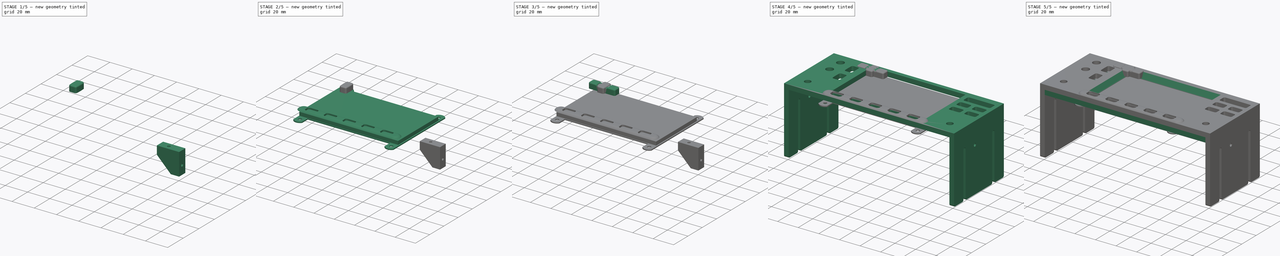
[diagram: build sequence overview — one tinted view per stage of 5, left to right]
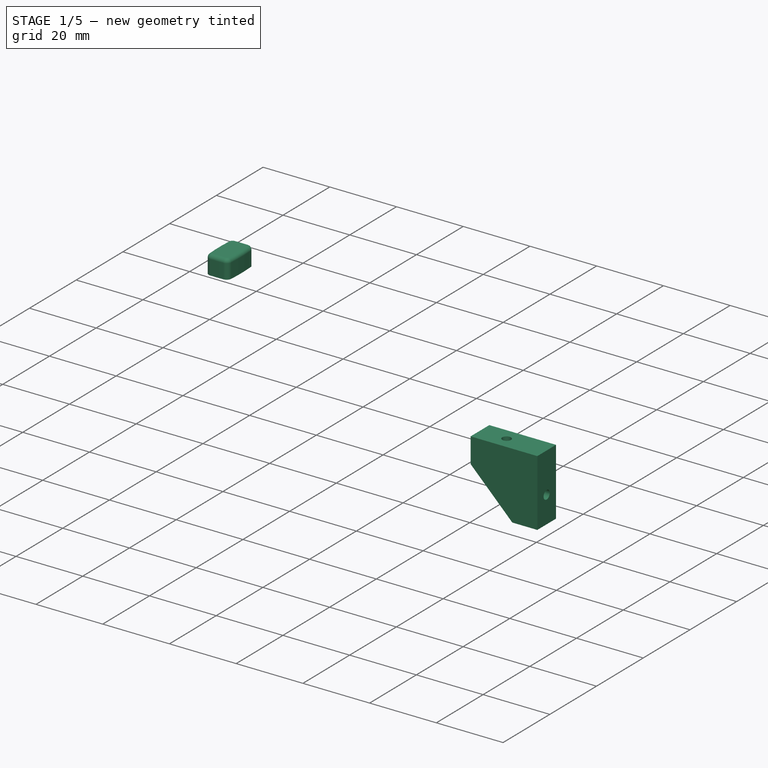
[diagram: stage 1 of 5 — iso view after this stage's code; geometry added in this stage tinted green]
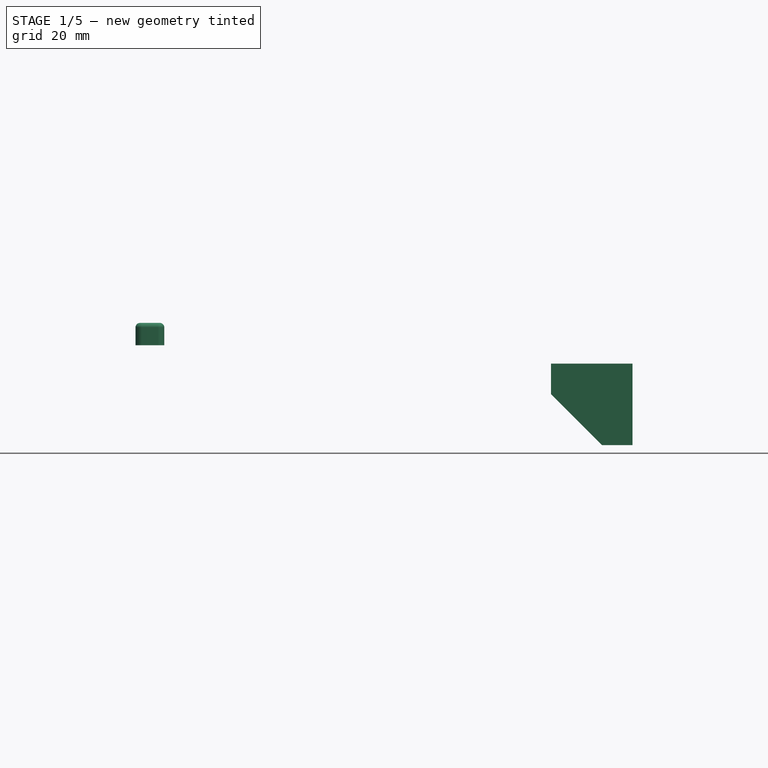
[diagram: stage 1 of 5 — front view after this stage's code; geometry added in this stage tinted green]
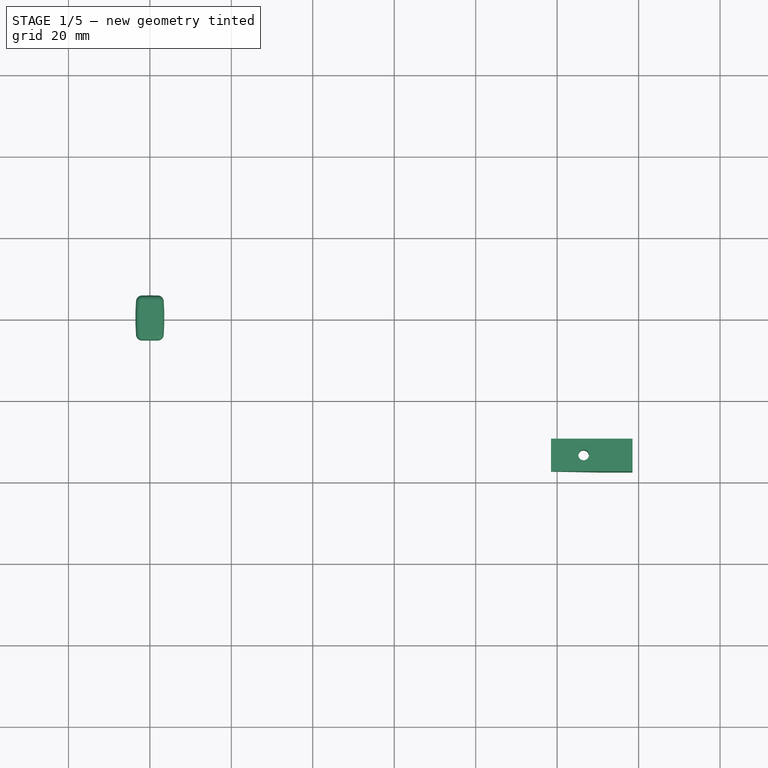
[diagram: stage 1 of 5 — top view after this stage's code; geometry added in this stage tinted green]
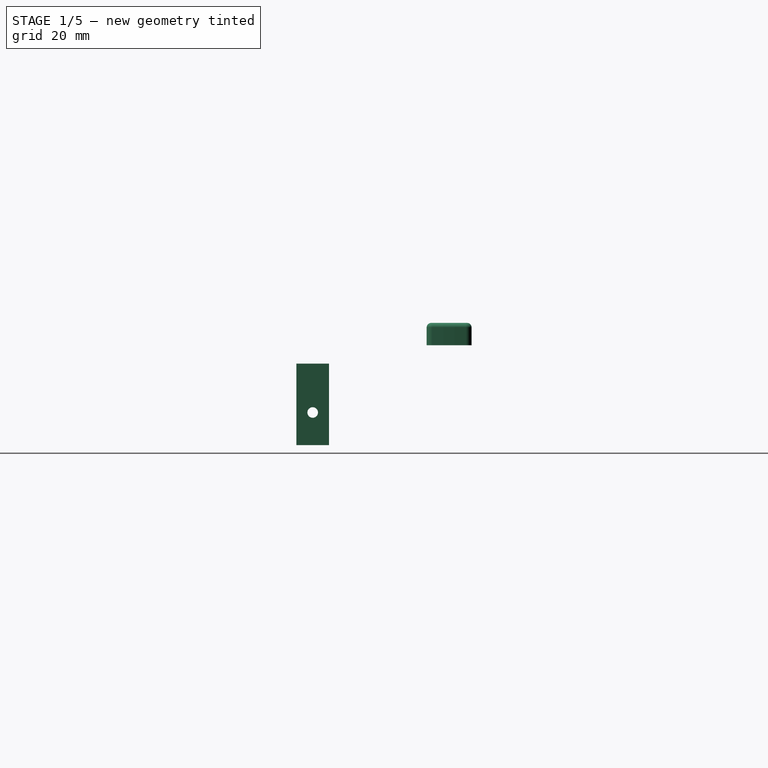
[diagram: stage 1 of 5 — right view after this stage's code; geometry added in this stage tinted green]
FCSTD DOCUMENT  (FreeCAD 0.16R6706 (Git))
Label: garmin_gns_430
License: All rights reserved
LicenseURL: http://en.wikipedia.org/wiki/All_rights_reserved
objects: Sketcher::SketchObject×21, PartDesign::Pad×18, App::DocumentObjectGroup×8, Part::Cut×6, Part::Fillet×5, Part::MultiFuse×3, Part::Part2DObjectPython×3, Image::ImagePlane×2, Part::Box×2, PartDesign::Revolution×2, Part::FeaturePython×2, PartDesign::Pocket×2, Part::Compound×1, Part::MultiCommon×1, Spreadsheet::Sheet×1
note: 88 computed .brp shape members not serialized (recipe doc carries the construction recipe); baked Part::Feature solids carry a one-line shape summary decoded from their .brp

FEATURE [Sketcher::SketchObject] Sketch023  label="Sketch (button hole)"
  sketch-geometry (6):
    g0: LineSegment StartX=-1.65 StartY=1.1 StartZ=0 EndX=1.65 EndY=1.1 EndZ=0
    g1: LineSegment StartX=1.65 StartY=1.1 StartZ=0 EndX=1.65 EndY=-1.1 EndZ=0
    g2: LineSegment StartX=1.65 StartY=-1.1 StartZ=0 EndX=-1.65 EndY=-1.1 EndZ=0
    g3: LineSegment StartX=-1.65 StartY=-1.1 StartZ=0 EndX=-1.65 EndY=1.1 EndZ=0
    g4: LineSegment [constr] StartX=-1.65 StartY=1.1 StartZ=0 EndX=0 EndY=0 EndZ=0
    g5: LineSegment [constr] StartX=0 StartY=0 StartZ=0 EndX=1.65 EndY=-1.1 EndZ=0
  constraints (16):
    c: Coincident(g0,g1)
    c: Coincident(g1,g2)
    c: Coincident(g2,g3)
    c: Coincident(g3,g0)
    c: Horizontal(g0)
    c: Horizontal(g2)
    c: Vertical(g1)
    c: Vertical(g3)
    c: DistanceX(g0,g0) = 3.3
    c: DistanceY(g1,g1) = 2.2
    c: Coincident(g4,g0)
    c: Coincident(g4,g-1)
    c: Coincident(g5,g-1)
    c: Coincident(g5,g1)
    c: Equal(g5,g4)
    c: Parallel(g5,g4)
FEATURE [PartDesign::Pad] Pad017  label="Pad (button hole)"
  Length = 2.5
  Length2 = 100
  Sketch = -> Sketch023
  Type = 0
FEATURE [Part::FeaturePython] Clone003  label="Clone (button hole v)"  # Draft clone (typed FeaturePython)
  Objects = -> [Pad017]
  Scale = (1,1,1)
FEATURE [App::DocumentObjectGroup] Group004  label="Experimental"
  Group = -> [Cut002]
FEATURE [App::DocumentObjectGroup] Group005  label="Display"
  Group = -> [Compound]
FEATURE [Sketcher::SketchObject] Sketch044  label="Sketch (button med v)"
  Placement = pos=(0,0,0) rot=(0,0,1;1.5708rad)
  sketch-geometry (21):
    g0: ArcOfCircle CenterX=0 CenterY=-54.6083 CenterZ=0 NormalX=0 NormalY=0 NormalZ=1 Radius=58.1548 StartAngle=1.49981 EndAngle=1.64178
    g1: ArcOfCircle CenterX=0 CenterY=54.6083 CenterZ=0 NormalX=0 NormalY=0 NormalZ=1 Radius=58.1548 StartAngle=4.6414 EndAngle=4.78338
    g2: ArcOfCircle CenterX=4.01981 CenterY=1.92335 CenterZ=0 NormalX=0 NormalY=0 NormalZ=1 Radius=1.48038 StartAngle=0.0162777 EndAngle=1.49981
    g3: ArcOfCircle CenterX=4.01981 CenterY=-1.92335 CenterZ=0 NormalX=0 NormalY=0 NormalZ=1 Radius=1.48038 StartAngle=4.78338 EndAngle=6.26691
    g4: ArcOfCircle CenterX=-114.132 CenterY=4.61937e-05 CenterZ=0 NormalX=0 NormalY=0 NormalZ=1 Radius=119.648 StartAngle=6.26691 EndAngle=6.29946
    g5: ArcOfCircle CenterX=-4.01981 CenterY=1.92335 CenterZ=0 NormalX=0 NormalY=0 NormalZ=1 Radius=1.48038 StartAngle=1.64179 EndAngle=3.12531
    g6: ArcOfCircle CenterX=-4.01981 CenterY=-1.92335 CenterZ=0 NormalX=0 NormalY=0 NormalZ=1 Radius=1.48038 StartAngle=3.15787 EndAngle=4.6414
    g7: ArcOfCircle CenterX=114.132 CenterY=4.61937e-05 CenterZ=0 NormalX=0 NormalY=0 NormalZ=1 Radius=119.648 StartAngle=3.12532 EndAngle=3.15787
    g8: LineSegment [constr] StartX=-4.12482 StartY=3.4 StartZ=0 EndX=-4.12482 EndY=-3.4 EndZ=0
    g9: LineSegment [constr] StartX=4.12482 StartY=3.4 StartZ=0 EndX=4.12482 EndY=-3.4 EndZ=0
    g10: LineSegment [constr] StartX=5.5 StartY=-1.94744 StartZ=0 EndX=-5.5 EndY=-1.94744 EndZ=0
    g11: LineSegment [constr] StartX=5.5 StartY=1.94744 StartZ=0 EndX=-5.5 EndY=1.94744 EndZ=0
    g12: LineSegment [constr] StartX=-5.5 StartY=1.94744 StartZ=0 EndX=5.5 EndY=-1.94744 EndZ=0
    g13: LineSegment [constr] StartX=-5.5 StartY=-1.94744 StartZ=0 EndX=5.5 EndY=1.94744 EndZ=0
    g14: LineSegment [constr] StartX=-4.12482 StartY=3.4 StartZ=0 EndX=4.12482 EndY=-3.4 EndZ=0
    g15: LineSegment [constr] StartX=4.12482 StartY=3.4 StartZ=0 EndX=-4.12482 EndY=-3.4 EndZ=0
    g16: GeomPoint [constr] X=0 Y=0 Z=0
    g17: LineSegment [constr] StartX=114.132 StartY=4.61937e-05 StartZ=0 EndX=0 EndY=54.6083 EndZ=0
    g18: LineSegment [constr] StartX=0 StartY=0 StartZ=0 EndX=-4.01981 EndY=1.92335 EndZ=0
    g19: LineSegment [constr] StartX=-4.01981 StartY=1.92335 StartZ=0 EndX=-4.12482 EndY=3.4 EndZ=0
    g20: LineSegment [constr] StartX=-4.01981 StartY=1.92335 StartZ=0 EndX=-5.5 EndY=1.94744 EndZ=0
  constraints (57):
    c: Coincident(g2,g0)
    c: Coincident(g3,g1)
    c: Coincident(g4,g2)
    c: Coincident(g4,g3)
    c: Coincident(g5,g0)
    c: Coincident(g6,g1)
    c: Coincident(g7,g5)
    c: Coincident(g7,g6)
    c: Coincident(g8,g0)
    c: Coincident(g8,g1)
    c: Coincident(g9,g0)
    c: Coincident(g9,g1)
    c: Vertical(g9)
    c: Coincident(g10,g3)
    c: Coincident(g10,g6)
    c: Horizontal(g10)
    c: Coincident(g11,g2)
    c: Coincident(g11,g5)
    c: Horizontal(g11)
    c: Vertical(g8)
    c: Equal(g5,g2)
    c: Equal(g2,g3)
    c: Equal(g3,g6)
    c: Tangent(g5,g7)
    c: Tangent(g3,g4)
    c: Tangent(g2,g0)
    c: Equal(g8,g9)
    c: Coincident(g12,g5)
    c: Coincident(g12,g3)
    c: Coincident(g13,g6)
    c: Coincident(g13,g2)
    c: Coincident(g14,g0)
    c: Coincident(g14,g1)
    c: Coincident(g15,g0)
    c: PointOnObject(g16,g12)
    c: PointOnObject(g16,g14)
    c: PointOnObject(g16,g13)
    c: PointOnObject(g16,g15)
    c: Coincident(g15,g1)
    c: Equal(g14,g15)
    c: Equal(g13,g12)
    c: Equal(g4,g7)
    c: Equal(g0,g1)
    c: DistanceX(g6,g3) = 11
    c: DistanceY(g1,g0) = 6.8
    c: Angle(g14,g12) = 0.349066
    c: Coincident(g17,g7)
    c: Coincident(g17,g1)
    c: Coincident(g18,g16)
    c: Coincident(g18,g5)
    c: Parallel(g18,g17)
    c: Coincident(g19,g5)
    c: Coincident(g19,g0)
    c: Coincident(g20,g5)
    c: Coincident(g5,g20)
    c: Angle(g19,g20) = 1.48353
    c: Coincident(g16,g-1)
FEATURE [PartDesign::Pad] Pad023  label="Pad (button med v)"
  Length = 5.5
  Length2 = 100
  Placement = pos=(0,0,0) rot=(0,0,1;1.5708rad)
  Sketch = -> Sketch044
  Type = 0
FEATURE [Part::Fillet] Fillet  label="Fillet (button med v)"
  Base = -> Pad023
  Edges = 8 edges r=1.1: [Edge4,Edge7,Edge10,Edge13,Edge16,Edge19,Edge22,Edge24]
FEATURE [Part::Cut] Cut008  label="Cut (button med v final)"
  Base = -> Fillet
  Tool = -> Clone003
FEATURE [Spreadsheet::Sheet] Spreadsheet
  cells = A1=panel_width; B1(panel_width)=165; A2=panel_height; B2(panel_height)=69; A3=panel_thickness; B3(panel_thickness)=4.5
FEATURE [Sketcher::SketchObject] Sketch046  label="Sketch (bracket mount)"
  Placement = pos=(118.5,-33.5,-4.5) rot=(0,0.707107,0.707107;3.14159rad)
  expr: Constraints[12] = 12 - 4.5
  sketch-geometry (5):
    g0: LineSegment StartX=0 StartY=0 StartZ=0 EndX=20 EndY=0 EndZ=0
    g1: LineSegment StartX=20 StartY=0 StartZ=0 EndX=20 EndY=-7.5 EndZ=0
    g2: LineSegment StartX=20 StartY=-7.5 StartZ=0 EndX=7.5 EndY=-20 EndZ=0
    g3: LineSegment StartX=7.5 StartY=-20 StartZ=0 EndX=0 EndY=-20 EndZ=0
    g4: LineSegment StartX=0 StartY=0 StartZ=0 EndX=0 EndY=-20 EndZ=0
  constraints (14):
    c: Horizontal(g0)
    c: Coincident(g1,g0)
    c: Vertical(g1)
    c: Coincident(g2,g1)
    c: Coincident(g3,g2)
    c: Horizontal(g3)
    c: Coincident(g4,g0)
    c: Coincident(g4,g3)
    c: Vertical(g4)
    c: DistanceX(g0,g0) = 20
    c: Equal(g0,g4)
    c: Equal(g1,g3)
    c: DistanceX(g3,g3) = 7.5
    c: Coincident(g0,g-1)
FEATURE [PartDesign::Pad] Pad024  label="Pad (bracket mount)"
  Length = 4
  Length2 = 4
  Placement = pos=(118.5,-33.5,-4.5) rot=(0,0.707107,0.707107;3.14159rad)
  Sketch = -> Sketch046
  Type = 4
FEATURE [Sketcher::SketchObject] Sketch047  label="Sketch (bracket mount hole #1)"
  Placement = pos=(118.5,-33.5,-4.5) rot=(0,1,0;1.5708rad)
  Support = -> Pad024 [Face5]
  sketch-geometry (1):
    g0: Circle CenterX=12 CenterY=0 CenterZ=0 NormalX=0 NormalY=0 NormalZ=1 Radius=1.3
  constraints (3):
    c: PointOnObject(g0,g-1)
    c: Radius(g0) = 1.3
    c: DistanceX(g-1,g0) = 12
FEATURE [PartDesign::Pocket] Pocket  label="Pocket (bracket mount hole #1)"
  Length = 9
  Placement = pos=(118.5,-33.5,-4.5) rot=(0,0.707107,0.707107;3.14159rad)
  Sketch = -> Sketch047
  Type = 1
FEATURE [Sketcher::SketchObject] Sketch048  label="Sketch (bracket mount hole #2)"
  Placement = pos=(118.5,-33.5,-4.5) rot=(0,0,1;0rad)
  Support = -> Pocket [Face1]
  sketch-geometry (1):
    g0: Circle CenterX=-12 CenterY=0 CenterZ=0 NormalX=0 NormalY=0 NormalZ=1 Radius=1.3
  constraints (3):
    c: PointOnObject(g0,g-1)
    c: Radius(g0) = 1.3
    c: DistanceX(g0,g-1) = 12
FEATURE [Part::Part2DObjectPython] Clone2D  label="Clone of Sketch (right bracket) (2D)"  # Draft 2D object (typed FeaturePython)
  Objects = -> [Sketch013]
  Placement = pos=(123,0,0) rot=(0,0,1;1.5708rad)
  Scale = (1,1,1)
FEATURE [Part::Part2DObjectPython] Clone2D002  label="Clone of Sketch (left bracket) (2D)"  # Draft 2D object (typed FeaturePython)
  Objects = -> [Sketch045]
  Placement = pos=(0,0,0) rot=(0,0,1;1.5708rad)
  Scale = (1,1,1)
FEATURE [App::DocumentObjectGroup] Group007  label="Export"
  Group = -> [Clone2D,Clone2D002]
FEATURE [App::DocumentObjectGroup] Group002  label="Panels"
  Group = -> [Pad021,Pad011,Pad012,Pad010,Sketch045,Group007]
FEATURE [PartDesign::Pocket] Pocket001
  Length = 5
  Placement = pos=(118.5,-33.5,-4.5) rot=(0,0.707107,0.707107;3.14159rad)
  Sketch = -> Sketch048
  Type = 1
FEATURE [App::DocumentObjectGroup] Group008  label="Bracket"
  Group = -> [Pad024,Pocket,Pocket001]
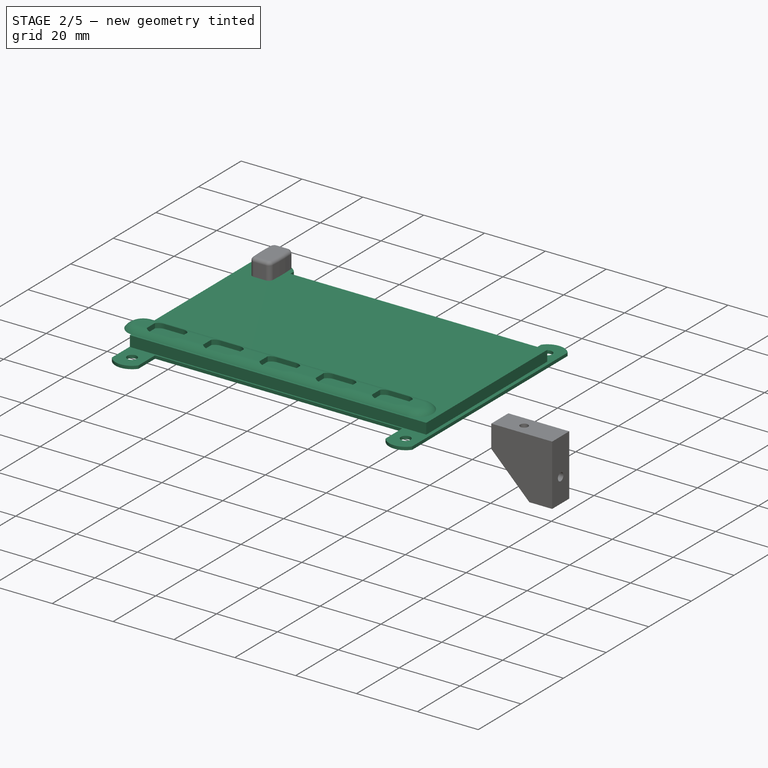
[diagram: stage 2 of 5 — iso view after this stage's code; geometry added in this stage tinted green]
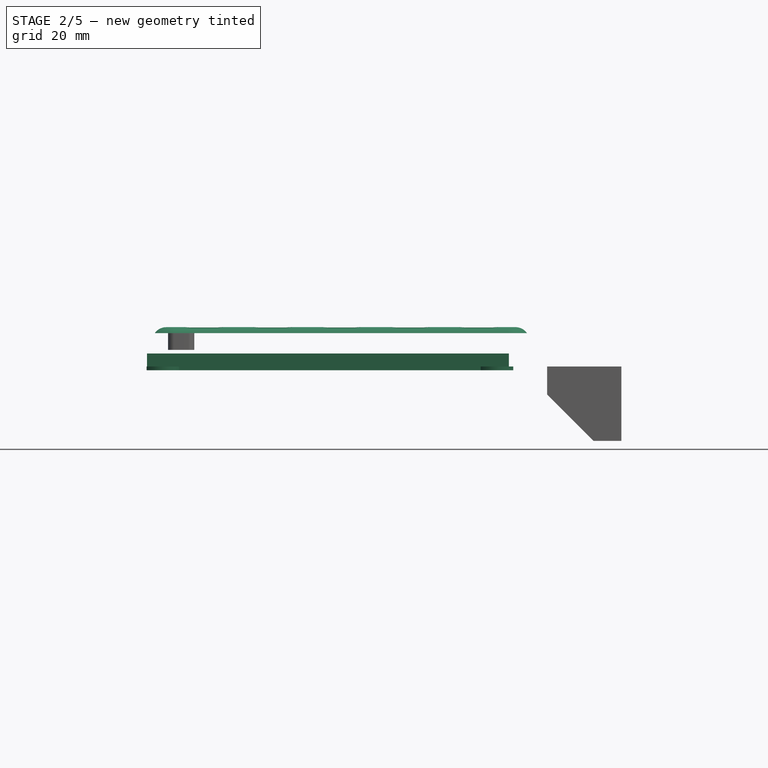
[diagram: stage 2 of 5 — front view after this stage's code; geometry added in this stage tinted green]
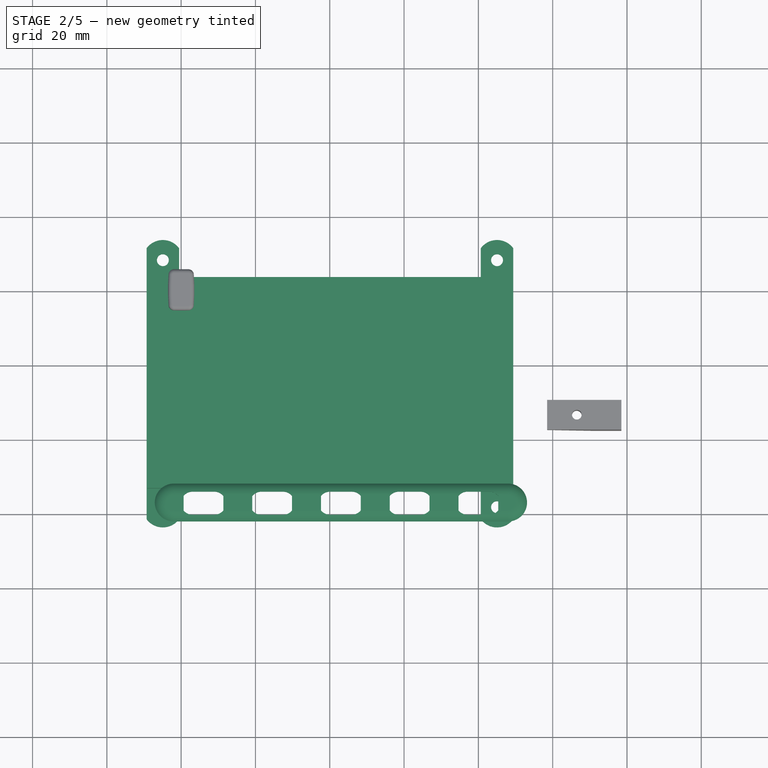
[diagram: stage 2 of 5 — top view after this stage's code; geometry added in this stage tinted green]
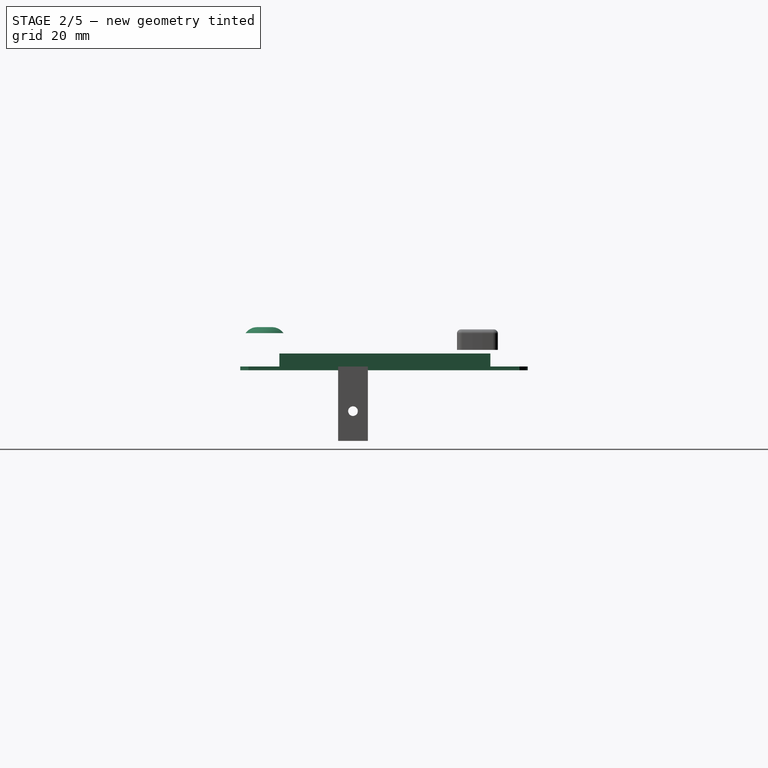
[diagram: stage 2 of 5 — right view after this stage's code; geometry added in this stage tinted green]
FEATURE [Sketcher::SketchObject] Sketch  label="Sketch (display mount)"
  Placement = pos=(0,0,-3.5) rot=(0,0,1;0rad)
  sketch-geometry (24):
    g0: LineSegment StartX=89.4 StartY=3.5 StartZ=0 EndX=89.4 EndY=-53.8 EndZ=0
    g1: LineSegment StartX=-9.3 StartY=-53.8 StartZ=0 EndX=-9.3 EndY=3.5 EndZ=0
    g2: LineSegment StartX=89.4 StartY=3.5 StartZ=0 EndX=89.4 EndY=11.32 EndZ=0
    g3: LineSegment StartX=80.65 StartY=3.5 StartZ=0 EndX=80.65 EndY=11.32 EndZ=0
    g4: LineSegment StartX=89.4 StartY=-53.8 StartZ=0 EndX=89.4 EndY=-61.62 EndZ=0
    g5: LineSegment StartX=80.65 StartY=-53.8 StartZ=0 EndX=80.65 EndY=-61.62 EndZ=0
    g6: LineSegment StartX=-9.3 StartY=-53.8 StartZ=0 EndX=-9.3 EndY=-61.62 EndZ=0
    g7: LineSegment StartX=-0.55 StartY=-53.8 StartZ=0 EndX=-0.55 EndY=-61.62 EndZ=0
    g8: LineSegment StartX=-9.3 StartY=3.5 StartZ=0 EndX=-9.3 EndY=11.32 EndZ=0
    g9: LineSegment StartX=-0.55 StartY=3.5 StartZ=0 EndX=-0.55 EndY=11.32 EndZ=0
    g10: LineSegment [constr] StartX=80.65 StartY=11.32 StartZ=0 EndX=89.4 EndY=11.32 EndZ=0
    g11: LineSegment [constr] StartX=89.4 StartY=-61.62 StartZ=0 EndX=80.65 EndY=-61.62 EndZ=0
    g12: LineSegment [constr] StartX=-0.55 StartY=-61.62 StartZ=0 EndX=-9.3 EndY=-61.62 EndZ=0
    g13: LineSegment [constr] StartX=-0.55 StartY=11.32 StartZ=0 EndX=-9.3 EndY=11.32 EndZ=0
    g14: ArcOfCircle CenterX=-4.925 CenterY=8.1 CenterZ=0 NormalX=0 NormalY=0 NormalZ=1 Radius=5.43222 StartAngle=0.634481 EndAngle=2.50711
    g15: ArcOfCircle CenterX=-4.925 CenterY=-58.4 CenterZ=0 NormalX=0 NormalY=0 NormalZ=1 Radius=5.43222 StartAngle=3.77607 EndAngle=5.6487
    g16: ArcOfCircle CenterX=85.025 CenterY=-58.4 CenterZ=0 NormalX=0 NormalY=0 NormalZ=1 Radius=5.43222 StartAngle=3.77607 EndAngle=5.6487
    g17: ArcOfCircle CenterX=85.025 CenterY=8.1 CenterZ=0 NormalX=0 NormalY=0 NormalZ=1 Radius=5.43222 StartAngle=0.634481 EndAngle=2.50711
    g18: Circle CenterX=-4.925 CenterY=-58.4 CenterZ=0 NormalX=0 NormalY=0 NormalZ=1 Radius=1.6
    g19: Circle CenterX=-4.925 CenterY=8.1 CenterZ=0 NormalX=0 NormalY=0 NormalZ=1 Radius=1.6
    g20: Circle CenterX=85.025 CenterY=8.1 CenterZ=0 NormalX=0 NormalY=0 NormalZ=1 Radius=1.6
    g21: Circle CenterX=85.025 CenterY=-58.4 CenterZ=0 NormalX=0 NormalY=0 NormalZ=1 Radius=1.6
    g22: LineSegment StartX=-0.55 StartY=-53.8 StartZ=0 EndX=80.65 EndY=-53.8 EndZ=0
    g23: LineSegment StartX=-0.55 StartY=3.5 StartZ=0 EndX=80.65 EndY=3.5 EndZ=0
  constraints (69):
    c: Vertical(g0)
    c: Vertical(g1)
    c: DistanceX(g1,g0) = 98.7
    c: DistanceY(g0,g0) = 57.3
    c: Vertical(g2)
    c: Vertical(g3)
    c: Coincident(g4,g0)
    c: Vertical(g4)
    c: Vertical(g5)
    c: Vertical(g6)
    c: Vertical(g7)
    c: Vertical(g9)
    c: Coincident(g10,g3)
    c: Coincident(g10,g2)
    c: Horizontal(g10)
    c: Coincident(g11,g4)
    c: Coincident(g11,g5)
    c: Horizontal(g11)
    c: Coincident(g12,g7)
    c: Coincident(g12,g6)
    c: Horizontal(g12)
    c: Coincident(g13,g9)
    c: Coincident(g13,g8)
    c: Vertical(g8)
    c: Horizontal(g13)
    c: Equal(g13,g10)
    c: Equal(g10,g11)
    c: Equal(g11,g12)
    c: Equal(g8,g6)
    c: Equal(g6,g2)
    c: Equal(g2,g4)
    c: DistanceX(g10,g10) = 8.75
    c: DistanceY(g2,g2) = 7.82
    c: Coincident(g14,g8)
    c: Coincident(g14,g9)
    c: Coincident(g15,g7)
    c: Coincident(g15,g6)
    c: Coincident(g16,g4)
    c: Coincident(g16,g5)
    c: Coincident(g17,g3)
    c: Coincident(g17,g2)
    c: Equal(g14,g15)
    c: Equal(g15,g16)
    c: Equal(g16,g17)
    c: Coincident(g18,g15)
    c: Coincident(g19,g14)
    c: Coincident(g20,g17)
    c: Coincident(g21,g16)
    c: Equal(g21,g19)
    c: Equal(g19,g18)
    c: Equal(g18,g20)
    c: Radius(g19) = 1.6
    c: DistanceY(g1,g14) = 4.6
    c: Coincident(g22,g7)
    c: Coincident(g22,g5)
    c: Horizontal(g22)
    c: Coincident(g23,g9)
    c: Coincident(g23,g3)
    c: Horizontal(g23)
    c: Coincident(g0,g2)
    c: Coincident(g1,g6)
    c: Equal(g2,g9)
    c: Equal(g2,g3)
    c: Equal(g5,g7)
    c: Equal(g7,g6)
    c: Equal(g6,g4)
    c: Coincident(g1,g8)
    c: DistanceX(g1,g-1) = 9.3
    c: DistanceY(g-1,g1) = 3.5
FEATURE [Image::ImagePlane] ImagePlane  label="Image (xplane)"
  Placement = pos=(40.5,-28,0) rot=(0,0,1;0rad)
  XSize = 165
  YSize = 69
FEATURE [PartDesign::Pad] Pad  label="Pad (display mount)"
  Length = 1
  Length2 = 100
  Placement = pos=(0,0,-3.5) rot=(0,0,1;0rad)
  Reversed = true
  Sketch = -> Sketch
  Type = 0
FEATURE [Sketcher::SketchObject] Sketch004  label="Sketch (display)"
  Placement = pos=(0,0,-3.5) rot=(0,0,1;0rad)
  Support = -> Pad [Face21]
  sketch-geometry (4):
    g0: LineSegment StartX=-9.2 StartY=3.5 StartZ=0 EndX=88.2 EndY=3.5 EndZ=0
    g1: LineSegment StartX=88.2 StartY=3.5 StartZ=0 EndX=88.2 EndY=-53.3 EndZ=0
    g2: LineSegment StartX=88.2 StartY=-53.3 StartZ=0 EndX=-9.2 EndY=-53.3 EndZ=0
    g3: LineSegment StartX=-9.2 StartY=-53.3 StartZ=0 EndX=-9.2 EndY=3.5 EndZ=0
  constraints (12):
    c: Coincident(g0,g1)
    c: Coincident(g1,g2)
    c: Coincident(g2,g3)
    c: Horizontal(g0)
    c: Horizontal(g2)
    c: Vertical(g1)
    c: Vertical(g3)
    c: DistanceX(g0,g0) = 97.4
    c: DistanceY(g1,g1) = 56.8
    c: Coincident(g3,g0)
    c: DistanceY(g-1,g0) = 3.5
    c: DistanceX(g0,g-1) = 9.2
FEATURE [PartDesign::Pad] Pad003  label="Pad (display)"
  Length = 3.5
  Length2 = 100
  Placement = pos=(0,0,-3.5) rot=(0,0,1;0rad)
  Sketch = -> Sketch004
  Type = 0
FEATURE [Part::Compound] Compound  label="Compound (display)"
  Links = -> [Pad003,Pad]
  Placement = pos=(0,0,-1) rot=(0,0,1;0rad)
FEATURE [Sketcher::SketchObject] Sketch015
  Placement = pos=(0,0,0) rot=(0.57735,0.57735,0.57735;2.0944rad)
  sketch-geometry (8):
    g0: LineSegment StartX=-5.1 StartY=4.5 StartZ=0 EndX=5.1 EndY=4.5 EndZ=0
    g1: LineSegment StartX=-2 StartY=6.1 StartZ=0 EndX=2 EndY=6.1 EndZ=0
    g2: ArcOfCircle CenterX=-2 CenterY=2.29688 CenterZ=0 NormalX=0 NormalY=0 NormalZ=1 Radius=3.80313 StartAngle=1.5708 EndAngle=2.52373
    g3: ArcOfCircle CenterX=2 CenterY=2.29688 CenterZ=0 NormalX=0 NormalY=0 NormalZ=1 Radius=3.80313 StartAngle=0.617861 EndAngle=1.5708
    g4: LineSegment [constr] StartX=-5.1 StartY=4.5 StartZ=0 EndX=-2 EndY=2.29688 EndZ=0
    g5: LineSegment [constr] StartX=-2 StartY=6.1 StartZ=0 EndX=-2 EndY=2.29688 EndZ=0
    g6: LineSegment [constr] StartX=2 StartY=6.1 StartZ=0 EndX=2 EndY=2.29688 EndZ=0
    g7: LineSegment [constr] StartX=2 StartY=2.29688 StartZ=0 EndX=5.1 EndY=4.5 EndZ=0
  constraints (22):
    c: Horizontal(g0)
    c: Horizontal(g1)
    c: Coincident(g2,g0)
    c: Coincident(g2,g1)
    c: Coincident(g3,g1)
    c: Coincident(g3,g0)
    c: Equal(g3,g2)
    c: DistanceY(g-1,g0) = 4.5
    c: DistanceX(g0,g0) = 10.2
    c: DistanceY(g0,g1) = 1.6
    c: Symmetric(g0,g0,g-2)
    c: DistanceX(g1,g1) = 4
    c: Coincident(g4,g0)
    c: Coincident(g4,g2)
    c: Coincident(g5,g1)
    c: Coincident(g5,g2)
    c: Vertical(g5)
    c: Coincident(g6,g1)
    c: Coincident(g6,g3)
    c: Vertical(g6)
    c: Coincident(g7,g3)
    c: Coincident(g7,g0)
FEATURE [PartDesign::Pad] Pad014
  Length = 90
  Length2 = 0
  Placement = pos=(0,0,0) rot=(0.57735,0.57735,0.57735;2.0944rad)
  Sketch = -> Sketch015
  Type = 4
FEATURE [Sketcher::SketchObject] Sketch016
  Placement = pos=(90,0,0) rot=(0.57735,0.57735,0.57735;2.0944rad)
  sketch-geometry (6):
    g0: ArcOfCircle CenterX=2 CenterY=2.29688 CenterZ=0 NormalX=0 NormalY=0 NormalZ=1 Radius=3.80313 StartAngle=0.617861 EndAngle=1.5708
    g1: LineSegment [constr] StartX=2 StartY=6.1 StartZ=0 EndX=2 EndY=2.29688 EndZ=0
    g2: LineSegment [constr] StartX=2 StartY=2.29688 StartZ=0 EndX=4.5 EndY=4.5 EndZ=0
    g3: LineSegment StartX=5.1 StartY=4.5 StartZ=0 EndX=0 EndY=4.5 EndZ=0
    g4: LineSegment StartX=2 StartY=6.1 StartZ=0 EndX=0 EndY=6.1 EndZ=0
    g5: LineSegment StartX=0 StartY=6.1 StartZ=0 EndX=0 EndY=4.5 EndZ=0
  constraints (16):
    c: DistanceY(g-1,g0) = 4.5
    c: DistanceY(g0,g0) = 1.6
    c: Coincident(g1,g0)
    c: Vertical(g1)
    c: Coincident(g2,g0)
    c: Coincident(g3,g0)
    c: PointOnObject(g3,g-2)
    c: Horizontal(g3)
    c: Horizontal(g4)
    c: Coincident(g5,g4)
    c: Coincident(g5,g3)
    c: Vertical(g5)
    c: Coincident(g0,g1)
    c: Coincident(g0,g4)
    c: DistanceX(g4,g4) = 2
    c: DistanceX(g3,g3) = 5.1
FEATURE [PartDesign::Revolution] Revolution
  Angle = 180
  Axis = (0,0,1)
  Base = (90,0,0)
  Placement = pos=(90,0,0) rot=(0.57735,0.57735,0.57735;2.0944rad)
  ReferenceAxis = -> Sketch016 [V_Axis]
  Reversed = true
  Sketch = -> Sketch016
FEATURE [Part::Part2DObjectPython] Clone2D001  label="Clone of Sketch016 (2D)"  # Draft 2D object (typed FeaturePython)
  Objects = -> [Sketch016]
  Placement = pos=(0,0,0) rot=(0.57735,0.57735,0.57735;2.0944rad)
  Scale = (1,1,1)
FEATURE [PartDesign::Revolution] Revolution001
  Angle = 180
  Axis = (0,0,1)
  Base = (0,0,0)
  Placement = pos=(0,0,0) rot=(0.57735,0.57735,0.57735;2.0944rad)
  ReferenceAxis = -> Clone2D001 [V_Axis]
  Sketch = -> Clone2D001
FEATURE [Part::MultiFuse] Fusion002  label="Fusion (button strip)"
  Placement = pos=(-2,-57.3,0) rot=(0,0,1;0rad)
  Shapes = -> [Pad014,Revolution,Revolution001]
FEATURE [Sketcher::SketchObject] Sketch017  label="Sketch (panel)001"
  sketch-geometry (79):
    g0: LineSegment [constr] StartX=0.65 StartY=-55.5528 StartZ=0 EndX=11.35 EndY=-55.5528 EndZ=0
    g1: LineSegment StartX=11.35 StartY=-55.5528 StartZ=0 EndX=11.35 EndY=-59.4472 EndZ=0
    g2: LineSegment [constr] StartX=11.35 StartY=-59.4472 StartZ=0 EndX=0.65 EndY=-59.4472 EndZ=0
    g3: LineSegment StartX=0.65 StartY=-59.4472 StartZ=0 EndX=0.65 EndY=-55.5528 EndZ=0
    g4: LineSegment StartX=3.06211 StartY=-54.4 StartZ=0 EndX=8.93789 EndY=-54.4 EndZ=0
    g5: LineSegment [constr] StartX=8.93789 StartY=-54.4 StartZ=0 EndX=8.93789 EndY=-60.6 EndZ=0
    g6: LineSegment StartX=8.93789 StartY=-60.6 StartZ=0 EndX=3.06211 EndY=-60.6 EndZ=0
    g7: LineSegment [constr] StartX=3.06211 StartY=-60.6 StartZ=0 EndX=3.06211 EndY=-54.4 EndZ=0
    g8: LineSegment [constr] StartX=3.06211 StartY=-57.5 StartZ=0 EndX=6 EndY=-57.5 EndZ=0
    g9: LineSegment [constr] StartX=6 StartY=-57.5 StartZ=0 EndX=8.93789 EndY=-57.5 EndZ=0
    g10: ArcOfCircle CenterX=3.06211 CenterY=-57.5 CenterZ=0 NormalX=0 NormalY=0 NormalZ=1 Radius=3.1 StartAngle=1.5708 EndAngle=2.46243
    g11: ArcOfCircle CenterX=8.93789 CenterY=-57.5 CenterZ=0 NormalX=0 NormalY=0 NormalZ=1 Radius=3.1 StartAngle=0.679163 EndAngle=1.5708
    g12: ArcOfCircle CenterX=8.93789 CenterY=-57.5 CenterZ=0 NormalX=0 NormalY=0 NormalZ=1 Radius=3.1 StartAngle=4.71239 EndAngle=5.60402
    g13: ArcOfCircle CenterX=3.06211 CenterY=-57.5 CenterZ=0 NormalX=0 NormalY=0 NormalZ=1 Radius=3.1 StartAngle=3.82076 EndAngle=4.71239
    g14: LineSegment [constr] StartX=0.65 StartY=-55.5528 StartZ=0 EndX=6 EndY=-57.5 EndZ=0
    g15: LineSegment [constr] StartX=19.15 StartY=-55.5528 StartZ=0 EndX=29.85 EndY=-55.5528 EndZ=0
    g16: LineSegment StartX=29.85 StartY=-55.5528 StartZ=0 EndX=29.85 EndY=-59.4472 EndZ=0
    g17: LineSegment [constr] StartX=29.85 StartY=-59.4472 StartZ=0 EndX=19.15 EndY=-59.4472 EndZ=0
    g18: LineSegment StartX=19.15 StartY=-59.4472 StartZ=0 EndX=19.15 EndY=-55.5528 EndZ=0
    g19: LineSegment StartX=21.5621 StartY=-54.4 StartZ=0 EndX=27.4379 EndY=-54.4 EndZ=0
    g20: LineSegment [constr] StartX=27.4379 StartY=-54.4 StartZ=0 EndX=27.4379 EndY=-60.6 EndZ=0
    g21: LineSegment StartX=27.4379 StartY=-60.6 StartZ=0 EndX=21.5621 EndY=-60.6 EndZ=0
    g22: LineSegment [constr] StartX=21.5621 StartY=-60.6 StartZ=0 EndX=21.5621 EndY=-54.4 EndZ=0
    g23: LineSegment [constr] StartX=21.5621 StartY=-57.5 StartZ=0 EndX=24.5 EndY=-57.5 EndZ=0
    g24: LineSegment [constr] StartX=24.5 StartY=-57.5 StartZ=0 EndX=27.4379 EndY=-57.5 EndZ=0
    g25: ArcOfCircle CenterX=21.5621 CenterY=-57.5 CenterZ=0 NormalX=0 NormalY=0 NormalZ=1 Radius=3.1 StartAngle=1.5708 EndAngle=2.46243
    g26: ArcOfCircle CenterX=27.4379 CenterY=-57.5 CenterZ=0 NormalX=0 NormalY=0 NormalZ=1 Radius=3.1 StartAngle=0.679163 EndAngle=1.5708
    g27: ArcOfCircle CenterX=27.4379 CenterY=-57.5 CenterZ=0 NormalX=0 NormalY=0 NormalZ=1 Radius=3.1 StartAngle=4.71239 EndAngle=5.60402
    g28: ArcOfCircle CenterX=21.5621 CenterY=-57.5 CenterZ=0 NormalX=0 NormalY=0 NormalZ=1 Radius=3.1 StartAngle=3.82076 EndAngle=4.71239
    g29: LineSegment [constr] StartX=19.15 StartY=-55.5528 StartZ=0 EndX=24.5 EndY=-57.5 EndZ=0
    g30: LineSegment [constr] StartX=0.65 StartY=-55.5528 StartZ=0 EndX=19.15 EndY=-55.5528 EndZ=0
    g31: LineSegment [constr] StartX=37.65 StartY=-55.5528 StartZ=0 EndX=48.35 EndY=-55.5528 EndZ=0
    g32: LineSegment StartX=48.35 StartY=-55.5528 StartZ=0 EndX=48.35 EndY=-59.4472 EndZ=0
    g33: LineSegment [constr] StartX=48.35 StartY=-59.4472 StartZ=0 EndX=37.65 EndY=-59.4472 EndZ=0
    g34: LineSegment StartX=37.65 StartY=-59.4472 StartZ=0 EndX=37.65 EndY=-55.5528 EndZ=0
    g35: LineSegment StartX=40.0621 StartY=-54.4 StartZ=0 EndX=45.9379 EndY=-54.4 EndZ=0
    g36: LineSegment [constr] StartX=45.9379 StartY=-54.4 StartZ=0 EndX=45.9379 EndY=-60.6 EndZ=0
    g37: LineSegment StartX=45.9379 StartY=-60.6 StartZ=0 EndX=40.0621 EndY=-60.6 EndZ=0
    g38: LineSegment [constr] StartX=40.0621 StartY=-60.6 StartZ=0 EndX=40.0621 EndY=-54.4 EndZ=0
    g39: LineSegment [constr] StartX=40.0621 StartY=-57.5 StartZ=0 EndX=43 EndY=-57.5 EndZ=0
    g40: LineSegment [constr] StartX=43 StartY=-57.5 StartZ=0 EndX=45.9379 EndY=-57.5 EndZ=0
    g41: ArcOfCircle CenterX=40.0621 CenterY=-57.5 CenterZ=0 NormalX=0 NormalY=0 NormalZ=1 Radius=3.1 StartAngle=1.5708 EndAngle=2.46243
    g42: ArcOfCircle CenterX=45.9379 CenterY=-57.5 CenterZ=0 NormalX=0 NormalY=0 NormalZ=1 Radius=3.1 StartAngle=0.679163 EndAngle=1.5708
    g43: ArcOfCircle CenterX=45.9379 CenterY=-57.5 CenterZ=0 NormalX=0 NormalY=0 NormalZ=1 Radius=3.1 StartAngle=4.71239 EndAngle=5.60402
    g44: ArcOfCircle CenterX=40.0621 CenterY=-57.5 CenterZ=0 NormalX=0 NormalY=0 NormalZ=1 Radius=3.1 StartAngle=3.82076 EndAngle=4.71239
    g45: LineSegment [constr] StartX=37.65 StartY=-55.5528 StartZ=0 EndX=43 EndY=-57.5 EndZ=0
    g46: LineSegment [constr] StartX=19.15 StartY=-55.5528 StartZ=0 EndX=37.65 EndY=-55.5528 EndZ=0
    g47: LineSegment [constr] StartX=56.15 StartY=-55.5528 StartZ=0 EndX=66.85 EndY=-55.5528 EndZ=0
    g48: LineSegment StartX=66.85 StartY=-55.5528 StartZ=0 EndX=66.85 EndY=-59.4472 EndZ=0
    g49: LineSegment [constr] StartX=66.85 StartY=-59.4472 StartZ=0 EndX=56.15 EndY=-59.4472 EndZ=0
    g50: LineSegment StartX=56.15 StartY=-59.4472 StartZ=0 EndX=56.15 EndY=-55.5528 EndZ=0
    g51: LineSegment StartX=58.5621 StartY=-54.4 StartZ=0 EndX=64.4379 EndY=-54.4 EndZ=0
    g52: LineSegment [constr] StartX=64.4379 StartY=-54.4 StartZ=0 EndX=64.4379 EndY=-60.6 EndZ=0
    g53: LineSegment StartX=64.4379 StartY=-60.6 StartZ=0 EndX=58.5621 EndY=-60.6 EndZ=0
    g54: LineSegment [constr] StartX=58.5621 StartY=-60.6 StartZ=0 EndX=58.5621 EndY=-54.4 EndZ=0
    g55: LineSegment [constr] StartX=58.5621 StartY=-57.5 StartZ=0 EndX=61.5 EndY=-57.5 EndZ=0
    g56: LineSegment [constr] StartX=61.5 StartY=-57.5 StartZ=0 EndX=64.4379 EndY=-57.5 EndZ=0
    g57: ArcOfCircle CenterX=58.5621 CenterY=-57.5 CenterZ=0 NormalX=0 NormalY=0 NormalZ=1 Radius=3.1 StartAngle=1.5708 EndAngle=2.46243
    g58: ArcOfCircle CenterX=64.4379 CenterY=-57.5 CenterZ=0 NormalX=0 NormalY=0 NormalZ=1 Radius=3.1 StartAngle=0.679163 EndAngle=1.5708
    g59: ArcOfCircle CenterX=64.4379 CenterY=-57.5 CenterZ=0 NormalX=0 NormalY=0 NormalZ=1 Radius=3.1 StartAngle=4.71239 EndAngle=5.60402
    g60: ArcOfCircle CenterX=58.5621 CenterY=-57.5 CenterZ=0 NormalX=0 NormalY=0 NormalZ=1 Radius=3.1 StartAngle=3.82076 EndAngle=4.71239
    g61: LineSegment [constr] StartX=56.15 StartY=-55.5528 StartZ=0 EndX=61.5 EndY=-57.5 EndZ=0
    g62: LineSegment [constr] StartX=37.65 StartY=-55.5528 StartZ=0 EndX=56.15 EndY=-55.5528 EndZ=0
    g63: LineSegment [constr] StartX=74.65 StartY=-55.5528 StartZ=0 EndX=85.35 EndY=-55.5528 EndZ=0
    g64: LineSegment StartX=85.35 StartY=-55.5528 StartZ=0 EndX=85.35 EndY=-59.4472 EndZ=0
    g65: LineSegment [constr] StartX=85.35 StartY=-59.4472 StartZ=0 EndX=74.65 EndY=-59.4472 EndZ=0
    g66: LineSegment StartX=74.65 StartY=-59.4472 StartZ=0 EndX=74.65 EndY=-55.5528 EndZ=0
    g67: LineSegment StartX=77.0621 StartY=-54.4 StartZ=0 EndX=82.9379 EndY=-54.4 EndZ=0
    g68: LineSegment [constr] StartX=82.9379 StartY=-54.4 StartZ=0 EndX=82.9379 EndY=-60.6 EndZ=0
    g69: LineSegment StartX=82.9379 StartY=-60.6 StartZ=0 EndX=77.0621 EndY=-60.6 EndZ=0
    g70: LineSegment [constr] StartX=77.0621 StartY=-60.6 StartZ=0 EndX=77.0621 EndY=-54.4 EndZ=0
    g71: LineSegment [constr] StartX=77.0621 StartY=-57.5 StartZ=0 EndX=80 EndY=-57.5 EndZ=0
    g72: LineSegment [constr] StartX=80 StartY=-57.5 StartZ=0 EndX=82.9379 EndY=-57.5 EndZ=0
    g73: ArcOfCircle CenterX=77.0621 CenterY=-57.5 CenterZ=0 NormalX=0 NormalY=0 NormalZ=1 Radius=3.1 StartAngle=1.5708 EndAngle=2.46243
    g74: ArcOfCircle CenterX=82.9379 CenterY=-57.5 CenterZ=0 NormalX=0 NormalY=0 NormalZ=1 Radius=3.1 StartAngle=0.679163 EndAngle=1.5708
    g75: ArcOfCircle CenterX=82.9379 CenterY=-57.5 CenterZ=0 NormalX=0 NormalY=0 NormalZ=1 Radius=3.1 StartAngle=4.71239 EndAngle=5.60402
    g76: ArcOfCircle CenterX=77.0621 CenterY=-57.5 CenterZ=0 NormalX=0 NormalY=0 NormalZ=1 Radius=3.1 StartAngle=3.82076 EndAngle=4.71239
    g77: LineSegment [constr] StartX=74.65 StartY=-55.5528 StartZ=0 EndX=80 EndY=-57.5 EndZ=0
    g78: LineSegment [constr] StartX=56.15 StartY=-55.5528 StartZ=0 EndX=74.65 EndY=-55.5528 EndZ=0
  constraints (218):
    c: Coincident(g0,g1)
    c: Coincident(g1,g2)
    c: Coincident(g2,g3)
    c: Coincident(g3,g0)
    c: Horizontal(g0)
    c: Horizontal(g2)
    c: Vertical(g1)
    c: Vertical(g3)
    c: Coincident(g4,g5)
    c: Coincident(g5,g6)
    c: Coincident(g6,g7)
    c: Coincident(g7,g4)
    c: Horizontal(g4)
    c: Horizontal(g6)
    c: Vertical(g5)
    c: Vertical(g7)
    c: DistanceX(g0,g0) = 10.7
    c: DistanceY(g7,g7) = 6.2
    c: PointOnObject(g8,g7)
    c: Horizontal(g8)
    c: Coincident(g9,g8)
    c: PointOnObject(g9,g5)
    c: Horizontal(g9)
    c: Equal(g8,g9)
    c: Coincident(g10,g8)
    c: Coincident(g10,g0)
    c: Coincident(g10,g4)
    c: Coincident(g11,g9)
    c: Coincident(g11,g4)
    c: Coincident(g11,g0)
    c: Coincident(g12,g9)
    c: Coincident(g12,g1)
    c: Coincident(g12,g5)
    c: Coincident(g13,g8)
    c: Coincident(g13,g6)
    c: Coincident(g13,g2)
    c: Equal(g10,g12)
    c: Coincident(g14,g0)
    c: Coincident(g14,g8)
    c: Angle(g14) = -0.349066
    c: Coincident(g15,g16)
    c: Coincident(g16,g17)
    c: Coincident(g17,g18)
    c: Coincident(g18,g15)
    c: Horizontal(g15)
    c: Horizontal(g17)
    c: Vertical(g16)
    c: Vertical(g18)
    c: Coincident(g19,g20)
    c: Coincident(g20,g21)
    c: Coincident(g21,g22)
    c: Coincident(g22,g19)
    c: Horizontal(g19)
    c: Horizontal(g21)
    c: Vertical(g20)
    c: Vertical(g22)
    c: PointOnObject(g23,g22)
    c: Horizontal(g23)
    c: Coincident(g24,g23)
    c: PointOnObject(g24,g20)
    c: Horizontal(g24)
    c: Equal(g23,g24)
    c: Coincident(g25,g23)
    c: Coincident(g25,g15)
    c: Coincident(g25,g19)
    c: Coincident(g26,g24)
    c: Coincident(g26,g19)
    c: Coincident(g26,g15)
    c: Coincident(g27,g24)
    c: Coincident(g27,g16)
    c: Coincident(g27,g20)
    c: Coincident(g28,g23)
    c: Coincident(g28,g21)
    c: Coincident(g28,g17)
    c: Equal(g25,g27)
    c: Coincident(g29,g15)
    c: Coincident(g29,g23)
    c: Angle(g29) = -0.349066
    c: Coincident(g0,g30)
    c: Coincident(g15,g30)
    c: Angle(g30) = 0
    c: Coincident(g31,g32)
    c: Coincident(g32,g33)
    c: Coincident(g33,g34)
    c: Coincident(g34,g31)
    c: Horizontal(g31)
    c: Horizontal(g33)
    c: Vertical(g32)
    c: Vertical(g34)
    c: Coincident(g35,g36)
    c: Coincident(g36,g37)
    c: Coincident(g37,g38)
    c: Coincident(g38,g35)
    c: Horizontal(g35)
    c: Horizontal(g37)
    c: Vertical(g36)
    c: Vertical(g38)
    c: PointOnObject(g39,g38)
    c: Horizontal(g39)
    c: Coincident(g40,g39)
    c: PointOnObject(g40,g36)
    c: Horizontal(g40)
    c: Equal(g39,g40)
    c: Coincident(g41,g39)
    c: Coincident(g41,g31)
    c: Coincident(g41,g35)
    c: Coincident(g42,g40)
    c: Coincident(g42,g35)
    c: Coincident(g42,g31)
    c: Coincident(g43,g40)
    c: Coincident(g43,g32)
    c: Coincident(g43,g36)
    c: Coincident(g44,g39)
    c: Coincident(g44,g37)
    c: Coincident(g44,g33)
    c: Equal(g41,g43)
    c: Coincident(g45,g31)
    c: Coincident(g45,g39)
    c: Angle(g45) = -0.349066
    c: Coincident(g15,g46)
    c: Coincident(g31,g46)
    c: Equal(g30,g46)
    c: Parallel(g46,g30)
    c: Coincident(g47,g48)
    c: Coincident(g48,g49)
    c: Coincident(g49,g50)
    c: Coincident(g50,g47)
    c: Horizontal(g47)
    c: Horizontal(g49)
    c: Vertical(g48)
    c: Vertical(g50)
    c: Coincident(g51,g52)
    c: Coincident(g52,g53)
    c: Coincident(g53,g54)
    c: Coincident(g54,g51)
    c: Horizontal(g51)
    c: Horizontal(g53)
    c: Vertical(g52)
    c: Vertical(g54)
    c: PointOnObject(g55,g54)
    c: Horizontal(g55)
    c: Coincident(g56,g55)
    c: PointOnObject(g56,g52)
    c: Horizontal(g56)
    c: Equal(g55,g56)
    c: Coincident(g57,g55)
    c: Coincident(g57,g47)
    c: Coincident(g57,g51)
    c: Coincident(g58,g56)
    c: Coincident(g58,g51)
    c: Coincident(g58,g47)
    c: Coincident(g59,g56)
    c: Coincident(g59,g48)
    c: Coincident(g59,g52)
    c: Coincident(g60,g55)
    c: Coincident(g60,g53)
    c: Coincident(g60,g49)
    c: Equal(g57,g59)
    c: Coincident(g61,g47)
    c: Coincident(g61,g55)
    c: Angle(g61) = -0.349066
    c: Coincident(g31,g62)
    c: Coincident(g47,g62)
    c: Equal(g30,g62)
    c: Parallel(g62,g30)
    c: Coincident(g63,g64)
    c: Coincident(g64,g65)
    c: Coincident(g65,g66)
    c: Coincident(g66,g63)
    c: Horizontal(g63)
    c: Horizontal(g65)
    c: Vertical(g64)
    c: Vertical(g66)
    c: Coincident(g67,g68)
    c: Coincident(g68,g69)
    c: Coincident(g69,g70)
    c: Coincident(g70,g67)
    c: Horizontal(g67)
    c: Horizontal(g69)
    c: Vertical(g68)
    c: Vertical(g70)
    c: PointOnObject(g71,g70)
    c: Horizontal(g71)
    c: Coincident(g72,g71)
    c: PointOnObject(g72,g68)
    c: Horizontal(g72)
    c: Equal(g71,g72)
    c: Coincident(g73,g71)
    c: Coincident(g73,g63)
    c: Coincident(g73,g67)
    c: Coincident(g74,g72)
    c: Coincident(g74,g67)
    c: Coincident(g74,g63)
    c: Coincident(g75,g72)
    c: Coincident(g75,g64)
    c: Coincident(g75,g68)
    c: Coincident(g76,g71)
    c: Coincident(g76,g69)
    c: Coincident(g76,g65)
    c: Equal(g73,g75)
    c: Coincident(g77,g63)
    c: Coincident(g77,g71)
    c: Angle(g77) = -0.349066
    c: Coincident(g47,g78)
    c: Coincident(g63,g78)
    c: Equal(g30,g78)
    c: Parallel(g78,g30)
    c: DistanceX(g-1,g8) = 6
    c: DistanceY(g8,g-1) = 57.5
    c: DistanceX(g8,g23) = 18.5
    c: Equal(g63,g47)
    c: Equal(g47,g31)
    c: Equal(g31,g15)
    c: Equal(g15,g0)
    c: Equal(g70,g54)
    c: Equal(g54,g38)
    c: Equal(g38,g22)
    c: Equal(g22,g7)
FEATURE [PartDesign::Pad] Pad015
  Length = 10
  Length2 = 100
  Sketch = -> Sketch017
  Type = 0
FEATURE [Part::Cut] Cut002  label="Cut (button strip)"
  Base = -> Fusion002
  Tool = -> Pad015
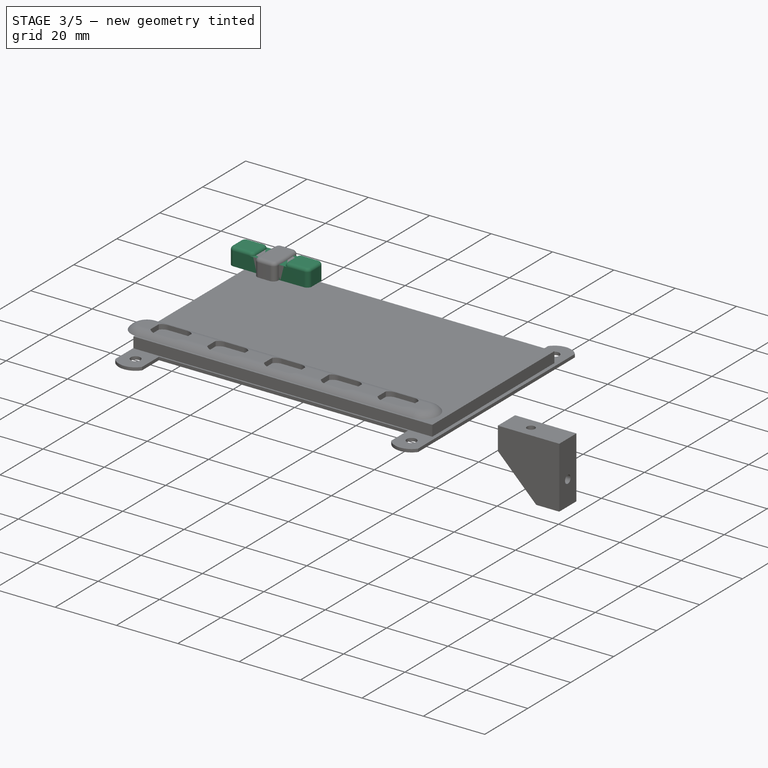
[diagram: stage 3 of 5 — iso view after this stage's code; geometry added in this stage tinted green]
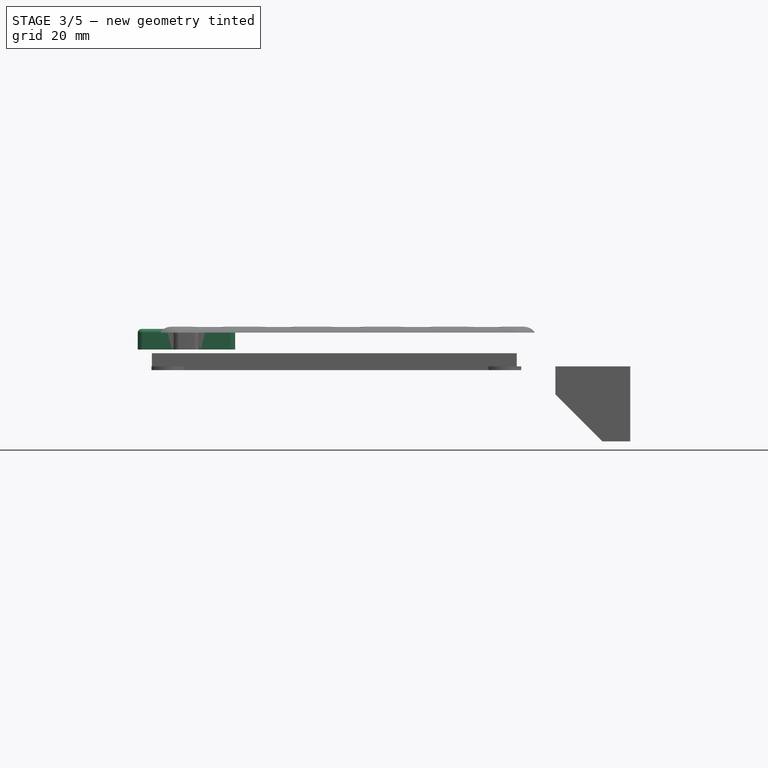
[diagram: stage 3 of 5 — front view after this stage's code; geometry added in this stage tinted green]
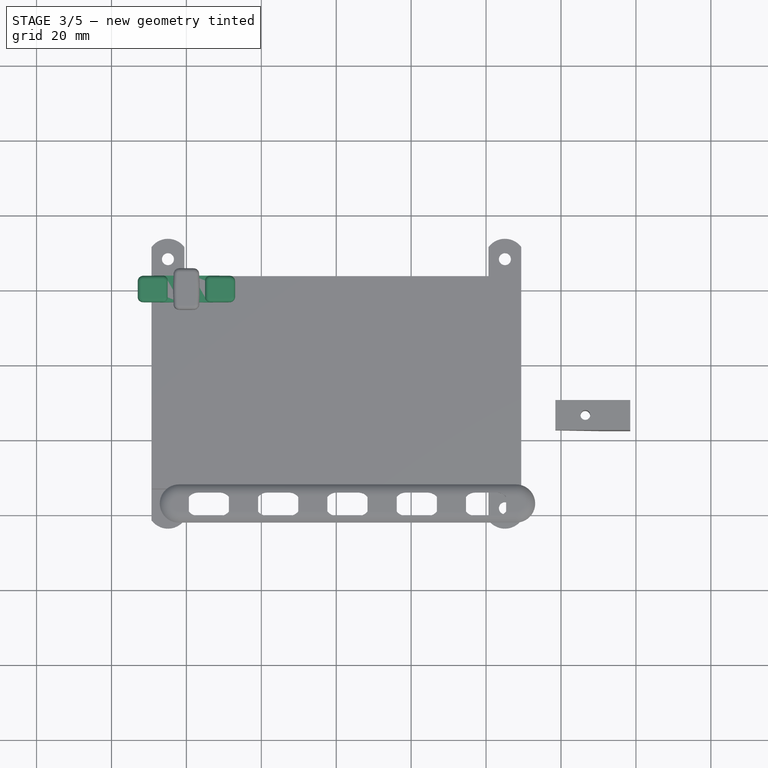
[diagram: stage 3 of 5 — top view after this stage's code; geometry added in this stage tinted green]
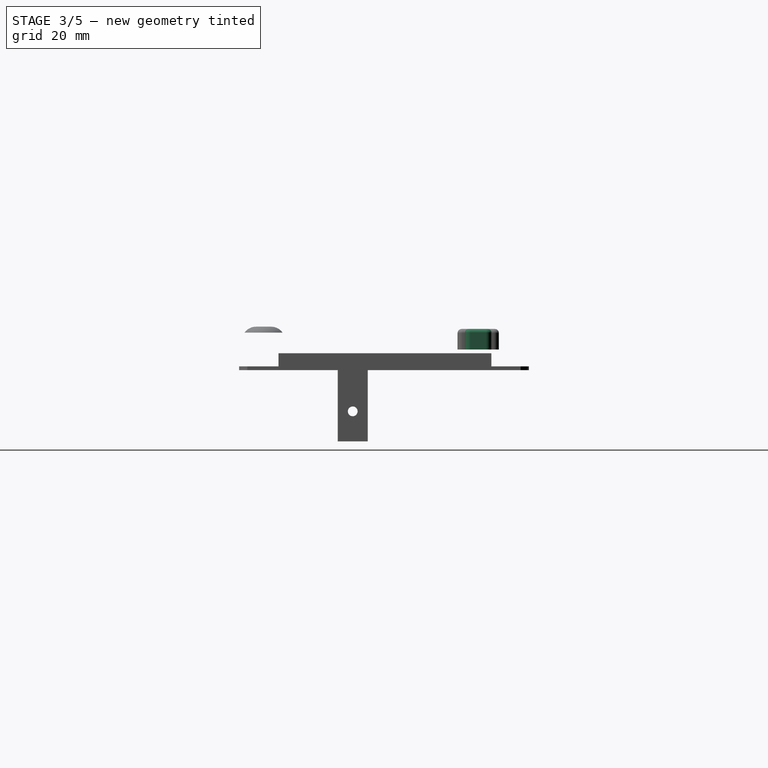
[diagram: stage 3 of 5 — right view after this stage's code; geometry added in this stage tinted green]
FEATURE [Part::FeaturePython] Clone002  label="Clone (button hole)"  # Draft clone (typed FeaturePython)
  Objects = -> [Pad017]
  Scale = (1,1,1)
FEATURE [Sketcher::SketchObject] Sketch025  label="Sketch (button zoom)"
  sketch-geometry (21):
    g0: ArcOfCircle CenterX=0 CenterY=-996.433 CenterZ=0 NormalX=0 NormalY=0 NormalZ=1 Radius=1000 StartAngle=1.55924 EndAngle=1.58235
    g1: ArcOfCircle CenterX=1e-12 CenterY=996.433 CenterZ=0 NormalX=0 NormalY=0 NormalZ=1 Radius=1000 StartAngle=4.70083 EndAngle=4.72395
    g2: ArcOfCircle CenterX=11.541 CenterY=2.04109 CenterZ=0 NormalX=0 NormalY=0 NormalZ=1 Radius=1.45901 StartAngle=0.000361306 EndAngle=1.55924
    g3: ArcOfCircle CenterX=11.541 CenterY=-2.04109 CenterZ=0 NormalX=0 NormalY=0 NormalZ=1 Radius=1.45901 StartAngle=4.72395 EndAngle=6.28282
    g4: ArcOfCircle CenterX=-5634.17 CenterY=-0.00157282 CenterZ=0 NormalX=0 NormalY=0 NormalZ=1 Radius=5647.17 StartAngle=6.28282 EndAngle=6.28355
    g5: ArcOfCircle CenterX=-11.541 CenterY=2.04109 CenterZ=0 NormalX=0 NormalY=0 NormalZ=1 Radius=1.45901 StartAngle=1.58235 EndAngle=3.14123
    g6: ArcOfCircle CenterX=-11.541 CenterY=-2.04109 CenterZ=0 NormalX=0 NormalY=0 NormalZ=1 Radius=1.45901 StartAngle=3.14195 EndAngle=4.70083
    g7: ArcOfCircle CenterX=5634.17 CenterY=-0.00157282 CenterZ=0 NormalX=0 NormalY=0 NormalZ=1 Radius=5647.17 StartAngle=3.14123 EndAngle=3.14195
    g8: LineSegment [constr] StartX=-11.5579 StartY=3.5 StartZ=0 EndX=-11.5579 EndY=-3.5 EndZ=0
    g9: LineSegment [constr] StartX=11.5579 StartY=3.5 StartZ=0 EndX=11.5579 EndY=-3.5 EndZ=0
    g10: LineSegment [constr] StartX=13 StartY=-2.04161 StartZ=0 EndX=-13 EndY=-2.04161 EndZ=0
    g11: LineSegment [constr] StartX=13 StartY=2.04161 StartZ=0 EndX=-13 EndY=2.04161 EndZ=0
    g12: LineSegment [constr] StartX=-13 StartY=2.04161 StartZ=0 EndX=13 EndY=-2.04161 EndZ=0
    g13: LineSegment [constr] StartX=-13 StartY=-2.04161 StartZ=0 EndX=13 EndY=2.04161 EndZ=0
    g14: LineSegment [constr] StartX=-11.5579 StartY=3.5 StartZ=0 EndX=11.5579 EndY=-3.5 EndZ=0
    g15: LineSegment [constr] StartX=11.5579 StartY=3.5 StartZ=0 EndX=-11.5579 EndY=-3.5 EndZ=0
    g16: GeomPoint [constr] X=0 Y=0 Z=0
    g17: LineSegment [constr] StartX=5634.17 StartY=-0.00157282 StartZ=0 EndX=1e-12 EndY=996.433 EndZ=0
    g18: LineSegment [constr] StartX=0 StartY=0 StartZ=0 EndX=-11.541 EndY=2.04109 EndZ=0
    g19: LineSegment [constr] StartX=-11.541 StartY=2.04109 StartZ=0 EndX=-11.5579 EndY=3.5 EndZ=0
    g20: LineSegment [constr] StartX=-11.541 StartY=2.04109 StartZ=0 EndX=-13 EndY=2.04161 EndZ=0
  constraints (57):
    c: Coincident(g2,g0)
    c: Coincident(g3,g1)
    c: Coincident(g4,g2)
    c: Coincident(g4,g3)
    c: Coincident(g5,g0)
    c: Coincident(g6,g1)
    c: Coincident(g7,g5)
    c: Coincident(g7,g6)
    c: Coincident(g8,g0)
    c: Coincident(g8,g1)
    c: Coincident(g9,g0)
    c: Coincident(g9,g1)
    c: Vertical(g9)
    c: Coincident(g10,g3)
    c: Coincident(g10,g6)
    c: Horizontal(g10)
    c: Coincident(g11,g2)
    c: Coincident(g11,g5)
    c: Horizontal(g11)
    c: Vertical(g8)
    c: Equal(g5,g2)
    c: Equal(g2,g3)
    c: Equal(g3,g6)
    c: Tangent(g5,g7)
    c: Tangent(g3,g4)
    c: Tangent(g2,g0)
    c: Equal(g8,g9)
    c: Coincident(g12,g5)
    c: Coincident(g12,g3)
    c: Coincident(g13,g6)
    c: Coincident(g13,g2)
    c: Coincident(g14,g0)
    c: Coincident(g14,g1)
    c: Coincident(g15,g0)
    c: PointOnObject(g16,g12)
    c: PointOnObject(g16,g14)
    c: PointOnObject(g16,g13)
    c: PointOnObject(g16,g15)
    c: Coincident(g15,g1)
    c: Equal(g14,g15)
    c: Equal(g13,g12)
    c: Equal(g4,g7)
    c: Equal(g0,g1)
    c: DistanceY(g1,g0) = 7
    c: Coincident(g17,g7)
    c: Coincident(g17,g1)
    c: Coincident(g18,g16)
    c: Coincident(g18,g5)
    c: Parallel(g18,g17)
    c: Coincident(g19,g5)
    c: Coincident(g19,g0)
    c: Coincident(g20,g5)
    c: Coincident(g5,g20)
    c: Coincident(g16,g-1)
    c: Radius(g5) = 1.45901
    c: DistanceX(g6,g3) = 26
    c: Radius(g0) = 1000
FEATURE [PartDesign::Pad] Pad019  label="Pad (button zoom)"
  Length = 5.5
  Length2 = 100
  Sketch = -> Sketch025
  Type = 0
FEATURE [Sketcher::SketchObject] Sketch026  label="Sketch (button zoom cutout)"
  Placement = pos=(0,0,4.5) rot=(0,0,1;0rad)
  sketch-geometry (4):
    g0: LineSegment StartX=-5 StartY=4.5 StartZ=0 EndX=5 EndY=4.5 EndZ=0
    g1: LineSegment StartX=5 StartY=4.5 StartZ=0 EndX=5 EndY=-4.5 EndZ=0
    g2: LineSegment StartX=5 StartY=-4.5 StartZ=0 EndX=-5 EndY=-4.5 EndZ=0
    g3: LineSegment StartX=-5 StartY=-4.5 StartZ=0 EndX=-5 EndY=4.5 EndZ=0
  constraints (12):
    c: Coincident(g0,g1)
    c: Coincident(g1,g2)
    c: Coincident(g2,g3)
    c: Coincident(g3,g0)
    c: Horizontal(g0)
    c: Horizontal(g2)
    c: Vertical(g1)
    c: Vertical(g3)
    c: DistanceX(g0,g0) = 10
    c: DistanceY(g1,g1) = 9
    c: Symmetric(g0,g0,g-2)
    c: Symmetric(g0,g1,g-1)
FEATURE [PartDesign::Pad] Pad020  label="Pad (button zoom cutout)"
  Length = 2
  Length2 = 100
  Placement = pos=(0,0,4.5) rot=(0,0,1;0rad)
  Sketch = -> Sketch026
  Type = 0
FEATURE [Part::Cut] Cut007  label="Cut (button zoom)"
  Base = -> Pad019
  Tool = -> Pad020
FEATURE [Part::Fillet] Fillet003  label="Fillet (button zoom)"
  Base = -> Cut007
  Edges = 4 edges r=1.3: [Edge4,Edge6,Edge23,Edge26]
FEATURE [Part::Fillet] Fillet004  label="Fillet (button zoom pads)"
  Base = -> Fillet003
  Edges = 16 edges r=0.99: [Edge1,Edge9,Edge11,Edge12,Edge13,Edge14,Edge15,Edge16,Edge17,Edge37,Edge38,Edge39,Edge40,Edge41,Edge42,Edge43]
FEATURE [App::DocumentObjectGroup] Group  label="Reference Images"
  Group = -> [ImagePlane001,ImagePlane]
FEATURE [App::DocumentObjectGroup] Group001  label="Bezel"
  Group = -> [Common]
FEATURE [Sketcher::SketchObject] Sketch039  label="Sketch (button zoom holes)"
  sketch-geometry (13):
    g0: LineSegment StartX=-9.125 StartY=1.1 StartZ=0 EndX=-5.875 EndY=1.1 EndZ=0
    g1: LineSegment StartX=-5.875 StartY=1.1 StartZ=0 EndX=-5.875 EndY=-1.1 EndZ=0
    g2: LineSegment StartX=-5.875 StartY=-1.1 StartZ=0 EndX=-9.125 EndY=-1.1 EndZ=0
    g3: LineSegment StartX=-9.125 StartY=-1.1 StartZ=0 EndX=-9.125 EndY=1.1 EndZ=0
    g4: LineSegment StartX=5.875 StartY=1.1 StartZ=0 EndX=9.125 EndY=1.1 EndZ=0
    g5: LineSegment StartX=9.125 StartY=1.1 StartZ=0 EndX=9.125 EndY=-1.1 EndZ=0
    g6: LineSegment StartX=9.125 StartY=-1.1 StartZ=0 EndX=5.875 EndY=-1.1 EndZ=0
    g7: LineSegment StartX=5.875 StartY=-1.1 StartZ=0 EndX=5.875 EndY=1.1 EndZ=0
    g8: LineSegment [constr] StartX=-5.875 StartY=1.1 StartZ=0 EndX=9.125 EndY=1.1 EndZ=0
    g9: LineSegment [constr] StartX=-5.875 StartY=0 StartZ=0 EndX=0 EndY=0 EndZ=0
    g10: LineSegment [constr] StartX=0 StartY=0 StartZ=0 EndX=5.875 EndY=0 EndZ=0
    g11: Circle CenterX=0 CenterY=0 CenterZ=0 NormalX=0 NormalY=0 NormalZ=1 Radius=1.75
    g12: Circle CenterX=0 CenterY=0 CenterZ=0 NormalX=0 NormalY=0 NormalZ=1 Radius=3
  constraints (36):
    c: Coincident(g0,g1)
    c: Coincident(g1,g2)
    c: Coincident(g2,g3)
    c: Coincident(g3,g0)
    c: Horizontal(g0)
    c: Horizontal(g2)
    c: Vertical(g1)
    c: Vertical(g3)
    c: Coincident(g4,g5)
    c: Coincident(g5,g6)
    c: Coincident(g6,g7)
    c: Coincident(g7,g4)
    c: Horizontal(g4)
    c: Horizontal(g6)
    c: Vertical(g5)
    c: Vertical(g7)
    c: Equal(g0,g4)
    c: Equal(g7,g3)
    c: DistanceY(g3,g3) = 2.2
    c: DistanceX(g0,g0) = 3.25
    c: Symmetric(g0,g2,g-1)
    c: Coincident(g8,g0)
    c: Coincident(g8,g4)
    c: Horizontal(g8)
    c: DistanceX(g8,g8) = 15
    c: PointOnObject(g9,g1)
    c: Coincident(g9,g-1)
    c: Horizontal(g9)
    c: Coincident(g10,g-1)
    c: PointOnObject(g10,g7)
    c: Horizontal(g10)
    c: Equal(g10,g9)
    c: Coincident(g11,g-1)
    c: Coincident(g12,g-1)
    c: Radius(g12) = 3
    c: Radius(g11) = 1.75
FEATURE [PartDesign::Pad] Pad022  label="Pad (button zoom holes)"
  Length = 2.5
  Length2 = 100
  Sketch = -> Sketch039
  Type = 0
FEATURE [Part::Cut] Cut  label="Cut (button zoom final)"
  Base = -> Fillet004
  Tool = -> Pad022
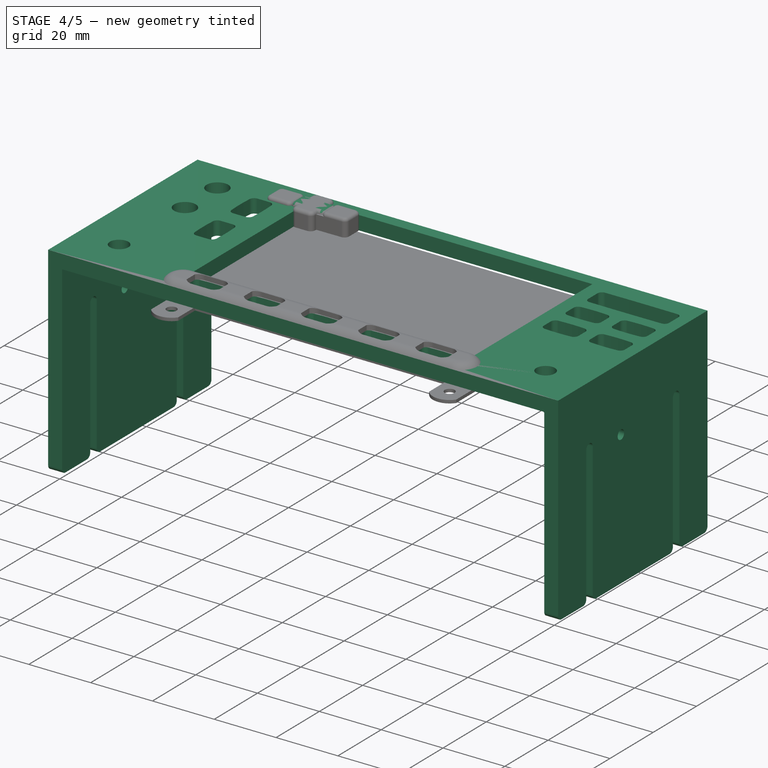
[diagram: stage 4 of 5 — iso view after this stage's code; geometry added in this stage tinted green]
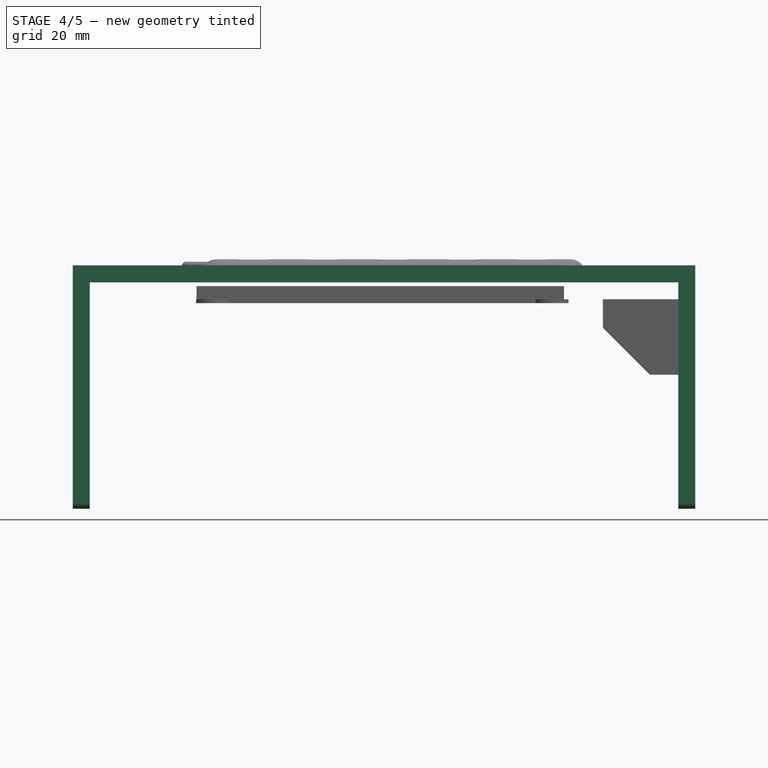
[diagram: stage 4 of 5 — front view after this stage's code; geometry added in this stage tinted green]
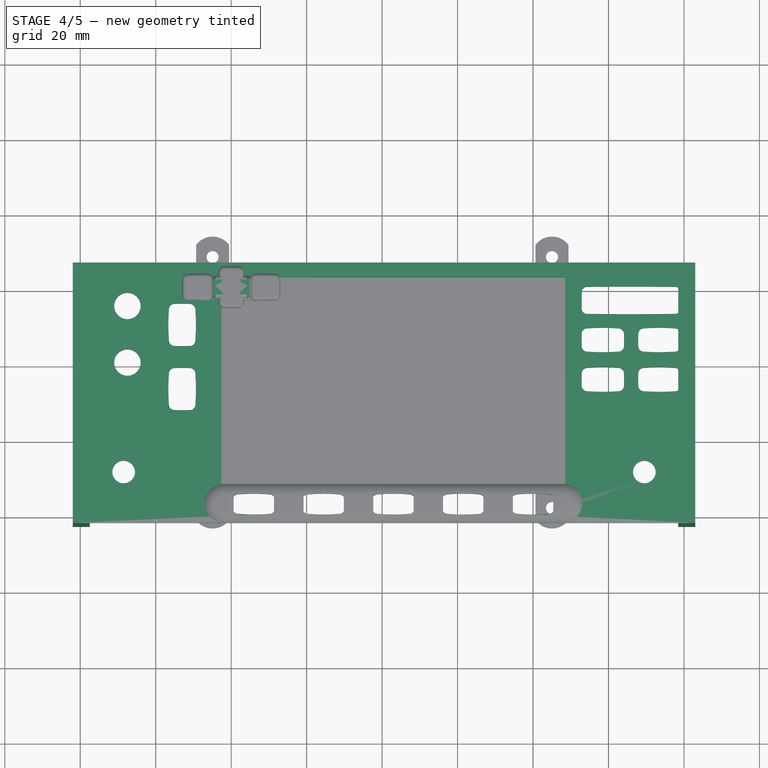
[diagram: stage 4 of 5 — top view after this stage's code; geometry added in this stage tinted green]
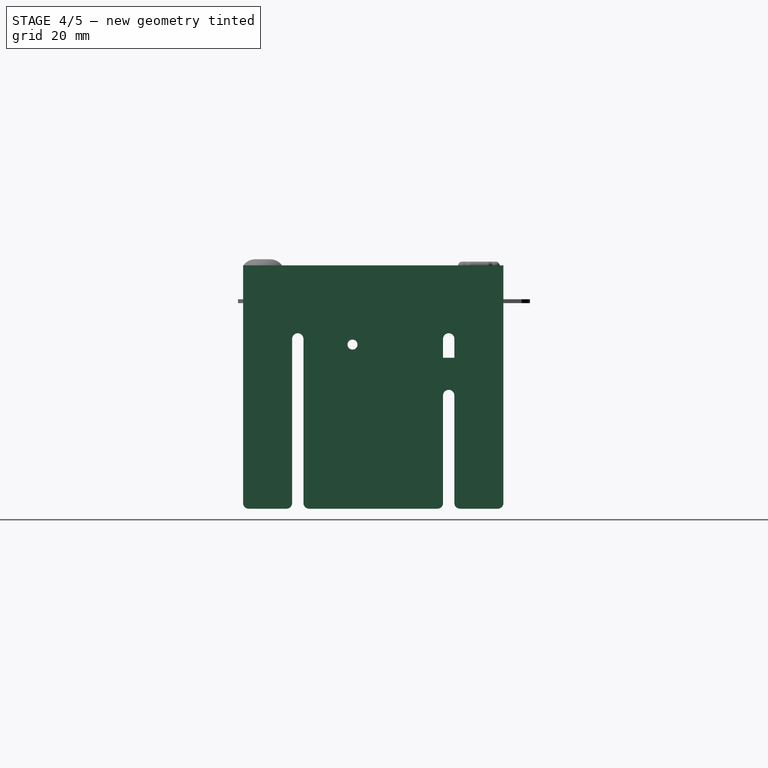
[diagram: stage 4 of 5 — right view after this stage's code; geometry added in this stage tinted green]
FEATURE [Sketcher::SketchObject] Sketch013  label="Sketch (right bracket)"
  Placement = pos=(123,0,0) rot=(0.57735,0.57735,0.57735;2.0944rad)
  expr: Constraints[6] = Spreadsheet.panel_height
  sketch-geometry (25):
    g0: LineSegment StartX=6.5 StartY=0 StartZ=0 EndX=-62.5 EndY=0 EndZ=0
    g1: LineSegment StartX=-62.5 StartY=0 StartZ=0 EndX=-62.5 EndY=-58.5 EndZ=0
    g2: LineSegment StartX=6.5 StartY=-58.5 StartZ=0 EndX=6.5 EndY=0 EndZ=0
    g3: ArcOfCircle CenterX=-48 CenterY=-15 CenterZ=0 NormalX=0 NormalY=0 NormalZ=1 Radius=1.5 StartAngle=0 EndAngle=3.14159
    g4: LineSegment StartX=-49.5 StartY=-15 StartZ=0 EndX=-49.5 EndY=-58.5 EndZ=0
    g5: LineSegment StartX=-46.5 StartY=-15 StartZ=0 EndX=-46.5 EndY=-58.5 EndZ=0
    g6: ArcOfCircle CenterX=-8 CenterY=-15 CenterZ=0 NormalX=0 NormalY=0 NormalZ=1 Radius=1.5 StartAngle=0 EndAngle=3.14159
    g7: LineSegment StartX=-9.5 StartY=-15 StartZ=0 EndX=-9.5 EndY=-58.5 EndZ=0
    g8: LineSegment StartX=-6.5 StartY=-15 StartZ=0 EndX=-6.5 EndY=-58.5 EndZ=0
    g9: LineSegment [constr] StartX=-8 StartY=-15 StartZ=0 EndX=-48 EndY=-15 EndZ=0
    g10: ArcOfCircle CenterX=-51 CenterY=-58.5 CenterZ=0 NormalX=0 NormalY=0 NormalZ=1 Radius=1.5 StartAngle=4.71239 EndAngle=6.28319
    g11: ArcOfCircle CenterX=-5 CenterY=-58.5 CenterZ=0 NormalX=0 NormalY=0 NormalZ=1 Radius=1.5 StartAngle=3.14159 EndAngle=4.71239
    g12: ArcOfCircle CenterX=-11 CenterY=-58.5 CenterZ=0 NormalX=0 NormalY=0 NormalZ=1 Radius=1.5 StartAngle=4.7124 EndAngle=6.28319
    g13: ArcOfCircle CenterX=-45 CenterY=-58.5 CenterZ=0 NormalX=0 NormalY=0 NormalZ=1 Radius=1.5 StartAngle=3.14159 EndAngle=4.71239
    g14: LineSegment [constr] StartX=-51 StartY=-58.5 StartZ=0 EndX=-5 EndY=-58.5 EndZ=0
    g15: LineSegment StartX=-61 StartY=-60 StartZ=0 EndX=-51 EndY=-60 EndZ=0
    g16: LineSegment StartX=-45 StartY=-60 StartZ=0 EndX=-11 EndY=-60 EndZ=0
    g17: LineSegment StartX=-5 StartY=-60 StartZ=0 EndX=5 EndY=-60 EndZ=0
    g18: LineSegment [constr] StartX=-51 StartY=-58.5 StartZ=0 EndX=-51 EndY=-60 EndZ=0
    g19: LineSegment [constr] StartX=-45 StartY=-58.5 StartZ=0 EndX=-45 EndY=-60 EndZ=0
    g20: LineSegment [constr] StartX=-11 StartY=-58.5 StartZ=0 EndX=-11 EndY=-60 EndZ=0
    g21: LineSegment [constr] StartX=-5 StartY=-58.5 StartZ=0 EndX=-5 EndY=-60 EndZ=0
    g22: ArcOfCircle CenterX=5 CenterY=-58.5 CenterZ=0 NormalX=0 NormalY=0 NormalZ=1 Radius=1.5 StartAngle=4.71239 EndAngle=6.28319
    g23: ArcOfCircle CenterX=-61 CenterY=-58.5 CenterZ=0 NormalX=0 NormalY=0 NormalZ=1 Radius=1.5 StartAngle=3.14159 EndAngle=4.71239
    g24: Circle CenterX=-33.5 CenterY=-16.5 CenterZ=0 NormalX=0 NormalY=0 NormalZ=1 Radius=1.5
  constraints (69):
    c: Coincident(g0,g1)
    c: Coincident(g2,g0)
    c: Horizontal(g0)
    c: Vertical(g1)
    c: Vertical(g2)
    c: PointOnObject(g0,g-1)
    c: DistanceX(g0,g0) = 69
    c: DistanceX(g-1,g0) = 6.5
    c: Tangent(g3,g5) = 1.5708
    c: Tangent(g3,g4) = -1.5708
    c: Vertical(g4)
    c: Tangent(g6,g8) = 1.5708
    c: Tangent(g6,g7) = -1.5708
    c: Vertical(g7)
    c: Coincident(g9,g6)
    c: Coincident(g9,g3)
    c: Horizontal(g9)
    c: Radius(g3) = 1.5
    c: Equal(g3,g6)
    c: DistanceX(g9,g9) = 40
    c: Coincident(g10,g4)
    c: Coincident(g11,g8)
    c: Coincident(g12,g7)
    c: Coincident(g13,g5)
    c: Equal(g10,g13)
    c: Equal(g13,g12)
    c: Equal(g12,g11)
    c: Coincident(g14,g10)
    c: Coincident(g14,g11)
    c: Horizontal(g14)
    c: PointOnObject(g8,g14)
    c: PointOnObject(g7,g14)
    c: PointOnObject(g12,g14)
    c: PointOnObject(g13,g14)
    c: PointOnObject(g5,g14)
    c: Vertical(g5)
    c: PointOnObject(g4,g14)
    c: Coincident(g15,g10)
    c: Horizontal(g15)
    c: Coincident(g16,g13)
    c: Coincident(g16,g12)
    c: Coincident(g17,g11)
    c: Horizontal(g17)
    c: Horizontal(g16)
    c: Coincident(g18,g10)
    c: Coincident(g18,g10)
    c: Vertical(g18)
    c: Coincident(g19,g13)
    c: Coincident(g20,g12)
    c: Coincident(g20,g12)
    c: Coincident(g21,g11)
    c: Coincident(g21,g11)
    c: Vertical(g21)
    c: Vertical(g19)
    c: Coincident(g13,g19)
    c: Vertical(g8)
    c: Equal(g15,g17)
    c: DistanceY(g3,g0) = 15
    c: Equal(g10,g3)
    c: Tangent(g2,g22) = -1.5708
    c: Tangent(g17,g22) = -1.5708
    c: Tangent(g1,g23) = -1.5708
    c: Tangent(g15,g23) = -1.5708
    c: Equal(g10,g23)
    c: Equal(g23,g22)
    c: DistanceY(g17,g0) = 60
    c: DistanceX(g24,g-1) = 33.5
    c: DistanceY(g24,g-1) = 16.5
    c: Radius(g24) = 1.5
FEATURE [PartDesign::Pad] Pad011  label="Pad (panel right bracket)"
  Length = 4.5
  Length2 = 100
  Placement = pos=(123,0,0) rot=(0.57735,0.57735,0.57735;2.0944rad)
  Reversed = true
  Sketch = -> Sketch013
  Type = 0
FEATURE [Image::ImagePlane] ImagePlane001  label="Image (photo)"
  Placement = pos=(40.5,-28,0) rot=(0,0,1;0rad)
  XSize = 165
  YSize = 69
FEATURE [Sketcher::SketchObject] Sketch020  label="Sketch (button small)"
  sketch-geometry (21):
    g0: ArcOfCircle CenterX=0 CenterY=-48.4156 CenterZ=0 NormalX=0 NormalY=0 NormalZ=1 Radius=51.086 StartAngle=1.48909 EndAngle=1.6525
    g1: ArcOfCircle CenterX=0 CenterY=48.4156 CenterZ=0 NormalX=0 NormalY=0 NormalZ=1 Radius=51.086 StartAngle=4.63069 EndAngle=4.79409
    g2: ArcOfCircle CenterX=4.05103 CenterY=1.05584 CenterZ=0 NormalX=0 NormalY=0 NormalZ=1 Radius=1.44899 StartAngle=0.00556248 EndAngle=1.48909
    g3: ArcOfCircle CenterX=4.05103 CenterY=-1.05584 CenterZ=0 NormalX=0 NormalY=0 NormalZ=1 Radius=1.44899 StartAngle=4.79409 EndAngle=6.27762
    g4: ArcOfCircle CenterX=-185.76 CenterY=-1.97219e-05 CenterZ=0 NormalX=0 NormalY=0 NormalZ=1 Radius=191.263 StartAngle=6.27762 EndAngle=6.28875
    g5: ArcOfCircle CenterX=-4.05103 CenterY=1.05584 CenterZ=0 NormalX=0 NormalY=0 NormalZ=1 Radius=1.44899 StartAngle=1.6525 EndAngle=3.13603
    g6: ArcOfCircle CenterX=-4.05103 CenterY=-1.05584 CenterZ=0 NormalX=0 NormalY=0 NormalZ=1 Radius=1.44899 StartAngle=3.14716 EndAngle=4.63069
    g7: ArcOfCircle CenterX=185.76 CenterY=-1.97219e-05 CenterZ=0 NormalX=0 NormalY=0 NormalZ=1 Radius=191.263 StartAngle=3.13603 EndAngle=3.14716
    g8: LineSegment [constr] StartX=-4.16929 StartY=2.5 StartZ=0 EndX=-4.16929 EndY=-2.5 EndZ=0
    g9: LineSegment [constr] StartX=4.16929 StartY=2.5 StartZ=0 EndX=4.16929 EndY=-2.5 EndZ=0
    g10: LineSegment [constr] StartX=5.5 StartY=-1.0639 StartZ=0 EndX=-5.5 EndY=-1.0639 EndZ=0
    g11: LineSegment [constr] StartX=5.5 StartY=1.0639 StartZ=0 EndX=-5.5 EndY=1.0639 EndZ=0
    g12: LineSegment [constr] StartX=-5.5 StartY=1.0639 StartZ=0 EndX=5.5 EndY=-1.0639 EndZ=0
    g13: LineSegment [constr] StartX=-5.5 StartY=-1.0639 StartZ=0 EndX=5.5 EndY=1.0639 EndZ=0
    g14: LineSegment [constr] StartX=-4.16929 StartY=2.5 StartZ=0 EndX=4.16929 EndY=-2.5 EndZ=0
    g15: LineSegment [constr] StartX=4.16929 StartY=2.5 StartZ=0 EndX=-4.16929 EndY=-2.5 EndZ=0
    g16: GeomPoint [constr] X=0 Y=0 Z=0
    g17: LineSegment [constr] StartX=185.76 StartY=-1.97219e-05 StartZ=0 EndX=0 EndY=48.4156 EndZ=0
    g18: LineSegment [constr] StartX=0 StartY=0 StartZ=0 EndX=-4.05103 EndY=1.05584 EndZ=0
    g19: LineSegment [constr] StartX=-4.05103 StartY=1.05584 StartZ=0 EndX=-4.16929 EndY=2.5 EndZ=0
    g20: LineSegment [constr] StartX=-4.05103 StartY=1.05584 StartZ=0 EndX=-5.5 EndY=1.0639 EndZ=0
  constraints (57):
    c: Coincident(g2,g0)
    c: Coincident(g3,g1)
    c: Coincident(g4,g2)
    c: Coincident(g4,g3)
    c: Coincident(g5,g0)
    c: Coincident(g6,g1)
    c: Coincident(g7,g5)
    c: Coincident(g7,g6)
    c: Coincident(g8,g0)
    c: Coincident(g8,g1)
    c: Coincident(g9,g0)
    c: Coincident(g9,g1)
    c: Vertical(g9)
    c: Coincident(g10,g3)
    c: Coincident(g10,g6)
    c: Horizontal(g10)
    c: Coincident(g11,g2)
    c: Coincident(g11,g5)
    c: Horizontal(g11)
    c: Vertical(g8)
    c: Equal(g5,g2)
    c: Equal(g2,g3)
    c: Equal(g3,g6)
    c: Tangent(g5,g7)
    c: Tangent(g3,g4)
    c: Tangent(g2,g0)
    c: Equal(g8,g9)
    c: Coincident(g12,g5)
    c: Coincident(g12,g3)
    c: Coincident(g13,g6)
    c: Coincident(g13,g2)
    c: Coincident(g14,g0)
    c: Coincident(g14,g1)
    c: Coincident(g15,g0)
    c: PointOnObject(g16,g12)
    c: PointOnObject(g16,g14)
    c: PointOnObject(g16,g13)
    c: PointOnObject(g16,g15)
    c: Coincident(g15,g1)
    c: Equal(g14,g15)
    c: Equal(g13,g12)
    c: Equal(g4,g7)
    c: Equal(g0,g1)
    c: DistanceX(g6,g3) = 11
    c: DistanceY(g1,g0) = 5
    c: Angle(g14,g12) = 0.349066
    c: Coincident(g17,g7)
    c: Coincident(g17,g1)
    c: Coincident(g18,g16)
    c: Coincident(g18,g5)
    c: Parallel(g18,g17)
    c: Coincident(g19,g5)
    c: Coincident(g19,g0)
    c: Coincident(g20,g5)
    c: Coincident(g5,g20)
    c: Angle(g19,g20) = 1.48353
    c: Coincident(g16,g-1)
FEATURE [PartDesign::Pad] Pad016  label="Pad (button small)"
  Length = 5.5
  Length2 = 100
  Sketch = -> Sketch020
  Type = 0
FEATURE [Part::Fillet] Fillet001  label="Fillet (button small)"
  Base = -> Pad016
  Edges = 8 edges r=1.1: [Edge4,Edge7,Edge10,Edge13,Edge16,Edge19,Edge22,Edge24]
FEATURE [Part::Cut] Cut003  label="Cut (button small final)"
  Base = -> Fillet001
  Tool = -> Pad017
FEATURE [Sketcher::SketchObject] Sketch024  label="Sketch (button med)"
  sketch-geometry (21):
    g0: ArcOfCircle CenterX=0 CenterY=-51.4419 CenterZ=0 NormalX=0 NormalY=0 NormalZ=1 Radius=54.6 StartAngle=1.49468 EndAngle=1.64691
    g1: ArcOfCircle CenterX=0 CenterY=51.4419 CenterZ=0 NormalX=0 NormalY=0 NormalZ=1 Radius=54.6 StartAngle=4.63627 EndAngle=4.78851
    g2: ArcOfCircle CenterX=4.04108 CenterY=1.54522 CenterZ=0 NormalX=0 NormalY=0 NormalZ=1 Radius=1.45901 StartAngle=0.0111496 EndAngle=1.49468
    g3: ArcOfCircle CenterX=4.04108 CenterY=-1.54522 CenterZ=0 NormalX=0 NormalY=0 NormalZ=1 Radius=1.45901 StartAngle=4.7885 EndAngle=6.27204
    g4: ArcOfCircle CenterX=-134.532 CenterY=-9.44784e-05 CenterZ=0 NormalX=0 NormalY=0 NormalZ=1 Radius=140.041 StartAngle=6.27204 EndAngle=6.29434
    g5: ArcOfCircle CenterX=-4.04108 CenterY=1.54522 CenterZ=0 NormalX=0 NormalY=0 NormalZ=1 Radius=1.45901 StartAngle=1.64691 EndAngle=3.13044
    g6: ArcOfCircle CenterX=-4.04108 CenterY=-1.54522 CenterZ=0 NormalX=0 NormalY=0 NormalZ=1 Radius=1.45901 StartAngle=3.15274 EndAngle=4.63627
    g7: ArcOfCircle CenterX=134.532 CenterY=-9.44784e-05 CenterZ=0 NormalX=0 NormalY=0 NormalZ=1 Radius=140.041 StartAngle=3.13044 EndAngle=3.15274
    g8: LineSegment [constr] StartX=-4.15203 StartY=3 StartZ=0 EndX=-4.15203 EndY=-3 EndZ=0
    g9: LineSegment [constr] StartX=4.15203 StartY=3 StartZ=0 EndX=4.15203 EndY=-3 EndZ=0
    g10: LineSegment [constr] StartX=5.5 StartY=-1.56148 StartZ=0 EndX=-5.5 EndY=-1.56148 EndZ=0
    g11: LineSegment [constr] StartX=5.5 StartY=1.56148 StartZ=0 EndX=-5.5 EndY=1.56148 EndZ=0
    g12: LineSegment [constr] StartX=-5.5 StartY=1.56148 StartZ=0 EndX=5.5 EndY=-1.56148 EndZ=0
    g13: LineSegment [constr] StartX=-5.5 StartY=-1.56148 StartZ=0 EndX=5.5 EndY=1.56148 EndZ=0
    g14: LineSegment [constr] StartX=-4.15203 StartY=3 StartZ=0 EndX=4.15203 EndY=-3 EndZ=0
    g15: LineSegment [constr] StartX=4.15203 StartY=3 StartZ=0 EndX=-4.15203 EndY=-3 EndZ=0
    g16: GeomPoint [constr] X=0 Y=0 Z=0
    g17: LineSegment [constr] StartX=134.532 StartY=-9.44784e-05 StartZ=0 EndX=0 EndY=51.4419 EndZ=0
    g18: LineSegment [constr] StartX=0 StartY=0 StartZ=0 EndX=-4.04108 EndY=1.54522 EndZ=0
    g19: LineSegment [constr] StartX=-4.04108 StartY=1.54522 StartZ=0 EndX=-4.15203 EndY=3 EndZ=0
    g20: LineSegment [constr] StartX=-4.04108 StartY=1.54522 StartZ=0 EndX=-5.5 EndY=1.56148 EndZ=0
  constraints (57):
    c: Coincident(g2,g0)
    c: Coincident(g3,g1)
    c: Coincident(g4,g2)
    c: Coincident(g4,g3)
    c: Coincident(g5,g0)
    c: Coincident(g6,g1)
    c: Coincident(g7,g5)
    c: Coincident(g7,g6)
    c: Coincident(g8,g0)
    c: Coincident(g8,g1)
    c: Coincident(g9,g0)
    c: Coincident(g9,g1)
    c: Vertical(g9)
    c: Coincident(g10,g3)
    c: Coincident(g10,g6)
    c: Horizontal(g10)
    c: Coincident(g11,g2)
    c: Coincident(g11,g5)
    c: Horizontal(g11)
    c: Vertical(g8)
    c: Equal(g5,g2)
    c: Equal(g2,g3)
    c: Equal(g3,g6)
    c: Tangent(g5,g7)
    c: Tangent(g3,g4)
    c: Tangent(g2,g0)
    c: Equal(g8,g9)
    c: Coincident(g12,g5)
    c: Coincident(g12,g3)
    c: Coincident(g13,g6)
    c: Coincident(g13,g2)
    c: Coincident(g14,g0)
    c: Coincident(g14,g1)
    c: Coincident(g15,g0)
    c: PointOnObject(g16,g12)
    c: PointOnObject(g16,g14)
    c: PointOnObject(g16,g13)
    c: PointOnObject(g16,g15)
    c: Coincident(g15,g1)
    c: Equal(g14,g15)
    c: Equal(g13,g12)
    c: Equal(g4,g7)
    c: Equal(g0,g1)
    c: DistanceX(g6,g3) = 11
    c: DistanceY(g1,g0) = 6
    c: Angle(g14,g12) = 0.349066
    c: Coincident(g17,g7)
    c: Coincident(g17,g1)
    c: Coincident(g18,g16)
    c: Coincident(g18,g5)
    c: Parallel(g18,g17)
    c: Coincident(g19,g5)
    c: Coincident(g19,g0)
    c: Coincident(g20,g5)
    c: Coincident(g5,g20)
    c: Angle(g19,g20) = 1.48353
    c: Coincident(g16,g-1)
FEATURE [PartDesign::Pad] Pad018  label="Pad (button med)"
  Length = 5.5
  Length2 = 100
  Sketch = -> Sketch024
  Type = 0
FEATURE [Part::Fillet] Fillet002  label="Fillet (button med)"
  Base = -> Pad018
  Edges = 8 edges r=1.1: [Edge4,Edge7,Edge10,Edge13,Edge16,Edge19,Edge22,Edge24]
FEATURE [Part::Cut] Cut005  label="Cut (button med final)"
  Base = -> Fillet002
  Tool = -> Clone002
FEATURE [Sketcher::SketchObject] Sketch036  label="Sketch (faceplate)"
  sketch-geometry (270):
    g0: LineSegment StartX=-42 StartY=6.5 StartZ=0 EndX=123 EndY=6.5 EndZ=0
    g1: LineSegment StartX=123 StartY=6.5 StartZ=0 EndX=123 EndY=-62.5 EndZ=0
    g2: LineSegment StartX=123 StartY=-62.5 StartZ=0 EndX=-42 EndY=-62.5 EndZ=0
    g3: LineSegment StartX=-42 StartY=-62.5 StartZ=0 EndX=-42 EndY=6.5 EndZ=0
    g4: Circle CenterX=-28.5 CenterY=-49 CenterZ=0 NormalX=0 NormalY=0 NormalZ=1 Radius=3
    g5: Circle CenterX=109.5 CenterY=-49 CenterZ=0 NormalX=0 NormalY=0 NormalZ=1 Radius=3
    g6: LineSegment [constr] StartX=-42 StartY=6.5 StartZ=0 EndX=40.5 EndY=-28 EndZ=0
    g7: LineSegment [constr] StartX=40.5 StartY=-28 StartZ=0 EndX=123 EndY=-62.5 EndZ=0
    g8: LineSegment [constr] StartX=24.5 StartY=-57.5 StartZ=0 EndX=6 EndY=-57.5 EndZ=0
    g9: Circle CenterX=-27.5 CenterY=-5 CenterZ=0 NormalX=0 NormalY=0 NormalZ=1 Radius=3.5
    g10: Circle CenterX=-27.5 CenterY=-20 CenterZ=0 NormalX=0 NormalY=0 NormalZ=1 Radius=3.5
    g11: LineSegment [constr] StartX=-27.5 StartY=-5 StartZ=0 EndX=-27.5 EndY=-20 EndZ=0
    g12: LineSegment [constr] StartX=-13 StartY=-27 StartZ=0 EndX=-13 EndY=-10 EndZ=0
    g13: LineSegment StartX=-42 StartY=1.6 StartZ=0 EndX=-42 EndY=-11.6 EndZ=0
    g14: LineSegment StartX=-2.6 StartY=2.6 StartZ=0 EndX=88.5 EndY=2.6 EndZ=0
    g15: LineSegment StartX=88.5 StartY=2.6 StartZ=0 EndX=88.5 EndY=-52.4 EndZ=0
    g16: LineSegment StartX=88.5 StartY=-52.4 StartZ=0 EndX=-2.6 EndY=-52.4 EndZ=0
    g17: LineSegment StartX=-2.6 StartY=-52.4 StartZ=0 EndX=-2.6 EndY=2.6 EndZ=0
    g18: LineSegment [constr] StartX=24.5 StartY=-57.5 StartZ=0 EndX=43 EndY=-57.5 EndZ=0
    g19: LineSegment [constr] StartX=43 StartY=-57.5 StartZ=0 EndX=61.5 EndY=-57.5 EndZ=0
    g20: LineSegment [constr] StartX=61.5 StartY=-57.5 StartZ=0 EndX=80 EndY=-57.5 EndZ=0
    g21: LineSegment [constr] StartX=98.5 StartY=-14 StartZ=0 EndX=98.5 EndY=-24.5 EndZ=0
    g22: LineSegment [constr] StartX=98.5 StartY=-24.5 StartZ=0 EndX=113.5 EndY=-24.5 EndZ=0
    g23: LineSegment [constr] StartX=98.5 StartY=-14 StartZ=0 EndX=98.5 EndY=-3.5 EndZ=0
    g24: LineSegment [constr] StartX=98.5 StartY=-14 StartZ=0 EndX=113.5 EndY=-14 EndZ=0
    g25: ArcOfCircle CenterX=106 CenterY=-999.832 CenterZ=0 NormalX=0 NormalY=0 NormalZ=1 Radius=1000 StartAngle=1.55914 EndAngle=1.58245
    g26: ArcOfCircle CenterX=106 CenterY=992.832 CenterZ=0 NormalX=0 NormalY=0 NormalZ=1 Radius=1000 StartAngle=4.70073 EndAngle=4.72405
    g27: ArcOfCircle CenterX=117.641 CenterY=-1.35891 CenterZ=0 NormalX=0 NormalY=0 NormalZ=1 Radius=1.45901 StartAngle=0.00039423 EndAngle=1.55914
    g28: ArcOfCircle CenterX=117.641 CenterY=-5.64109 CenterZ=0 NormalX=0 NormalY=0 NormalZ=1 Radius=1.45901 StartAngle=4.72405 EndAngle=6.28279
    g29: ArcOfCircle CenterX=-5310.99 CenterY=-3.49792 CenterZ=0 NormalX=0 NormalY=0 NormalZ=1 Radius=5430.1 StartAngle=6.28279 EndAngle=6.28358
    g30: ArcOfCircle CenterX=94.359 CenterY=-1.35891 CenterZ=0 NormalX=0 NormalY=0 NormalZ=1 Radius=1.45901 StartAngle=1.58245 EndAngle=3.1412
    g31: ArcOfCircle CenterX=94.359 CenterY=-5.64109 CenterZ=0 NormalX=0 NormalY=0 NormalZ=1 Radius=1.45901 StartAngle=3.14199 EndAngle=4.70073
    g32: ArcOfCircle CenterX=5522.99 CenterY=-3.49792 CenterZ=0 NormalX=0 NormalY=0 NormalZ=1 Radius=5430.1 StartAngle=3.1412 EndAngle=3.14199
    g33: LineSegment [constr] StartX=94.342 StartY=0.1 StartZ=0 EndX=94.342 EndY=-7.1 EndZ=0
    g34: LineSegment [constr] StartX=117.658 StartY=0.1 StartZ=0 EndX=117.658 EndY=-7.1 EndZ=0
    g35: LineSegment [constr] StartX=119.1 StartY=-5.64166 StartZ=0 EndX=92.9 EndY=-5.64166 EndZ=0
    g36: LineSegment [constr] StartX=119.1 StartY=-1.35834 StartZ=0 EndX=92.9 EndY=-1.35834 EndZ=0
    g37: LineSegment [constr] StartX=92.9 StartY=-1.35834 StartZ=0 EndX=119.1 EndY=-5.64166 EndZ=0
    g38: LineSegment [constr] StartX=92.9 StartY=-5.64166 StartZ=0 EndX=119.1 EndY=-1.35834 EndZ=0
    g39: LineSegment [constr] StartX=94.342 StartY=0.1 StartZ=0 EndX=117.658 EndY=-7.1 EndZ=0
    g40: LineSegment [constr] StartX=117.658 StartY=0.1 StartZ=0 EndX=94.342 EndY=-7.1 EndZ=0
    g41: GeomPoint [constr] X=106 Y=-3.5 Z=0
    g42: LineSegment [constr] StartX=5522.99 StartY=-3.49792 StartZ=0 EndX=106 EndY=992.832 EndZ=0
    g43: LineSegment [constr] StartX=106 StartY=-3.5 StartZ=0 EndX=94.359 EndY=-1.35891 EndZ=0
    g44: LineSegment [constr] StartX=94.359 StartY=-1.35891 StartZ=0 EndX=94.342 EndY=0.1 EndZ=0
    g45: LineSegment [constr] StartX=94.359 StartY=-1.35891 StartZ=0 EndX=92.9 EndY=-1.35834 EndZ=0
    g46: ArcOfCircle CenterX=6 CenterY=-108.459 CenterZ=0 NormalX=0 NormalY=0 NormalZ=1 Radius=53.7263 StartAngle=1.49175 EndAngle=1.64984
    g47: ArcOfCircle CenterX=6 CenterY=-6.54146 CenterZ=0 NormalX=0 NormalY=0 NormalZ=1 Radius=53.7263 StartAngle=4.63334 EndAngle=4.79144
    g48: ArcOfCircle CenterX=10.1262 CenterY=-56.3693 CenterZ=0 NormalX=0 NormalY=0 NormalZ=1 Radius=1.47387 StartAngle=0.00594598 EndAngle=1.49174
    g49: ArcOfCircle CenterX=10.1262 CenterY=-58.6307 CenterZ=0 NormalX=0 NormalY=0 NormalZ=1 Radius=1.47387 StartAngle=4.79144 EndAngle=6.27724
    g50: ArcOfCircle CenterX=-179.953 CenterY=-57.5002 CenterZ=0 NormalX=0 NormalY=0 NormalZ=1 Radius=191.557 StartAngle=6.27724 EndAngle=6.28913
    g51: ArcOfCircle CenterX=1.87385 CenterY=-56.3693 CenterZ=0 NormalX=0 NormalY=0 NormalZ=1 Radius=1.47387 StartAngle=1.64985 EndAngle=3.13565
    g52: ArcOfCircle CenterX=1.87384 CenterY=-58.6307 CenterZ=0 NormalX=0 NormalY=0 NormalZ=1 Radius=1.47387 StartAngle=3.14754 EndAngle=4.63334
    g53: ArcOfCircle CenterX=191.953 CenterY=-57.5002 CenterZ=0 NormalX=0 NormalY=0 NormalZ=1 Radius=191.557 StartAngle=3.13564 EndAngle=3.14754
    g54: LineSegment [constr] StartX=1.75745 StartY=-54.9 StartZ=0 EndX=1.75745 EndY=-60.1 EndZ=0
    g55: LineSegment [constr] StartX=10.2425 StartY=-54.9 StartZ=0 EndX=10.2425 EndY=-60.1 EndZ=0
    g56: LineSegment [constr] StartX=11.6 StartY=-58.6395 StartZ=0 EndX=0.4 EndY=-58.6395 EndZ=0
    g57: LineSegment [constr] StartX=11.6 StartY=-56.3605 StartZ=0 EndX=0.400002 EndY=-56.3605 EndZ=0
    g58: LineSegment [constr] StartX=0.400002 StartY=-56.3605 StartZ=0 EndX=11.6 EndY=-58.6395 EndZ=0
    g59: LineSegment [constr] StartX=0.4 StartY=-58.6395 StartZ=0 EndX=11.6 EndY=-56.3605 EndZ=0
    g60: LineSegment [constr] StartX=1.75745 StartY=-54.9 StartZ=0 EndX=10.2425 EndY=-60.1 EndZ=0
    g61: LineSegment [constr] StartX=10.2425 StartY=-54.9 StartZ=0 EndX=1.75745 EndY=-60.1 EndZ=0
    g62: GeomPoint [constr] X=6 Y=-57.5 Z=0
    g63: LineSegment [constr] StartX=191.953 StartY=-57.5002 StartZ=0 EndX=6 EndY=-6.54146 EndZ=0
    g64: LineSegment [constr] StartX=6 StartY=-57.5 StartZ=0 EndX=1.87385 EndY=-56.3693 EndZ=0
    g65: LineSegment [constr] StartX=1.87385 StartY=-56.3693 StartZ=0 EndX=1.75745 EndY=-54.9 EndZ=0
    g66: LineSegment [constr] StartX=1.87385 StartY=-56.3693 StartZ=0 EndX=0.400002 EndY=-56.3605 EndZ=0
    g67: ArcOfCircle CenterX=24.5 CenterY=-104.468 CenterZ=0 NormalX=0 NormalY=0 NormalZ=1 Radius=49.7499 StartAngle=1.4853 EndAngle=1.65629
    g68: ArcOfCircle CenterX=24.5 CenterY=-10.5318 CenterZ=0 NormalX=0 NormalY=0 NormalZ=1 Radius=49.7499 StartAngle=4.62689 EndAngle=4.79788
    g69: ArcOfCircle CenterX=28.6219 CenterY=-56.3727 CenterZ=0 NormalX=0 NormalY=0 NormalZ=1 Radius=1.47809 StartAngle=0.00593004 EndAngle=1.4853
    g70: ArcOfCircle CenterX=28.6219 CenterY=-58.6273 CenterZ=0 NormalX=0 NormalY=0 NormalZ=1 Radius=1.47809 StartAngle=4.79788 EndAngle=6.27726
    g71: ArcOfCircle CenterX=-161.477 CenterY=-57.5 CenterZ=0 NormalX=0 NormalY=0 NormalZ=1 Radius=191.581 StartAngle=6.27726 EndAngle=6.28912
    g72: ArcOfCircle CenterX=20.3781 CenterY=-56.3727 CenterZ=0 NormalX=0 NormalY=0 NormalZ=1 Radius=1.47809 StartAngle=1.65629 EndAngle=3.13566
    g73: ArcOfCircle CenterX=20.3781 CenterY=-58.6273 CenterZ=0 NormalX=0 NormalY=0 NormalZ=1 Radius=1.47809 StartAngle=3.14752 EndAngle=4.62689
    g74: ArcOfCircle CenterX=210.477 CenterY=-57.5 CenterZ=0 NormalX=0 NormalY=0 NormalZ=1 Radius=191.581 StartAngle=3.13566 EndAngle=3.14752
    g75: LineSegment [constr] StartX=20.2519 StartY=-54.9 StartZ=0 EndX=20.2519 EndY=-60.1 EndZ=0
    g76: LineSegment [constr] StartX=28.7481 StartY=-54.9 StartZ=0 EndX=28.7481 EndY=-60.1 EndZ=0
    g77: LineSegment [constr] StartX=30.1 StartY=-58.6361 StartZ=0 EndX=18.9 EndY=-58.6361 EndZ=0
    g78: LineSegment [constr] StartX=30.1 StartY=-56.3639 StartZ=0 EndX=18.9 EndY=-56.3639 EndZ=0
    g79: LineSegment [constr] StartX=18.9 StartY=-56.3639 StartZ=0 EndX=30.1 EndY=-58.6361 EndZ=0
    g80: LineSegment [constr] StartX=18.9 StartY=-58.6361 StartZ=0 EndX=30.1 EndY=-56.3639 EndZ=0
    g81: LineSegment [constr] StartX=20.2519 StartY=-54.9 StartZ=0 EndX=28.7481 EndY=-60.1 EndZ=0
    g82: LineSegment [constr] StartX=28.7481 StartY=-54.9 StartZ=0 EndX=20.2519 EndY=-60.1 EndZ=0
    g83: GeomPoint [constr] X=24.5 Y=-57.5 Z=0
    g84: LineSegment [constr] StartX=24.5 StartY=-57.5 StartZ=0 EndX=20.3781 EndY=-56.3727 EndZ=0
    g85: LineSegment [constr] StartX=20.3781 StartY=-56.3727 StartZ=0 EndX=20.2519 EndY=-54.9 EndZ=0
    g86: LineSegment [constr] StartX=20.3781 StartY=-56.3727 StartZ=0 EndX=18.9 EndY=-56.3639 EndZ=0
    g87: ArcOfCircle CenterX=43 CenterY=-104.175 CenterZ=0 NormalX=0 NormalY=0 NormalZ=1 Radius=49.4581 StartAngle=1.48479 EndAngle=1.65681
    g88: ArcOfCircle CenterX=43 CenterY=-10.8247 CenterZ=0 NormalX=0 NormalY=0 NormalZ=1 Radius=49.4581 StartAngle=4.62638 EndAngle=4.7984
    g89: ArcOfCircle CenterX=47.1216 CenterY=-56.373 CenterZ=0 NormalX=0 NormalY=0 NormalZ=1 Radius=1.47844 StartAngle=0.00593324 EndAngle=1.48479
    g90: ArcOfCircle CenterX=47.1216 CenterY=-58.627 CenterZ=0 NormalX=0 NormalY=0 NormalZ=1 Radius=1.47844 StartAngle=4.7984 EndAngle=6.27725
    g91: ArcOfCircle CenterX=-142.83 CenterY=-57.5 CenterZ=0 NormalX=0 NormalY=0 NormalZ=1 Radius=191.433 StartAngle=6.27725 EndAngle=6.28912
    g92: ArcOfCircle CenterX=38.8784 CenterY=-56.373 CenterZ=0 NormalX=0 NormalY=0 NormalZ=1 Radius=1.47844 StartAngle=1.65681 EndAngle=3.13566
    g93: ArcOfCircle CenterX=38.8784 CenterY=-58.627 CenterZ=0 NormalX=0 NormalY=0 NormalZ=1 Radius=1.47844 StartAngle=3.14753 EndAngle=4.62638
    g94: ArcOfCircle CenterX=228.83 CenterY=-57.5 CenterZ=0 NormalX=0 NormalY=0 NormalZ=1 Radius=191.433 StartAngle=3.13566 EndAngle=3.14753
    g95: LineSegment [constr] StartX=38.7514 StartY=-54.9 StartZ=0 EndX=38.7514 EndY=-60.1 EndZ=0
    g96: LineSegment [constr] StartX=47.2486 StartY=-54.9 StartZ=0 EndX=47.2486 EndY=-60.1 EndZ=0
    g97: LineSegment [constr] StartX=48.6 StartY=-58.6358 StartZ=0 EndX=37.4 EndY=-58.6358 EndZ=0
    g98: LineSegment [constr] StartX=48.6 StartY=-56.3642 StartZ=0 EndX=37.4 EndY=-56.3642 EndZ=0
    g99: LineSegment [constr] StartX=37.4 StartY=-56.3642 StartZ=0 EndX=48.6 EndY=-58.6358 EndZ=0
    g100: LineSegment [constr] StartX=37.4 StartY=-58.6358 StartZ=0 EndX=48.6 EndY=-56.3642 EndZ=0
    g101: LineSegment [constr] StartX=38.7514 StartY=-54.9 StartZ=0 EndX=47.2486 EndY=-60.1 EndZ=0
    g102: LineSegment [constr] StartX=47.2486 StartY=-54.9 StartZ=0 EndX=38.7514 EndY=-60.1 EndZ=0
    g103: GeomPoint [constr] X=43 Y=-57.5 Z=0
    g104: LineSegment [constr] StartX=43 StartY=-57.5 StartZ=0 EndX=38.8784 EndY=-56.373 EndZ=0
    g105: LineSegment [constr] StartX=38.8784 StartY=-56.373 StartZ=0 EndX=38.7514 EndY=-54.9 EndZ=0
    g106: LineSegment [constr] StartX=38.8784 StartY=-56.373 StartZ=0 EndX=37.4 EndY=-56.3642 EndZ=0
    g107: ArcOfCircle CenterX=61.5 CenterY=-104.043 CenterZ=0 NormalX=0 NormalY=0 NormalZ=1 Radius=49.3267 StartAngle=1.48455 EndAngle=1.65704
    g108: ArcOfCircle CenterX=61.5 CenterY=-10.9566 CenterZ=0 NormalX=0 NormalY=0 NormalZ=1 Radius=49.3267 StartAngle=4.62615 EndAngle=4.79863
    g109: ArcOfCircle CenterX=65.6214 CenterY=-56.3731 CenterZ=0 NormalX=0 NormalY=0 NormalZ=1 Radius=1.4786 StartAngle=0.00594088 EndAngle=1.48455
    g110: ArcOfCircle CenterX=65.6214 CenterY=-58.6269 CenterZ=0 NormalX=0 NormalY=0 NormalZ=1 Radius=1.4786 StartAngle=4.79863 EndAngle=6.27724
    g111: ArcOfCircle CenterX=-124.065 CenterY=-57.5 CenterZ=0 NormalX=0 NormalY=0 NormalZ=1 Radius=191.168 StartAngle=6.27724 EndAngle=6.28913
    g112: ArcOfCircle CenterX=57.3786 CenterY=-56.3731 CenterZ=0 NormalX=0 NormalY=0 NormalZ=1 Radius=1.4786 StartAngle=1.65704 EndAngle=3.13565
    g113: ArcOfCircle CenterX=57.3786 CenterY=-58.6269 CenterZ=0 NormalX=0 NormalY=0 NormalZ=1 Radius=1.4786 StartAngle=3.14753 EndAngle=4.62615
    g114: ArcOfCircle CenterX=247.065 CenterY=-57.5 CenterZ=0 NormalX=0 NormalY=0 NormalZ=1 Radius=191.168 StartAngle=3.13565 EndAngle=3.14753
    g115: LineSegment [constr] StartX=57.2512 StartY=-54.9 StartZ=0 EndX=57.2512 EndY=-60.1 EndZ=0
    g116: LineSegment [constr] StartX=65.7488 StartY=-54.9 StartZ=0 EndX=65.7488 EndY=-60.1 EndZ=0
    g117: LineSegment [constr] StartX=67.1 StartY=-58.6357 StartZ=0 EndX=55.9 EndY=-58.6357 EndZ=0
    g118: LineSegment [constr] StartX=67.1 StartY=-56.3643 StartZ=0 EndX=55.9 EndY=-56.3643 EndZ=0
    g119: LineSegment [constr] StartX=55.9 StartY=-56.3643 StartZ=0 EndX=67.1 EndY=-58.6357 EndZ=0
    g120: LineSegment [constr] StartX=55.9 StartY=-58.6357 StartZ=0 EndX=67.1 EndY=-56.3643 EndZ=0
    g121: LineSegment [constr] StartX=57.2512 StartY=-54.9 StartZ=0 EndX=65.7488 EndY=-60.1 EndZ=0
    g122: LineSegment [constr] StartX=65.7488 StartY=-54.9 StartZ=0 EndX=57.2512 EndY=-60.1 EndZ=0
    g123: GeomPoint [constr] X=61.5 Y=-57.5 Z=0
    g124: LineSegment [constr] StartX=61.5 StartY=-57.5 StartZ=0 EndX=57.3786 EndY=-56.3731 EndZ=0
    g125: LineSegment [constr] StartX=57.3786 StartY=-56.3731 StartZ=0 EndX=57.2512 EndY=-54.9 EndZ=0
    g126: LineSegment [constr] StartX=57.3786 StartY=-56.3731 StartZ=0 EndX=55.9 EndY=-56.3643 EndZ=0
    g127: ArcOfCircle CenterX=80 CenterY=-104.314 CenterZ=0 NormalX=0 NormalY=0 NormalZ=1 Radius=49.5964 StartAngle=1.48503 EndAngle=1.65656
    g128: ArcOfCircle CenterX=80 CenterY=-10.6859 CenterZ=0 NormalX=0 NormalY=0 NormalZ=1 Radius=49.5964 StartAngle=4.62662 EndAngle=4.79815
    g129: ArcOfCircle CenterX=84.1218 CenterY=-56.3728 CenterZ=0 NormalX=0 NormalY=0 NormalZ=1 Radius=1.47827 StartAngle=0.00593046 EndAngle=1.48503
    g130: ArcOfCircle CenterX=84.1218 CenterY=-58.6272 CenterZ=0 NormalX=0 NormalY=0 NormalZ=1 Radius=1.47827 StartAngle=4.79815 EndAngle=6.27725
    g131: ArcOfCircle CenterX=-105.941 CenterY=-57.5 CenterZ=0 NormalX=0 NormalY=0 NormalZ=1 Radius=191.544 StartAngle=6.27725 EndAngle=6.28912
    g132: ArcOfCircle CenterX=75.8782 CenterY=-56.3728 CenterZ=0 NormalX=0 NormalY=0 NormalZ=1 Radius=1.47827 StartAngle=1.65656 EndAngle=3.13566
    g133: ArcOfCircle CenterX=75.8782 CenterY=-58.6272 CenterZ=0 NormalX=0 NormalY=0 NormalZ=1 Radius=1.47827 StartAngle=3.14752 EndAngle=4.62662
    g134: ArcOfCircle CenterX=265.941 CenterY=-57.5 CenterZ=0 NormalX=0 NormalY=0 NormalZ=1 Radius=191.544 StartAngle=3.13566 EndAngle=3.14752
    g135: LineSegment [constr] StartX=75.7516 StartY=-54.9 StartZ=0 EndX=75.7516 EndY=-60.1 EndZ=0
    g136: LineSegment [constr] StartX=84.2484 StartY=-54.9 StartZ=0 EndX=84.2484 EndY=-60.1 EndZ=0
    g137: LineSegment [constr] StartX=85.6 StartY=-58.6359 StartZ=0 EndX=74.4 EndY=-58.6359 EndZ=0
    g138: LineSegment [constr] StartX=85.6 StartY=-56.3641 StartZ=0 EndX=74.4 EndY=-56.3641 EndZ=0
    g139: LineSegment [constr] StartX=74.4 StartY=-56.3641 StartZ=0 EndX=85.6 EndY=-58.6359 EndZ=0
    g140: LineSegment [constr] StartX=74.4 StartY=-58.6359 StartZ=0 EndX=85.6 EndY=-56.3641 EndZ=0
    g141: LineSegment [constr] StartX=75.7516 StartY=-54.9 StartZ=0 EndX=84.2484 EndY=-60.1 EndZ=0
    g142: LineSegment [constr] StartX=84.2484 StartY=-54.9 StartZ=0 EndX=75.7516 EndY=-60.1 EndZ=0
    g143: GeomPoint [constr] X=80 Y=-57.5 Z=0
    g144: LineSegment [constr] StartX=80 StartY=-57.5 StartZ=0 EndX=75.8782 EndY=-56.3728 EndZ=0
    g145: LineSegment [constr] StartX=75.8782 StartY=-56.3728 StartZ=0 EndX=75.7516 EndY=-54.9 EndZ=0
    g146: LineSegment [constr] StartX=75.8782 StartY=-56.3728 StartZ=0 EndX=74.4 EndY=-56.3641 EndZ=0
    g147: ArcOfCircle CenterX=113.5 CenterY=-66.7048 CenterZ=0 NormalX=0 NormalY=0 NormalZ=1 Radius=55.9645 StartAngle=1.49523 EndAngle=1.64636
    g148: ArcOfCircle CenterX=113.5 CenterY=38.7048 CenterZ=0 NormalX=0 NormalY=0 NormalZ=1 Radius=55.9645 StartAngle=4.63682 EndAngle=4.78795
    g149: ArcOfCircle CenterX=117.613 CenterY=-12.3832 CenterZ=0 NormalX=0 NormalY=0 NormalZ=1 Radius=1.48742 StartAngle=0.0117007 EndAngle=1.49523
    g150: ArcOfCircle CenterX=117.613 CenterY=-15.6168 CenterZ=0 NormalX=0 NormalY=0 NormalZ=1 Radius=1.48742 StartAngle=4.78795 EndAngle=6.27148
    g151: ArcOfCircle CenterX=-20.5638 CenterY=-14 CenterZ=0 NormalX=0 NormalY=0 NormalZ=1 Radius=139.673 StartAngle=6.27148 EndAngle=6.29489
    g152: ArcOfCircle CenterX=109.387 CenterY=-12.3832 CenterZ=0 NormalX=0 NormalY=0 NormalZ=1 Radius=1.48742 StartAngle=1.64636 EndAngle=3.12989
    g153: ArcOfCircle CenterX=109.387 CenterY=-15.6168 CenterZ=0 NormalX=0 NormalY=0 NormalZ=1 Radius=1.48742 StartAngle=3.15329 EndAngle=4.63682
    g154: ArcOfCircle CenterX=247.564 CenterY=-14 CenterZ=0 NormalX=0 NormalY=0 NormalZ=1 Radius=139.673 StartAngle=3.12989 EndAngle=3.15329
    g155: LineSegment [constr] StartX=109.275 StartY=-10.9 StartZ=0 EndX=109.275 EndY=-17.1 EndZ=0
    g156: LineSegment [constr] StartX=117.725 StartY=-10.9 StartZ=0 EndX=117.725 EndY=-17.1 EndZ=0
    g157: LineSegment [constr] StartX=119.1 StartY=-15.6342 StartZ=0 EndX=107.9 EndY=-15.6342 EndZ=0
    g158: LineSegment [constr] StartX=119.1 StartY=-12.3658 StartZ=0 EndX=107.9 EndY=-12.3658 EndZ=0
    g159: LineSegment [constr] StartX=107.9 StartY=-12.3658 StartZ=0 EndX=119.1 EndY=-15.6342 EndZ=0
    g160: LineSegment [constr] StartX=107.9 StartY=-15.6342 StartZ=0 EndX=119.1 EndY=-12.3658 EndZ=0
    g161: LineSegment [constr] StartX=109.275 StartY=-10.9 StartZ=0 EndX=117.725 EndY=-17.1 EndZ=0
    g162: LineSegment [constr] StartX=117.725 StartY=-10.9 StartZ=0 EndX=109.275 EndY=-17.1 EndZ=0
    g163: GeomPoint [constr] X=113.5 Y=-14 Z=0
    g164: LineSegment [constr] StartX=247.564 StartY=-14 StartZ=0 EndX=113.5 EndY=38.7048 EndZ=0
    g165: LineSegment [constr] StartX=113.5 StartY=-14 StartZ=0 EndX=109.387 EndY=-12.3832 EndZ=0
    g166: LineSegment [constr] StartX=109.387 StartY=-12.3832 StartZ=0 EndX=109.275 EndY=-10.9 EndZ=0
    g167: LineSegment [constr] StartX=109.387 StartY=-12.3832 StartZ=0 EndX=107.9 EndY=-12.3658 EndZ=0
    g168: ArcOfCircle CenterX=98.5 CenterY=-66.683 CenterZ=0 NormalX=0 NormalY=0 NormalZ=1 Radius=55.9427 StartAngle=1.4952 EndAngle=1.64639
    g169: ArcOfCircle CenterX=98.5 CenterY=38.683 CenterZ=0 NormalX=0 NormalY=0 NormalZ=1 Radius=55.9427 StartAngle=4.63679 EndAngle=4.78799
    g170: ArcOfCircle CenterX=102.613 CenterY=-12.3832 CenterZ=0 NormalX=0 NormalY=0 NormalZ=1 Radius=1.48741 StartAngle=0.0116702 EndAngle=1.4952
    g171: ArcOfCircle CenterX=102.613 CenterY=-15.6168 CenterZ=0 NormalX=0 NormalY=0 NormalZ=1 Radius=1.48741 StartAngle=4.78799 EndAngle=6.27152
    g172: ArcOfCircle CenterX=-35.9229 CenterY=-14 CenterZ=0 NormalX=0 NormalY=0 NormalZ=1 Radius=140.032 StartAngle=6.27151 EndAngle=6.29486
    g173: ArcOfCircle CenterX=94.3873 CenterY=-12.3832 CenterZ=0 NormalX=0 NormalY=0 NormalZ=1 Radius=1.48741 StartAngle=1.64639 EndAngle=3.12992
    g174: ArcOfCircle CenterX=94.3873 CenterY=-15.6168 CenterZ=0 NormalX=0 NormalY=0 NormalZ=1 Radius=1.48741 StartAngle=3.15326 EndAngle=4.63679
    g175: ArcOfCircle CenterX=232.923 CenterY=-14 CenterZ=0 NormalX=0 NormalY=0 NormalZ=1 Radius=140.032 StartAngle=3.12992 EndAngle=3.15326
    g176: LineSegment [constr] StartX=94.275 StartY=-10.9 StartZ=0 EndX=94.275 EndY=-17.1 EndZ=0
    g177: LineSegment [constr] StartX=102.725 StartY=-10.9 StartZ=0 EndX=102.725 EndY=-17.1 EndZ=0
    g178: LineSegment [constr] StartX=104.1 StartY=-15.6342 StartZ=0 EndX=92.9 EndY=-15.6342 EndZ=0
    g179: LineSegment [constr] StartX=104.1 StartY=-12.3658 StartZ=0 EndX=92.9 EndY=-12.3658 EndZ=0
    g180: LineSegment [constr] StartX=92.9 StartY=-12.3658 StartZ=0 EndX=104.1 EndY=-15.6342 EndZ=0
    g181: LineSegment [constr] StartX=92.9 StartY=-15.6342 StartZ=0 EndX=104.1 EndY=-12.3658 EndZ=0
    g182: LineSegment [constr] StartX=94.275 StartY=-10.9 StartZ=0 EndX=102.725 EndY=-17.1 EndZ=0
    g183: LineSegment [constr] StartX=102.725 StartY=-10.9 StartZ=0 EndX=94.275 EndY=-17.1 EndZ=0
    g184: GeomPoint [constr] X=98.5 Y=-14 Z=0
    g185: LineSegment [constr] StartX=98.5 StartY=-14 StartZ=0 EndX=94.3873 EndY=-12.3832 EndZ=0
    g186: LineSegment [constr] StartX=94.3873 StartY=-12.3832 StartZ=0 EndX=94.275 EndY=-10.9 EndZ=0
    g187: LineSegment [constr] StartX=94.3873 StartY=-12.3832 StartZ=0 EndX=92.9 EndY=-12.3658 EndZ=0
    g188: ArcOfCircle CenterX=98.5 CenterY=-77.2657 CenterZ=0 NormalX=0 NormalY=0 NormalZ=1 Radius=56.0253 StartAngle=1.49532 EndAngle=1.64628
    g189: ArcOfCircle CenterX=98.5 CenterY=28.2657 CenterZ=0 NormalX=0 NormalY=0 NormalZ=1 Radius=56.0253 StartAngle=4.63691 EndAngle=4.78787
    g190: ArcOfCircle CenterX=102.613 CenterY=-22.8832 CenterZ=0 NormalX=0 NormalY=0 NormalZ=1 Radius=1.48744 StartAngle=0.0117857 EndAngle=1.49532
    g191: ArcOfCircle CenterX=102.613 CenterY=-26.1168 CenterZ=0 NormalX=0 NormalY=0 NormalZ=1 Radius=1.48744 StartAngle=4.78787 EndAngle=6.2714
    g192: ArcOfCircle CenterX=-34.571 CenterY=-24.4999 CenterZ=0 NormalX=0 NormalY=0 NormalZ=1 Radius=138.681 StartAngle=6.2714 EndAngle=6.29497
    g193: ArcOfCircle CenterX=94.3873 CenterY=-22.8832 CenterZ=0 NormalX=0 NormalY=0 NormalZ=1 Radius=1.48744 StartAngle=1.64628 EndAngle=3.12981
    g194: ArcOfCircle CenterX=94.3873 CenterY=-26.1168 CenterZ=0 NormalX=0 NormalY=0 NormalZ=1 Radius=1.48744 StartAngle=3.15338 EndAngle=4.63691
    g195: ArcOfCircle CenterX=231.571 CenterY=-24.4999 CenterZ=0 NormalX=0 NormalY=0 NormalZ=1 Radius=138.681 StartAngle=3.12981 EndAngle=3.15338
    g196: LineSegment [constr] StartX=94.2752 StartY=-21.4 StartZ=0 EndX=94.2752 EndY=-27.6 EndZ=0
    g197: LineSegment [constr] StartX=102.725 StartY=-21.4 StartZ=0 EndX=102.725 EndY=-27.6 EndZ=0
    g198: LineSegment [constr] StartX=104.1 StartY=-26.1343 StartZ=0 EndX=92.9 EndY=-26.1343 EndZ=0
    g199: LineSegment [constr] StartX=104.1 StartY=-22.8657 StartZ=0 EndX=92.9 EndY=-22.8657 EndZ=0
    g200: LineSegment [constr] StartX=92.9 StartY=-22.8657 StartZ=0 EndX=104.1 EndY=-26.1343 EndZ=0
    g201: LineSegment [constr] StartX=92.9 StartY=-26.1343 StartZ=0 EndX=104.1 EndY=-22.8657 EndZ=0
    g202: LineSegment [constr] StartX=94.2752 StartY=-21.4 StartZ=0 EndX=102.725 EndY=-27.6 EndZ=0
    g203: LineSegment [constr] StartX=102.725 StartY=-21.4 StartZ=0 EndX=94.2752 EndY=-27.6 EndZ=0
    g204: GeomPoint [constr] X=98.5 Y=-24.5 Z=0
    g205: LineSegment [constr] StartX=98.5 StartY=-24.5 StartZ=0 EndX=94.3873 EndY=-22.8832 EndZ=0
    g206: LineSegment [constr] StartX=94.3873 StartY=-22.8832 StartZ=0 EndX=94.2752 EndY=-21.4 EndZ=0
    g207: LineSegment [constr] StartX=94.3873 StartY=-22.8832 StartZ=0 EndX=92.9 EndY=-22.8657 EndZ=0
    g208: ArcOfCircle CenterX=113.5 CenterY=-77.136 CenterZ=0 NormalX=0 NormalY=0 NormalZ=1 Radius=55.8959 StartAngle=1.49513 EndAngle=1.64646
    g209: ArcOfCircle CenterX=113.5 CenterY=28.136 CenterZ=0 NormalX=0 NormalY=0 NormalZ=1 Radius=55.8959 StartAngle=4.63673 EndAngle=4.78805
    g210: ArcOfCircle CenterX=117.613 CenterY=-22.8831 CenterZ=0 NormalX=0 NormalY=0 NormalZ=1 Radius=1.48739 StartAngle=0.0116049 EndAngle=1.49513
    g211: ArcOfCircle CenterX=117.613 CenterY=-26.1169 CenterZ=0 NormalX=0 NormalY=0 NormalZ=1 Radius=1.48739 StartAngle=4.78805 EndAngle=6.27158
    g212: ArcOfCircle CenterX=-21.7054 CenterY=-24.5 CenterZ=0 NormalX=0 NormalY=0 NormalZ=1 Radius=140.815 StartAngle=6.27158 EndAngle=6.29479
    g213: ArcOfCircle CenterX=109.387 CenterY=-22.8831 CenterZ=0 NormalX=0 NormalY=0 NormalZ=1 Radius=1.48739 StartAngle=1.64646 EndAngle=3.12999
    g214: ArcOfCircle CenterX=109.387 CenterY=-26.1169 CenterZ=0 NormalX=0 NormalY=0 NormalZ=1 Radius=1.48739 StartAngle=3.1532 EndAngle=4.63673
    g215: ArcOfCircle CenterX=248.705 CenterY=-24.5 CenterZ=0 NormalX=0 NormalY=0 NormalZ=1 Radius=140.815 StartAngle=3.12999 EndAngle=3.1532
    g216: LineSegment [constr] StartX=109.275 StartY=-21.4 StartZ=0 EndX=109.275 EndY=-27.6 EndZ=0
    g217: LineSegment [constr] StartX=117.725 StartY=-21.4 StartZ=0 EndX=117.725 EndY=-27.6 EndZ=0
    g218: LineSegment [constr] StartX=119.1 StartY=-26.1341 StartZ=0 EndX=107.9 EndY=-26.1341 EndZ=0
    g219: LineSegment [constr] StartX=119.1 StartY=-22.8659 StartZ=0 EndX=107.9 EndY=-22.8659 EndZ=0
    g220: LineSegment [constr] StartX=107.9 StartY=-22.8659 StartZ=0 EndX=119.1 EndY=-26.1341 EndZ=0
    g221: LineSegment [constr] StartX=107.9 StartY=-26.1341 StartZ=0 EndX=119.1 EndY=-22.8659 EndZ=0
    g222: LineSegment [constr] StartX=109.275 StartY=-21.4 StartZ=0 EndX=117.725 EndY=-27.6 EndZ=0
    g223: LineSegment [constr] StartX=117.725 StartY=-21.4 StartZ=0 EndX=109.275 EndY=-27.6 EndZ=0
    g224: GeomPoint [constr] X=113.5 Y=-24.5 Z=0
    g225: LineSegment [constr] StartX=113.5 StartY=-24.5 StartZ=0 EndX=109.387 EndY=-22.8831 EndZ=0
    g226: LineSegment [constr] StartX=109.387 StartY=-22.8831 StartZ=0 EndX=109.275 EndY=-21.4 EndZ=0
    g227: LineSegment [constr] StartX=109.387 StartY=-22.8831 StartZ=0 EndX=107.9 EndY=-22.8659 EndZ=0
    g228: LineSegment [constr] StartX=98.5 StartY=-3.5 StartZ=0 EndX=106 EndY=-3.5 EndZ=0
    g229: ArcOfCircle CenterX=-13 CenterY=-124.753 CenterZ=0 NormalX=0 NormalY=0 NormalZ=1 Radius=120.37 StartAngle=1.55402 EndAngle=1.58757
    g230: ArcOfCircle CenterX=-13 CenterY=104.753 CenterZ=0 NormalX=0 NormalY=0 NormalZ=1 Radius=120.37 StartAngle=4.69561 EndAngle=4.72916
    g231: ArcOfCircle CenterX=-11.0061 CenterY=-5.90966 CenterZ=0 NormalX=0 NormalY=0 NormalZ=1 Radius=1.50988 StartAngle=0.0704926 EndAngle=1.55402
    g232: ArcOfCircle CenterX=-11.0061 CenterY=-14.0903 CenterZ=0 NormalX=0 NormalY=0 NormalZ=1 Radius=1.50988 StartAngle=4.72916 EndAngle=6.21269
    g233: ArcOfCircle CenterX=-68.9373 CenterY=-10 CenterZ=0 NormalX=0 NormalY=0 NormalZ=1 Radius=59.5853 StartAngle=6.2127 EndAngle=6.35368
    g234: ArcOfCircle CenterX=-14.9939 CenterY=-5.90966 CenterZ=0 NormalX=0 NormalY=0 NormalZ=1 Radius=1.50988 StartAngle=1.58757 EndAngle=3.0711
    g235: ArcOfCircle CenterX=-14.9939 CenterY=-14.0903 CenterZ=0 NormalX=0 NormalY=0 NormalZ=1 Radius=1.50988 StartAngle=3.21209 EndAngle=4.69562
    g236: ArcOfCircle CenterX=42.9373 CenterY=-10 CenterZ=0 NormalX=0 NormalY=0 NormalZ=1 Radius=59.5853 StartAngle=3.0711 EndAngle=3.21208
    g237: LineSegment [constr] StartX=-15.0192 StartY=-4.4 StartZ=0 EndX=-15.0192 EndY=-15.6 EndZ=0
    g238: LineSegment [constr] StartX=-10.9808 StartY=-4.4 StartZ=0 EndX=-10.9808 EndY=-15.6 EndZ=0
    g239: LineSegment [constr] StartX=-9.5 StartY=-14.1967 StartZ=0 EndX=-16.5 EndY=-14.1967 EndZ=0
    g240: LineSegment [constr] StartX=-9.5 StartY=-5.80332 StartZ=0 EndX=-16.5 EndY=-5.80332 EndZ=0
    g241: LineSegment [constr] StartX=-16.5 StartY=-5.80332 StartZ=0 EndX=-9.5 EndY=-14.1967 EndZ=0
    g242: LineSegment [constr] StartX=-16.5 StartY=-14.1967 StartZ=0 EndX=-9.5 EndY=-5.80332 EndZ=0
    g243: LineSegment [constr] StartX=-15.0192 StartY=-4.4 StartZ=0 EndX=-10.9808 EndY=-15.6 EndZ=0
    g244: LineSegment [constr] StartX=-10.9808 StartY=-4.4 StartZ=0 EndX=-15.0192 EndY=-15.6 EndZ=0
    g245: GeomPoint [constr] X=-13 Y=-10 Z=0
    g246: LineSegment [constr] StartX=42.9373 StartY=-10 StartZ=0 EndX=-13 EndY=104.753 EndZ=0
    g247: LineSegment [constr] StartX=-13 StartY=-10 StartZ=0 EndX=-14.9939 EndY=-5.90966 EndZ=0
    g248: LineSegment [constr] StartX=-14.9939 StartY=-5.90966 StartZ=0 EndX=-15.0192 EndY=-4.4 EndZ=0
    g249: LineSegment [constr] StartX=-14.9939 StartY=-5.90966 StartZ=0 EndX=-16.5 EndY=-5.80332 EndZ=0
    g250: ArcOfCircle CenterX=-13 CenterY=-161.609 CenterZ=0 NormalX=0 NormalY=0 NormalZ=1 Radius=140.223 StartAngle=1.55642 EndAngle=1.58518
    g251: ArcOfCircle CenterX=-13 CenterY=107.609 CenterZ=0 NormalX=0 NormalY=0 NormalZ=1 Radius=140.223 StartAngle=4.69801 EndAngle=4.72677
    g252: ArcOfCircle CenterX=-11.0054 CenterY=-22.9093 CenterZ=0 NormalX=0 NormalY=0 NormalZ=1 Radius=1.50944 StartAngle=0.072887 EndAngle=1.55642
    g253: ArcOfCircle CenterX=-11.0054 CenterY=-31.0907 CenterZ=0 NormalX=0 NormalY=0 NormalZ=1 Radius=1.50944 StartAngle=4.72677 EndAngle=6.2103
    g254: ArcOfCircle CenterX=-67.0302 CenterY=-27 CenterZ=0 NormalX=0 NormalY=0 NormalZ=1 Radius=57.6834 StartAngle=6.2103 EndAngle=6.35607
    g255: ArcOfCircle CenterX=-14.9946 CenterY=-22.9093 CenterZ=0 NormalX=0 NormalY=0 NormalZ=1 Radius=1.50944 StartAngle=1.58518 EndAngle=3.06871
    g256: ArcOfCircle CenterX=-14.9946 CenterY=-31.0907 CenterZ=0 NormalX=0 NormalY=0 NormalZ=1 Radius=1.50944 StartAngle=3.21448 EndAngle=4.69801
    g257: ArcOfCircle CenterX=41.0302 CenterY=-27 CenterZ=0 NormalX=0 NormalY=0 NormalZ=1 Radius=57.6834 StartAngle=3.06871 EndAngle=3.21448
    g258: LineSegment [constr] StartX=-15.0163 StartY=-21.4 StartZ=0 EndX=-15.0163 EndY=-32.6 EndZ=0
    g259: LineSegment [constr] StartX=-10.9837 StartY=-21.4 StartZ=0 EndX=-10.9837 EndY=-32.6 EndZ=0
    g260: LineSegment [constr] StartX=-9.5 StartY=-31.2006 StartZ=0 EndX=-16.5 EndY=-31.2006 EndZ=0
    g261: LineSegment [constr] StartX=-9.5 StartY=-22.7994 StartZ=0 EndX=-16.5 EndY=-22.7994 EndZ=0
    g262: LineSegment [constr] StartX=-16.5 StartY=-22.7994 StartZ=0 EndX=-9.5 EndY=-31.2006 EndZ=0
    g263: LineSegment [constr] StartX=-16.5 StartY=-31.2006 StartZ=0 EndX=-9.5 EndY=-22.7994 EndZ=0
    g264: LineSegment [constr] StartX=-15.0163 StartY=-21.4 StartZ=0 EndX=-10.9837 EndY=-32.6 EndZ=0
    g265: LineSegment [constr] StartX=-10.9837 StartY=-21.4 StartZ=0 EndX=-15.0163 EndY=-32.6 EndZ=0
    g266: GeomPoint [constr] X=-13 Y=-27 Z=0
    g267: LineSegment [constr] StartX=-13 StartY=-27 StartZ=0 EndX=-14.9946 EndY=-22.9093 EndZ=0
    g268: LineSegment [constr] StartX=-14.9946 StartY=-22.9093 StartZ=0 EndX=-15.0163 EndY=-21.4 EndZ=0
    g269: LineSegment [constr] StartX=-14.9946 StartY=-22.9093 StartZ=0 EndX=-16.5 EndY=-22.7994 EndZ=0
  constraints (732):
    c: Coincident(g0,g1)
    c: Coincident(g1,g2)
    c: Coincident(g2,g3)
    c: Coincident(g3,g0)
    c: Horizontal(g0)
    c: Horizontal(g2)
    c: Vertical(g1)
    c: Vertical(g3)
    c: Equal(g5,g4)
    c: DistanceX(g0,g0) = 165
    c: DistanceY(g3,g3) = 69
    c: Coincident(g6,g0)
    c: Coincident(g7,g6)
    c: Coincident(g7,g1)
    c: Parallel(g7,g6)
    c: Equal(g7,g6)
    c: DistanceX(g-1,g6) = 40.5
    c: DistanceY(g6,g-1) = 28
    c: Horizontal(g8)
    c: DistanceX(g-1,g8) = 6
    c: DistanceY(g8,g-1) = 57.5
    c: Radius(g4) = 3
    c: Equal(g9,g10)
    c: Radius(g10) = 3.5
    c: Coincident(g11,g9)
    c: Coincident(g11,g10)
    c: Vertical(g11)
    c: Vertical(g12)
    c: DistanceY(g12,g-1) = 10
    c: DistanceX(g-1,g21) = 98.5
    c: DistanceX(g12,g-1) = 13
    c: DistanceY(g2,g4) = 13.5
    c: DistanceX(g2,g4) = 13.5
    c: DistanceX(g5,g1) = 13.5
    c: DistanceY(g1,g5) = 13.5
    c: DistanceX(g9,g-1) = 27.5
    c: DistanceY(g9,g-1) = 5
    c: DistanceY(g11,g11) = 15
    c: Vertical(g13)
    c: Coincident(g14,g15)
    c: Coincident(g15,g16)
    c: Coincident(g16,g17)
    c: Coincident(g17,g14)
    c: Horizontal(g14)
    c: Horizontal(g16)
    c: Vertical(g15)
    c: Vertical(g17)
    c: DistanceX(g14,g14) = 91.1
    c: DistanceY(g15,g15) = 55
    c: DistanceY(g-1,g14) = 2.6
    c: DistanceX(g14,g-1) = 2.6
    c: DistanceY(g12,g12) = 17
    c: DistanceX(g8,g8) = 18.5
    c: Coincident(g18,g8)
    c: Horizontal(g18)
    c: Coincident(g19,g18)
    c: Horizontal(g19)
    c: Coincident(g20,g19)
    c: Horizontal(g20)
    c: Equal(g8,g18)
    c: Equal(g18,g19)
    c: Equal(g19,g20)
    c: Vertical(g21)
    c: DistanceY(g21,g21) = 10.5
    c: Coincident(g22,g21)
    c: Horizontal(g22)
    c: Coincident(g23,g21)
    c: Vertical(g23)
    c: DistanceY(g23,g23) = 10.5
    c: Coincident(g24,g21)
    c: Horizontal(g24)
    c: DistanceX(g24,g24) = 15
    c: Equal(g24,g22)
    c: DistanceY(g23,g-1) = 3.5
    c: Coincident(g27,g25)
    c: Coincident(g28,g26)
    c: Coincident(g29,g27)
    c: Coincident(g29,g28)
    c: Coincident(g30,g25)
    c: Coincident(g31,g26)
    c: Coincident(g32,g30)
    c: Coincident(g32,g31)
    c: Coincident(g33,g25)
    c: Coincident(g33,g26)
    c: Coincident(g34,g25)
    c: Coincident(g34,g26)
    c: Vertical(g34)
    c: Coincident(g35,g28)
    c: Coincident(g35,g31)
    c: Horizontal(g35)
    c: Coincident(g36,g27)
    c: Coincident(g36,g30)
    c: Horizontal(g36)
    c: Vertical(g33)
    c: Equal(g30,g27)
    c: Equal(g27,g28)
    c: Equal(g28,g31)
    c: Tangent(g30,g32)
    c: Tangent(g28,g29)
    c: Tangent(g27,g25)
    c: Equal(g33,g34)
    c: Coincident(g37,g30)
    c: Coincident(g37,g28)
    c: Coincident(g38,g31)
    c: Coincident(g38,g27)
    c: Coincident(g39,g25)
    c: Coincident(g39,g26)
    c: Coincident(g40,g25)
    c: PointOnObject(g41,g37)
    c: PointOnObject(g41,g39)
    c: PointOnObject(g41,g38)
    c: PointOnObject(g41,g40)
    c: Coincident(g40,g26)
    c: Equal(g39,g40)
    c: Equal(g38,g37)
    c: Equal(g29,g32)
    c: Equal(g25,g26)
    c: DistanceY(g26,g25) = 7.2
    c: Coincident(g42,g32)
    c: Coincident(g42,g26)
    c: Coincident(g43,g41)
    c: Coincident(g43,g30)
    c: Parallel(g43,g42)
    c: Coincident(g44,g30)
    c: Coincident(g44,g25)
    c: Coincident(g45,g30)
    c: Coincident(g30,g45)
    c: Radius(g30) = 1.45901
    c: DistanceX(g31,g28) = 26.2
    c: Radius(g25) = 1000
    c: Coincident(g48,g46)
    c: Coincident(g49,g47)
    c: Coincident(g50,g48)
    c: Coincident(g50,g49)
    c: Coincident(g51,g46)
    c: Coincident(g52,g47)
    c: Coincident(g53,g51)
    c: Coincident(g53,g52)
    c: Coincident(g54,g46)
    c: Coincident(g54,g47)
    c: Coincident(g55,g46)
    c: Coincident(g55,g47)
    c: Vertical(g55)
    c: Coincident(g56,g49)
    c: Coincident(g56,g52)
    c: Horizontal(g56)
    c: Coincident(g57,g48)
    c: Coincident(g57,g51)
    c: Horizontal(g57)
    c: Vertical(g54)
    c: Equal(g51,g48)
    c: Equal(g48,g49)
    c: Equal(g49,g52)
    c: Tangent(g51,g53)
    c: Tangent(g49,g50)
    c: Tangent(g48,g46)
    c: Equal(g54,g55)
    c: Coincident(g58,g51)
    c: Coincident(g58,g49)
    c: Coincident(g59,g52)
    c: Coincident(g59,g48)
    c: Coincident(g60,g46)
    c: Coincident(g60,g47)
    c: Coincident(g61,g46)
    c: PointOnObject(g62,g58)
    c: PointOnObject(g62,g60)
    c: PointOnObject(g62,g59)
    c: PointOnObject(g62,g61)
    c: Coincident(g61,g47)
    c: Equal(g60,g61)
    c: Equal(g59,g58)
    c: Equal(g50,g53)
    c: Equal(g46,g47)
    c: DistanceX(g52,g49) = 11.2
    c: DistanceY(g47,g46) = 5.2
    c: Angle(g60,g58) = 0.349066
    c: Coincident(g63,g53)
    c: Coincident(g63,g47)
    c: Coincident(g64,g62)
    c: Coincident(g64,g51)
    c: Parallel(g64,g63)
    c: Coincident(g65,g51)
    c: Coincident(g65,g46)
    c: Coincident(g66,g51)
    c: Coincident(g51,g66)
    c: Coincident(g69,g67)
    c: Coincident(g70,g68)
    c: Coincident(g71,g69)
    c: Coincident(g71,g70)
    c: Coincident(g72,g67)
    c: Coincident(g73,g68)
    c: Coincident(g74,g72)
    c: Coincident(g74,g73)
    c: Coincident(g75,g67)
    c: Coincident(g75,g68)
    c: Coincident(g76,g67)
    c: Coincident(g76,g68)
    c: Vertical(g76)
    c: Coincident(g77,g70)
    c: Coincident(g77,g73)
    c: Horizontal(g77)
    c: Coincident(g78,g69)
    c: Coincident(g78,g72)
    c: Horizontal(g78)
    c: Vertical(g75)
    c: Equal(g72,g69)
    c: Equal(g69,g70)
    c: Equal(g70,g73)
    c: Tangent(g72,g74)
    c: Tangent(g70,g71)
    c: Tangent(g69,g67)
    c: Equal(g75,g76)
    c: Coincident(g79,g72)
    c: Coincident(g79,g70)
    c: Coincident(g80,g73)
    c: Coincident(g80,g69)
    c: Coincident(g81,g67)
    c: Coincident(g81,g68)
    c: Coincident(g82,g67)
    c: PointOnObject(g83,g79)
    c: PointOnObject(g83,g81)
    c: PointOnObject(g83,g80)
    c: PointOnObject(g83,g82)
    c: Coincident(g82,g68)
    c: Equal(g81,g82)
    c: Equal(g80,g79)
    c: Equal(g71,g74)
    c: Equal(g67,g68)
    c: Angle(g81,g79) = 0.349066
    c: Coincident(g84,g83)
    c: Coincident(g84,g72)
    c: Coincident(g85,g72)
    c: Coincident(g85,g67)
    c: Coincident(g86,g72)
    c: Coincident(g72,g86)
    c: Coincident(g89,g87)
    c: Coincident(g90,g88)
    c: Coincident(g91,g89)
    c: Coincident(g91,g90)
    c: Coincident(g92,g87)
    c: Coincident(g93,g88)
    c: Coincident(g94,g92)
    c: Coincident(g94,g93)
    c: Coincident(g95,g87)
    c: Coincident(g95,g88)
    c: Coincident(g96,g87)
    c: Coincident(g96,g88)
    c: Vertical(g96)
    c: Coincident(g97,g90)
    c: Coincident(g97,g93)
    c: Horizontal(g97)
    c: Coincident(g98,g89)
    c: Coincident(g98,g92)
    c: Horizontal(g98)
    c: Vertical(g95)
    c: Equal(g92,g89)
    c: Equal(g89,g90)
    c: Equal(g90,g93)
    c: Tangent(g92,g94)
    c: Tangent(g90,g91)
    c: Tangent(g89,g87)
    c: Equal(g95,g96)
    c: Coincident(g99,g92)
    c: Coincident(g99,g90)
    c: Coincident(g100,g93)
    c: Coincident(g100,g89)
    c: Coincident(g101,g87)
    c: Coincident(g101,g88)
    c: Coincident(g102,g87)
    c: PointOnObject(g103,g99)
    c: PointOnObject(g103,g101)
    c: PointOnObject(g103,g100)
    c: PointOnObject(g103,g102)
    c: Coincident(g102,g88)
    c: Equal(g101,g102)
    c: Equal(g100,g99)
    c: Equal(g91,g94)
    c: Equal(g87,g88)
    c: Angle(g101,g99) = 0.349066
    c: Coincident(g104,g103)
    c: Coincident(g104,g92)
    c: Coincident(g105,g92)
    c: Coincident(g105,g87)
    c: Coincident(g106,g92)
    c: Coincident(g92,g106)
    c: Coincident(g109,g107)
    c: Coincident(g110,g108)
    c: Coincident(g111,g109)
    c: Coincident(g111,g110)
    c: Coincident(g112,g107)
    c: Coincident(g113,g108)
    c: Coincident(g114,g112)
    c: Coincident(g114,g113)
    c: Coincident(g115,g107)
    c: Coincident(g115,g108)
    c: Coincident(g116,g107)
    c: Coincident(g116,g108)
    c: Vertical(g116)
    c: Coincident(g117,g110)
    c: Coincident(g117,g113)
    c: Horizontal(g117)
    c: Coincident(g118,g109)
    c: Coincident(g118,g112)
    c: Horizontal(g118)
    c: Vertical(g115)
    c: Equal(g112,g109)
    c: Equal(g109,g110)
    c: Equal(g110,g113)
    c: Tangent(g112,g114)
    c: Tangent(g110,g111)
    c: Tangent(g109,g107)
    c: Equal(g115,g116)
    c: Coincident(g119,g112)
    c: Coincident(g119,g110)
    c: Coincident(g120,g113)
    c: Coincident(g120,g109)
    c: Coincident(g121,g107)
    c: Coincident(g121,g108)
    c: Coincident(g122,g107)
    c: PointOnObject(g123,g119)
    c: PointOnObject(g123,g121)
    c: PointOnObject(g123,g120)
    c: PointOnObject(g123,g122)
    c: Coincident(g122,g108)
    c: Equal(g121,g122)
    c: Equal(g120,g119)
    c: Equal(g111,g114)
    c: Equal(g107,g108)
    c: Angle(g121,g119) = 0.349066
    c: Coincident(g124,g123)
    c: Coincident(g124,g112)
    c: Coincident(g125,g112)
    c: Coincident(g125,g107)
    c: Coincident(g126,g112)
    c: Coincident(g112,g126)
    c: Coincident(g129,g127)
    c: Coincident(g130,g128)
    c: Coincident(g131,g129)
    c: Coincident(g131,g130)
    c: Coincident(g132,g127)
    c: Coincident(g133,g128)
    c: Coincident(g134,g132)
    c: Coincident(g134,g133)
    c: Coincident(g135,g127)
    c: Coincident(g135,g128)
    c: Coincident(g136,g127)
    c: Coincident(g136,g128)
    c: Vertical(g136)
    c: Coincident(g137,g130)
    c: Coincident(g137,g133)
    c: Horizontal(g137)
    c: Coincident(g138,g129)
    c: Coincident(g138,g132)
    c: Horizontal(g138)
    c: Vertical(g135)
    c: Equal(g132,g129)
    c: Equal(g129,g130)
    c: Equal(g130,g133)
    c: Tangent(g132,g134)
    c: Tangent(g130,g131)
    c: Tangent(g129,g127)
    c: Equal(g135,g136)
    c: Coincident(g139,g132)
    c: Coincident(g139,g130)
    c: Coincident(g140,g133)
    c: Coincident(g140,g129)
    c: Coincident(g141,g127)
    c: Coincident(g141,g128)
    c: Coincident(g142,g127)
    c: PointOnObject(g143,g139)
    c: PointOnObject(g143,g141)
    c: PointOnObject(g143,g140)
    c: PointOnObject(g143,g142)
    c: Coincident(g142,g128)
    c: Equal(g141,g142)
    c: Equal(g140,g139)
    c: Equal(g131,g134)
    c: Equal(g127,g128)
    c: Angle(g141,g139) = 0.349066
    c: Coincident(g144,g143)
    c: Coincident(g144,g132)
    c: Coincident(g145,g132)
    c: Coincident(g145,g127)
    c: Coincident(g146,g132)
    c: Coincident(g132,g146)
    c: Coincident(g62,g8)
    c: Coincident(g83,g8)
    c: Coincident(g103,g18)
    c: Coincident(g123,g19)
    c: Coincident(g143,g20)
    c: Coincident(g149,g147)
    c: Coincident(g150,g148)
    c: Coincident(g151,g149)
    c: Coincident(g151,g150)
    c: Coincident(g152,g147)
    c: Coincident(g153,g148)
    c: Coincident(g154,g152)
    c: Coincident(g154,g153)
    c: Coincident(g155,g147)
    c: Coincident(g155,g148)
    c: Coincident(g156,g147)
    c: Coincident(g156,g148)
    c: Vertical(g156)
    c: Coincident(g157,g150)
    c: Coincident(g157,g153)
    c: Horizontal(g157)
    c: Coincident(g158,g149)
    c: Coincident(g158,g152)
    c: Horizontal(g158)
    c: Vertical(g155)
    c: Equal(g152,g149)
    c: Equal(g149,g150)
    c: Equal(g150,g153)
    c: Tangent(g152,g154)
    c: Tangent(g150,g151)
    c: Tangent(g149,g147)
    c: Equal(g155,g156)
    c: Coincident(g159,g152)
    c: Coincident(g159,g150)
    c: Coincident(g160,g153)
    c: Coincident(g160,g149)
    c: Coincident(g161,g147)
    c: Coincident(g161,g148)
    c: Coincident(g162,g147)
    c: PointOnObject(g163,g159)
    c: PointOnObject(g163,g161)
    c: PointOnObject(g163,g160)
    c: PointOnObject(g163,g162)
    c: Coincident(g162,g148)
    c: Equal(g161,g162)
    c: Equal(g160,g159)
    c: Equal(g151,g154)
    c: Equal(g147,g148)
    c: Angle(g161,g159) = 0.349066
    c: Coincident(g164,g154)
    c: Coincident(g164,g148)
    c: Coincident(g165,g163)
    c: Coincident(g165,g152)
    c: Parallel(g165,g164)
    c: Coincident(g166,g152)
    c: Coincident(g166,g147)
    c: Coincident(g167,g152)
    c: Coincident(g152,g167)
    c: Angle(g166,g167) = 1.48353
    c: Coincident(g170,g168)
    c: Coincident(g171,g169)
    c: Coincident(g172,g170)
    c: Coincident(g172,g171)
    c: Coincident(g173,g168)
    c: Coincident(g174,g169)
    c: Coincident(g175,g173)
    c: Coincident(g175,g174)
    c: Coincident(g176,g168)
    c: Coincident(g176,g169)
    c: Coincident(g177,g168)
    c: Coincident(g177,g169)
    c: Vertical(g177)
    c: Coincident(g178,g171)
    c: Coincident(g178,g174)
    c: Horizontal(g178)
    c: Coincident(g179,g170)
    c: Coincident(g179,g173)
    c: Horizontal(g179)
    c: Vertical(g176)
    c: Equal(g173,g170)
    c: Equal(g170,g171)
    c: Equal(g171,g174)
    c: Tangent(g173,g175)
    c: Tangent(g171,g172)
    c: Tangent(g170,g168)
    c: Equal(g176,g177)
    c: Coincident(g180,g173)
    c: Coincident(g180,g171)
    c: Coincident(g181,g174)
    c: Coincident(g181,g170)
    c: Coincident(g182,g168)
    c: Coincident(g182,g169)
    c: Coincident(g183,g168)
    c: PointOnObject(g184,g180)
    c: PointOnObject(g184,g182)
    c: PointOnObject(g184,g181)
    c: PointOnObject(g184,g183)
    c: Coincident(g183,g169)
    c: Equal(g182,g183)
    c: Equal(g181,g180)
    c: Equal(g172,g175)
    c: Equal(g168,g169)
    c: DistanceX(g174,g171) = 11.2
    c: DistanceY(g169,g168) = 6.2
    c: Angle(g182,g180) = 0.349066
    c: Coincident(g185,g184)
    c: Coincident(g185,g173)
    c: Coincident(g186,g173)
    c: Coincident(g186,g168)
    c: Coincident(g187,g173)
    c: Coincident(g173,g187)
    c: Angle(g186,g187) = 1.48353
    c: Coincident(g190,g188)
    c: Coincident(g191,g189)
    c: Coincident(g192,g190)
    c: Coincident(g192,g191)
    c: Coincident(g193,g188)
    c: Coincident(g194,g189)
    c: Coincident(g195,g193)
    c: Coincident(g195,g194)
    c: Coincident(g196,g188)
    c: Coincident(g196,g189)
    c: Coincident(g197,g188)
    c: Coincident(g197,g189)
    c: Vertical(g197)
    c: Coincident(g198,g191)
    c: Coincident(g198,g194)
    c: Horizontal(g198)
    c: Coincident(g199,g190)
    c: Coincident(g199,g193)
    c: Horizontal(g199)
    c: Vertical(g196)
    c: Equal(g193,g190)
    c: Equal(g190,g191)
    c: Equal(g191,g194)
    c: Tangent(g193,g195)
    c: Tangent(g191,g192)
    c: Tangent(g190,g188)
    c: Equal(g196,g197)
    c: Coincident(g200,g193)
    c: Coincident(g200,g191)
    c: Coincident(g201,g194)
    c: Coincident(g201,g190)
    c: Coincident(g202,g188)
    c: Coincident(g202,g189)
    c: Coincident(g203,g188)
    c: PointOnObject(g204,g200)
    c: PointOnObject(g204,g202)
    c: PointOnObject(g204,g201)
    c: PointOnObject(g204,g203)
    c: Coincident(g203,g189)
    c: Equal(g202,g203)
    c: Equal(g201,g200)
    c: Equal(g192,g195)
    c: Equal(g188,g189)
    c: Angle(g202,g200) = 0.349066
    c: Coincident(g205,g204)
    c: Coincident(g205,g193)
    c: Coincident(g206,g193)
    c: Coincident(g206,g188)
    c: Coincident(g207,g193)
    c: Coincident(g193,g207)
    c: Angle(g206,g207) = 1.48353
    c: Coincident(g210,g208)
    c: Coincident(g211,g209)
    c: Coincident(g212,g210)
    c: Coincident(g212,g211)
    c: Coincident(g213,g208)
    c: Coincident(g214,g209)
    c: Coincident(g215,g213)
    c: Coincident(g215,g214)
    c: Coincident(g216,g208)
    c: Coincident(g216,g209)
    c: Coincident(g217,g208)
    c: Coincident(g217,g209)
    c: Vertical(g217)
    c: Coincident(g218,g211)
    c: Coincident(g218,g214)
    c: Horizontal(g218)
    c: Coincident(g219,g210)
    c: Coincident(g219,g213)
    c: Horizontal(g219)
    c: Vertical(g216)
    c: Equal(g213,g210)
    c: Equal(g210,g211)
    c: Equal(g211,g214)
    c: Tangent(g213,g215)
    c: Tangent(g211,g212)
    c: Tangent(g210,g208)
    c: Equal(g216,g217)
    c: Coincident(g220,g213)
    c: Coincident(g220,g211)
    c: Coincident(g221,g214)
    c: Coincident(g221,g210)
    c: Coincident(g222,g208)
    c: Coincident(g222,g209)
    c: Coincident(g223,g208)
    c: PointOnObject(g224,g220)
    c: PointOnObject(g224,g222)
    c: PointOnObject(g224,g221)
    c: PointOnObject(g224,g223)
    c: Coincident(g223,g209)
    c: Equal(g222,g223)
    c: Equal(g221,g220)
    c: Equal(g212,g215)
    c: Equal(g208,g209)
    c: Angle(g222,g220) = 0.349066
    c: Coincident(g225,g224)
    c: Coincident(g225,g213)
    c: Coincident(g226,g213)
    c: Coincident(g226,g208)
    c: Coincident(g227,g213)
    c: Coincident(g213,g227)
    c: Angle(g226,g227) = 1.48353
    c: Coincident(g24,g163)
    c: Coincident(g184,g21)
    c: Coincident(g224,g22)
    c: Coincident(g204,g21)
    c: Coincident(g228,g23)
    c: Horizontal(g228)
    c: DistanceX(g228,g228) = 7.5
    c: Coincident(g41,g228)
    c: Coincident(g231,g229)
    c: Coincident(g232,g230)
    c: Coincident(g233,g231)
    c: Coincident(g233,g232)
    c: Coincident(g234,g229)
    c: Coincident(g235,g230)
    c: Coincident(g236,g234)
    c: Coincident(g236,g235)
    c: Coincident(g237,g229)
    c: Coincident(g237,g230)
    c: Coincident(g238,g229)
    c: Coincident(g238,g230)
    c: Vertical(g238)
    c: Coincident(g239,g232)
    c: Coincident(g239,g235)
    c: Horizontal(g239)
    c: Coincident(g240,g231)
    c: Coincident(g240,g234)
    c: Horizontal(g240)
    c: Vertical(g237)
    c: Equal(g234,g231)
    c: Equal(g231,g232)
    c: Equal(g232,g235)
    c: Tangent(g234,g236)
    c: Tangent(g232,g233)
    c: Tangent(g231,g229)
    c: Equal(g237,g238)
    c: Coincident(g241,g234)
    c: Coincident(g241,g232)
    c: Coincident(g242,g235)
    c: Coincident(g242,g231)
    c: Coincident(g243,g229)
    c: Coincident(g243,g230)
    c: Coincident(g244,g229)
    c: PointOnObject(g245,g241)
    c: PointOnObject(g245,g243)
    c: PointOnObject(g245,g242)
    c: PointOnObject(g245,g244)
    c: Coincident(g244,g230)
    c: Equal(g243,g244)
    c: Equal(g242,g241)
    c: Equal(g233,g236)
    c: Equal(g229,g230)
    c: DistanceX(g235,g232) = 7
    c: DistanceY(g230,g229) = 11.2
    c: Angle(g243,g241) = 0.349066
    c: Coincident(g246,g236)
    c: Coincident(g246,g230)
    c: Coincident(g247,g245)
    c: Coincident(g247,g234)
    c: Parallel(g247,g246)
    c: Coincident(g248,g234)
    c: Coincident(g248,g229)
    c: Coincident(g249,g234)
    c: Coincident(g234,g249)
    c: Angle(g248,g249) = 1.48353
    c: Coincident(g252,g250)
    c: Coincident(g253,g251)
    c: Coincident(g254,g252)
    c: Coincident(g254,g253)
    c: Coincident(g255,g250)
    c: Coincident(g256,g251)
    c: Coincident(g257,g255)
    c: Coincident(g257,g256)
    c: Coincident(g258,g250)
    c: Coincident(g258,g251)
    c: Coincident(g259,g250)
    c: Coincident(g259,g251)
    c: Vertical(g259)
    c: Coincident(g260,g253)
    c: Coincident(g260,g256)
    c: Horizontal(g260)
    c: Coincident(g261,g252)
    c: Coincident(g261,g255)
    c: Horizontal(g261)
    c: Vertical(g258)
    c: Equal(g255,g252)
    c: Equal(g252,g253)
    c: Equal(g253,g256)
    c: Tangent(g255,g257)
    c: Tangent(g253,g254)
    c: Tangent(g252,g250)
    c: Equal(g258,g259)
    c: Coincident(g262,g255)
    c: Coincident(g262,g253)
    c: Coincident(g263,g256)
    c: Coincident(g263,g252)
    c: Coincident(g264,g250)
    c: Coincident(g264,g251)
    c: Coincident(g265,g250)
    c: PointOnObject(g266,g262)
    c: PointOnObject(g266,g264)
    c: PointOnObject(g266,g263)
    c: PointOnObject(g266,g265)
    c: Coincident(g265,g251)
    c: Equal(g264,g265)
    c: Equal(g263,g262)
    c: Equal(g254,g257)
    c: Equal(g250,g251)
    c: Angle(g264,g262) = 0.349066
    c: Coincident(g267,g266)
    c: Coincident(g267,g255)
    c: Coincident(g268,g255)
    c: Coincident(g268,g250)
    c: Coincident(g269,g255)
    c: Coincident(g255,g269)
    c: Angle(g268,g269) = 1.48353
    c: Coincident(g245,g12)
    c: Coincident(g266,g12)
    c: Equal(g54,g75)
    c: Equal(g75,g95)
    c: Equal(g95,g115)
    c: Equal(g115,g135)
    c: Equal(g56,g77)
    c: Equal(g77,g97)
    c: Equal(g97,g117)
    c: Equal(g117,g137)
    c: Equal(g176,g155)
    c: Equal(g155,g216)
    c: Equal(g216,g196)
    c: Equal(g178,g157)
    c: Equal(g157,g218)
    c: Equal(g218,g198)
    c: Equal(g237,g258)
    c: Equal(g239,g260)
FEATURE [PartDesign::Pad] Pad021  label="Pad (faceplate)"
  Length = 4.5
  Length2 = 100
  Sketch = -> Sketch036
  Type = 0
FEATURE [App::DocumentObjectGroup] Group003  label="Buttons"
  Group = -> [Cut003,Cut,Cut005,Cut008]
FEATURE [Sketcher::SketchObject] Sketch045  label="Sketch (left bracket)"
  Placement = pos=(-42,0,0) rot=(0.57735,0.57735,0.57735;2.0944rad)
  expr: Constraints[3] = Spreadsheet.panel_height
  sketch-geometry (32):
    g0: LineSegment StartX=-62.5 StartY=0 StartZ=0 EndX=-62.5 EndY=-58.5 EndZ=0
    g1: LineSegment StartX=6.5 StartY=-58.5 StartZ=0 EndX=6.5 EndY=0 EndZ=0
    g2: ArcOfCircle CenterX=-48 CenterY=-15 CenterZ=0 NormalX=0 NormalY=0 NormalZ=1 Radius=1.5 StartAngle=0 EndAngle=3.14159
    g3: LineSegment StartX=-49.5 StartY=-15 StartZ=0 EndX=-49.5 EndY=-58.5 EndZ=0
    g4: LineSegment StartX=-46.5 StartY=-15 StartZ=0 EndX=-46.5 EndY=-58.5 EndZ=0
    g5: LineSegment StartX=-9.5 StartY=-30 StartZ=0 EndX=-9.5 EndY=-58.5 EndZ=0
    g6: LineSegment StartX=-6.5 StartY=-30 StartZ=0 EndX=-6.5 EndY=-58.5 EndZ=0
    g7: LineSegment [constr] StartX=-8 StartY=-15 StartZ=0 EndX=-48 EndY=-15 EndZ=0
    g8: ArcOfCircle CenterX=-51 CenterY=-58.5 CenterZ=0 NormalX=0 NormalY=0 NormalZ=1 Radius=1.5 StartAngle=4.71239 EndAngle=6.28319
    g9: ArcOfCircle CenterX=-5 CenterY=-58.5 CenterZ=0 NormalX=0 NormalY=0 NormalZ=1 Radius=1.5 StartAngle=3.14159 EndAngle=4.71239
    g10: ArcOfCircle CenterX=-11 CenterY=-58.5 CenterZ=0 NormalX=0 NormalY=0 NormalZ=1 Radius=1.5 StartAngle=4.71239 EndAngle=6.28319
    g11: ArcOfCircle CenterX=-45 CenterY=-58.5 CenterZ=0 NormalX=0 NormalY=0 NormalZ=1 Radius=1.5 StartAngle=3.14159 EndAngle=4.71239
    g12: LineSegment [constr] StartX=-51 StartY=-58.5 StartZ=0 EndX=-5 EndY=-58.5 EndZ=0
    g13: LineSegment StartX=-61 StartY=-60 StartZ=0 EndX=-51 EndY=-60 EndZ=0
    g14: LineSegment StartX=-45 StartY=-60 StartZ=0 EndX=-11 EndY=-60 EndZ=0
    g15: LineSegment StartX=-5 StartY=-60 StartZ=0 EndX=5 EndY=-60 EndZ=0
    g16: LineSegment [constr] StartX=-51 StartY=-58.5 StartZ=0 EndX=-51 EndY=-60 EndZ=0
    g17: LineSegment [constr] StartX=-45 StartY=-58.5 StartZ=0 EndX=-45 EndY=-60 EndZ=0
    g18: LineSegment [constr] StartX=-11 StartY=-58.5 StartZ=0 EndX=-11 EndY=-60 EndZ=0
    g19: LineSegment [constr] StartX=-5 StartY=-58.5 StartZ=0 EndX=-5 EndY=-60 EndZ=0
    g20: LineSegment StartX=1.6 StartY=0 StartZ=0 EndX=1.6 EndY=-20 EndZ=0
    g21: LineSegment StartX=-26.6 StartY=-20 StartZ=0 EndX=-26.6 EndY=0 EndZ=0
    g22: LineSegment StartX=-62.5 StartY=0 StartZ=0 EndX=-26.6 EndY=0 EndZ=0
    g23: LineSegment StartX=6.5 StartY=0 StartZ=0 EndX=1.6 EndY=0 EndZ=0
    g24: LineSegment StartX=-26.6 StartY=-20 StartZ=0 EndX=1.6 EndY=-20 EndZ=0
    g25: Circle [constr] CenterX=-20 CenterY=-13.4 CenterZ=0 NormalX=0 NormalY=0 NormalZ=1 Radius=6.6
    g26: Circle [constr] CenterX=-5 CenterY=-13.4 CenterZ=0 NormalX=0 NormalY=0 NormalZ=1 Radius=6.6
    g27: LineSegment [constr] StartX=-5 StartY=-13.4 StartZ=0 EndX=-20 EndY=-13.4 EndZ=0
    g28: ArcOfCircle CenterX=-8 CenterY=-30 CenterZ=0 NormalX=0 NormalY=0 NormalZ=1 Radius=1.5 StartAngle=6.28318 EndAngle=9.42479
    g29: ArcOfCircle CenterX=5 CenterY=-58.5 CenterZ=0 NormalX=0 NormalY=0 NormalZ=1 Radius=1.5 StartAngle=4.71239 EndAngle=6.28319
    g30: ArcOfCircle CenterX=-61 CenterY=-58.5 CenterZ=0 NormalX=0 NormalY=0 NormalZ=1 Radius=1.5 StartAngle=3.14159 EndAngle=4.71239
    g31: Circle CenterX=-33.5 CenterY=-16.5 CenterZ=0 NormalX=0 NormalY=0 NormalZ=1 Radius=1.5
  constraints (94):
    c: Vertical(g0)
    c: Vertical(g1)
    c: PointOnObject(g1,g-1)
    c: DistanceX(g0,g1) = 69
    c: DistanceX(g-1,g1) = 6.5
    c: Tangent(g2,g4) = 1.5708
    c: Tangent(g2,g3) = -1.5708
    c: Vertical(g3)
    c: Vertical(g5)
    c: Coincident(g7,g2)
    c: Horizontal(g7)
    c: Radius(g2) = 1.5
    c: DistanceX(g7,g7) = 40
    c: Coincident(g8,g3)
    c: Coincident(g9,g6)
    c: Coincident(g10,g5)
    c: Coincident(g11,g4)
    c: Equal(g8,g11)
    c: Equal(g11,g10)
    c: Equal(g10,g9)
    c: Coincident(g12,g8)
    c: Coincident(g12,g9)
    c: Horizontal(g12)
    c: PointOnObject(g6,g12)
    c: PointOnObject(g5,g12)
    c: PointOnObject(g10,g12)
    c: PointOnObject(g11,g12)
    c: PointOnObject(g4,g12)
    c: Vertical(g4)
    c: PointOnObject(g3,g12)
    c: Coincident(g13,g8)
    c: Horizontal(g13)
    c: Coincident(g14,g11)
    c: Coincident(g14,g10)
    c: Coincident(g15,g9)
    c: Horizontal(g15)
    c: Horizontal(g14)
    c: Coincident(g16,g8)
    c: Coincident(g16,g8)
    c: Vertical(g16)
    c: Coincident(g17,g11)
    c: Coincident(g18,g10)
    c: Coincident(g18,g10)
    c: Coincident(g19,g9)
    c: Coincident(g19,g9)
    c: Vertical(g19)
    c: Vertical(g17)
    c: Coincident(g11,g17)
    c: Vertical(g6)
    c: Equal(g13,g15)
    c: DistanceY(g2,g0) = 15
    c: Equal(g8,g2)
    c: Vertical(g20)
    c: Vertical(g21)
    c: Coincident(g22,g0)
    c: Coincident(g23,g1)
    c: Horizontal(g23)
    c: Horizontal(g22)
    c: Coincident(g21,g22)
    c: Coincident(g20,g23)
    c: PointOnObject(g21,g-1)
    c: Coincident(g24,g21)
    c: Horizontal(g24)
    c: DistanceX(g7,g6) = 1.5
    c: Equal(g26,g25)
    c: Radius(g26) = 6.6
    c: DistanceX(g26,g-1) = 5
    c: Coincident(g27,g26)
    c: Coincident(g27,g25)
    c: Horizontal(g27)
    c: DistanceX(g27,g27) = 15
    c: Tangent(g21,g25)
    c: Tangent(g26,g20)
    c: Tangent(g24,g25)
    c: DistanceY(g21,g21) = 20
    c: PointOnObject(g28,g5)
    c: PointOnObject(g28,g6)
    c: Equal(g2,g28)
    c: Coincident(g6,g28)
    c: Coincident(g5,g28)
    c: Tangent(g6,g28)
    c: Tangent(g5,g28)
    c: Coincident(g20,g24)
    c: DistanceY(g28,g20) = 10
    c: Tangent(g1,g29) = -1.5708
    c: Tangent(g15,g29) = -1.5708
    c: Tangent(g13,g30) = -1.5708
    c: Tangent(g0,g30) = -1.5708
    c: Equal(g30,g10)
    c: Equal(g10,g29)
    c: DistanceY(g15,g1) = 60
    c: DistanceX(g31,g-1) = 33.5
    c: DistanceY(g31,g-1) = 16.5
    c: Radius(g31) = 1.5
FEATURE [PartDesign::Pad] Pad012  label="Pad (panel left bracket)"
  Length = 4.5
  Length2 = 100
  Placement = pos=(-42,0,0) rot=(0.57735,0.57735,0.57735;2.0944rad)
  Sketch = -> Sketch045
  Type = 0
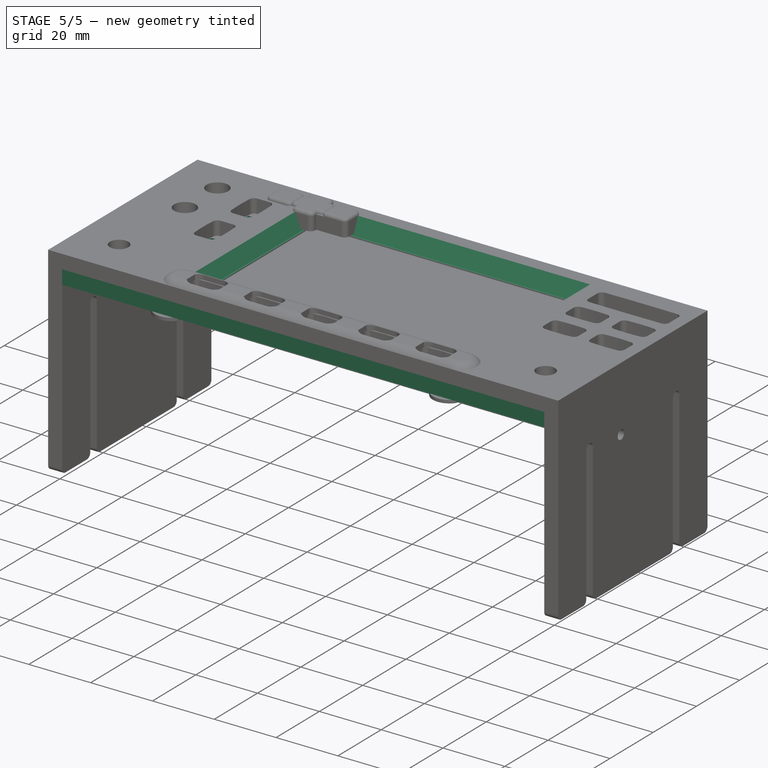
[diagram: stage 5 of 5 — iso view after this stage's code; geometry added in this stage tinted green]
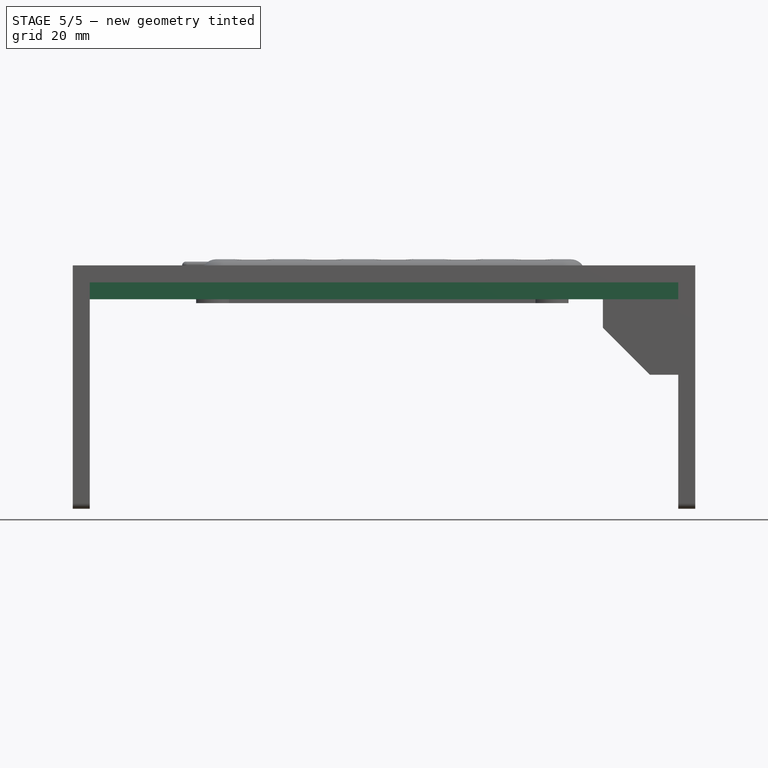
[diagram: stage 5 of 5 — front view after this stage's code; geometry added in this stage tinted green]
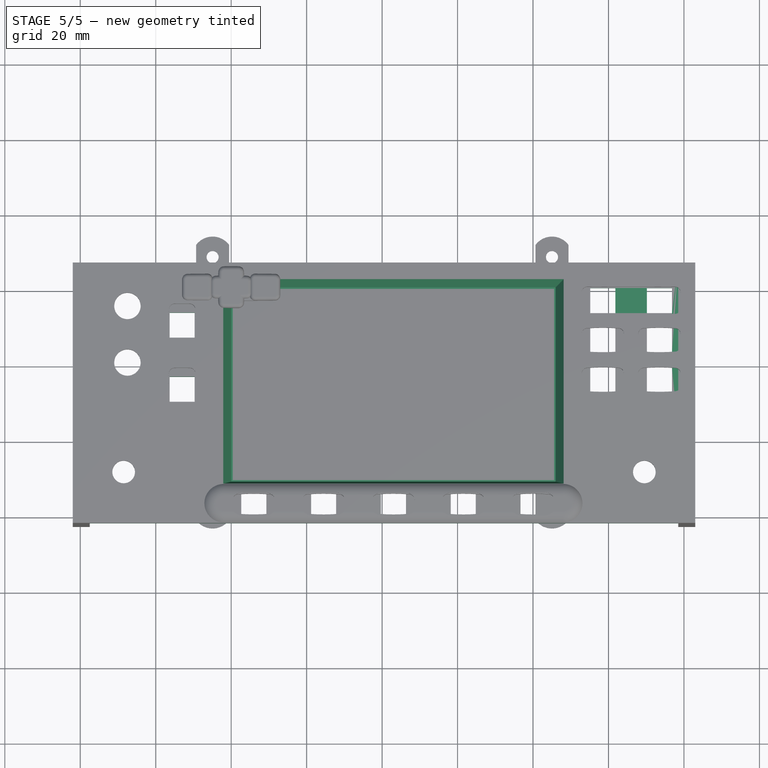
[diagram: stage 5 of 5 — top view after this stage's code; geometry added in this stage tinted green]
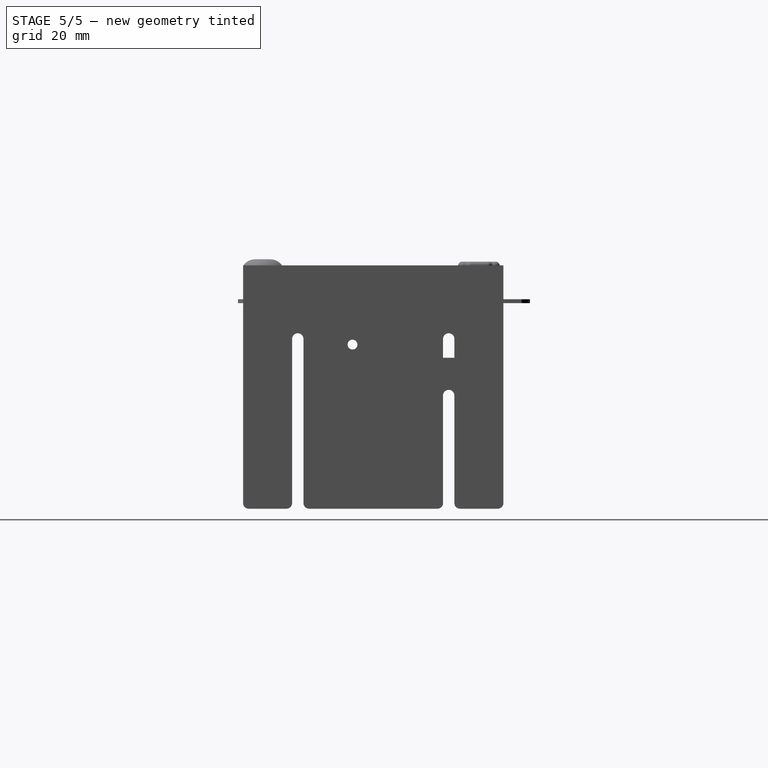
[diagram: stage 5 of 5 — right view after this stage's code; geometry added in this stage tinted green]
FEATURE [Sketcher::SketchObject] Sketch005  label="Sketch (bezel sides)"
  Placement = pos=(0,0,0) rot=(1,0,0;1.5708rad)
  sketch-geometry (16):
    g0: LineSegment StartX=-3.1 StartY=-1 StartZ=0 EndX=0.4 EndY=-1 EndZ=0
    g1: LineSegment StartX=-2.6 StartY=4.5 StartZ=0 EndX=-2.1 EndY=4.5 EndZ=0
    g2: LineSegment StartX=-2.1 StartY=4.5 StartZ=0 EndX=0 EndY=-0.6 EndZ=0
    g3: LineSegment StartX=0 StartY=-0.6 StartZ=0 EndX=0.4 EndY=-0.6 EndZ=0
    g4: LineSegment StartX=0.4 StartY=-0.6 StartZ=0 EndX=0.4 EndY=-1 EndZ=0
    g5: LineSegment StartX=85.6 StartY=-1 StartZ=0 EndX=89.1 EndY=-1 EndZ=0
    g6: LineSegment StartX=88.6 StartY=4.5 StartZ=0 EndX=88.1 EndY=4.5 EndZ=0
    g7: LineSegment StartX=88.1 StartY=4.5 StartZ=0 EndX=86 EndY=-0.6 EndZ=0
    g8: LineSegment StartX=86 StartY=-0.6 StartZ=0 EndX=85.6 EndY=-0.6 EndZ=0
    g9: LineSegment StartX=85.6 StartY=-0.6 StartZ=0 EndX=85.6 EndY=-1 EndZ=0
    g10: LineSegment StartX=-3.1 StartY=-1 StartZ=0 EndX=-3.1 EndY=0 EndZ=0
    g11: LineSegment StartX=-3.1 StartY=0 StartZ=0 EndX=-2.6 EndY=0 EndZ=0
    g12: LineSegment StartX=-2.6 StartY=4.5 StartZ=0 EndX=-2.6 EndY=0 EndZ=0
    g13: LineSegment StartX=89.1 StartY=-1 StartZ=0 EndX=89.1 EndY=0 EndZ=0
    g14: LineSegment StartX=88.6 StartY=4.5 StartZ=0 EndX=88.6 EndY=0 EndZ=0
    g15: LineSegment StartX=88.6 StartY=0 StartZ=0 EndX=89.1 EndY=0 EndZ=0
  constraints (49):
    c: DistanceY(g0,g2) = 0.4
    c: DistanceY(g0,g1) = 5.5
    c: Horizontal(g1)
    c: Coincident(g2,g1)
    c: DistanceX(g1,g1) = 0.5
    c: Horizontal(g0)
    c: Coincident(g3,g2)
    c: Horizontal(g3)
    c: Coincident(g4,g3)
    c: Coincident(g0,g4)
    c: Vertical(g4)
    c: DistanceX(g3,g3) = 0.4
    c: Horizontal(g5)
    c: Horizontal(g6)
    c: Coincident(g7,g6)
    c: Coincident(g8,g7)
    c: Horizontal(g8)
    c: Coincident(g9,g8)
    c: Coincident(g9,g5)
    c: Vertical(g9)
    c: Equal(g4,g9)
    c: Equal(g3,g8)
    c: Equal(g0,g5)
    c: Equal(g1,g6)
    c: DistanceX(g2,g7) = 86
    c: PointOnObject(g2,g-2)
    c: DistanceY(g0,g-1) = 1
    c: DistanceY(g5,g-1) = 1
    c: Vertical(g10)
    c: Coincident(g11,g10)
    c: Horizontal(g11)
    c: DistanceY(g10,g10) = 1
    c: DistanceX(g11,g11) = 0.5
    c: Coincident(g12,g1)
    c: Vertical(g12)
    c: PointOnObject(g13,g-1)
    c: Vertical(g13)
    c: Coincident(g14,g6)
    c: Vertical(g14)
    c: DistanceY(g13,g6) = 5.5
    c: Coincident(g5,g13)
    c: DistanceX(g10,g0) = 3.5
    c: Coincident(g0,g10)
    c: Equal(g0,g5)
    c: Coincident(g15,g14)
    c: Coincident(g15,g13)
    c: Horizontal(g15)
    c: Equal(g15,g11)
    c: Coincident(g11,g12)
FEATURE [PartDesign::Pad] Pad004  label="Pad (bezel sides)"
  Length = 60
  Length2 = 10
  Placement = pos=(0,0,0) rot=(1,0,0;1.5708rad)
  Sketch = -> Sketch005
  Type = 4
FEATURE [Sketcher::SketchObject] Sketch006  label="Sketch (bezel top/bottom)"
  Placement = pos=(0,0,0) rot=(0.57735,0.57735,0.57735;2.0944rad)
  sketch-geometry (16):
    g0: LineSegment StartX=3.1 StartY=-1 StartZ=0 EndX=-0.4 EndY=-1 EndZ=0
    g1: LineSegment StartX=2.6 StartY=4.5 StartZ=0 EndX=2.1 EndY=4.5 EndZ=0
    g2: LineSegment StartX=2.1 StartY=4.5 StartZ=0 EndX=0 EndY=-0.6 EndZ=0
    g3: LineSegment StartX=0 StartY=-0.6 StartZ=0 EndX=-0.4 EndY=-0.6 EndZ=0
    g4: LineSegment StartX=-0.4 StartY=-0.6 StartZ=0 EndX=-0.4 EndY=-1 EndZ=0
    g5: LineSegment StartX=-51.5 StartY=-0.6 StartZ=0 EndX=-52.1 EndY=4.5 EndZ=0
    g6: LineSegment StartX=-51.5 StartY=-0.6 StartZ=0 EndX=-51.1 EndY=-0.6 EndZ=0
    g7: LineSegment StartX=-51.1 StartY=-0.6 StartZ=0 EndX=-51.1 EndY=-1 EndZ=0
    g8: LineSegment StartX=-52.6 StartY=4.5 StartZ=0 EndX=-52.1 EndY=4.5 EndZ=0
    g9: LineSegment StartX=-51.1 StartY=-1 StartZ=0 EndX=-53.1 EndY=-1 EndZ=0
    g10: LineSegment StartX=-53.1 StartY=-1 StartZ=0 EndX=-53.1 EndY=0 EndZ=0
    g11: LineSegment StartX=-53.1 StartY=0 StartZ=0 EndX=-52.6 EndY=0 EndZ=0
    g12: LineSegment StartX=-52.6 StartY=0 StartZ=0 EndX=-52.6 EndY=4.5 EndZ=0
    g13: LineSegment StartX=3.1 StartY=-1 StartZ=0 EndX=3.1 EndY=0 EndZ=0
    g14: LineSegment StartX=3.1 StartY=0 StartZ=0 EndX=2.6 EndY=0 EndZ=0
    g15: LineSegment StartX=2.6 StartY=4.5 StartZ=0 EndX=2.6 EndY=0 EndZ=0
  constraints (45):
    c: Horizontal(g1)
    c: Coincident(g2,g1)
    c: Coincident(g3,g2)
    c: Horizontal(g3)
    c: Coincident(g4,g3)
    c: Coincident(g4,g0)
    c: Vertical(g4)
    c: DistanceX(g1,g1) = 0.5
    c: DistanceX(g3,g3) = 0.4
    c: DistanceX(g0,g0) = 3.5
    c: DistanceY(g4,g4) = 0.4
    c: DistanceX(g5,g2) = 51.5
    c: Coincident(g6,g5)
    c: Horizontal(g6)
    c: Coincident(g7,g6)
    c: Vertical(g7)
    c: Coincident(g8,g5)
    c: Horizontal(g8)
    c: Equal(g8,g1)
    c: Equal(g6,g3)
    c: Equal(g7,g4)
    c: Horizontal(g0)
    c: PointOnObject(g2,g-2)
    c: DistanceY(g0,g-1) = 1
    c: Horizontal(g9)
    c: Coincident(g10,g9)
    c: PointOnObject(g10,g-1)
    c: Vertical(g10)
    c: Coincident(g11,g10)
    c: Horizontal(g11)
    c: DistanceX(g9,g7) = 2
    c: Coincident(g7,g9)
    c: Coincident(g12,g11)
    c: Coincident(g12,g8)
    c: Vertical(g12)
    c: DistanceY(g10,g10) = 1
    c: PointOnObject(g13,g-1)
    c: Vertical(g13)
    c: Coincident(g14,g13)
    c: Horizontal(g14)
    c: DistanceY(g13,g1) = 5.5
    c: Coincident(g0,g13)
    c: Coincident(g15,g1)
    c: Coincident(g15,g14)
    c: Vertical(g15)
FEATURE [PartDesign::Pad] Pad005  label="Pad (bezel top/bottom)"
  Length = 100
  Length2 = 10
  Placement = pos=(0,0,0) rot=(0.57735,0.57735,0.57735;2.0944rad)
  Sketch = -> Sketch006
  Type = 4
FEATURE [Part::Box] Box  label="Cube (bezel main)"
  Height = 5.5
  Length = 55.2
  Placement = pos=(-2.6,2.6,0) rot=(0,0,-1;1.5708rad)
  Width = 91.2
FEATURE [Part::MultiFuse] Fusion
  Shapes = -> [Pad004,Pad005]
FEATURE [Sketcher::SketchObject] Sketch012  label="Sketch (hardware mount)"
  sketch-geometry (127):
    g0: LineSegment [constr] StartX=-37.5 StartY=6.5 StartZ=0 EndX=40.5 EndY=-28 EndZ=0
    g1: LineSegment [constr] StartX=40.5 StartY=-28 StartZ=0 EndX=118.5 EndY=-62.5 EndZ=0
    g2: LineSegment StartX=-9.2 StartY=3.5 StartZ=0 EndX=89.5 EndY=3.5 EndZ=0
    g3: LineSegment StartX=89.5 StartY=3.5 StartZ=0 EndX=89.5 EndY=-53.6 EndZ=0
    g4: LineSegment StartX=89.5 StartY=-53.6 StartZ=0 EndX=-9.2 EndY=-53.6 EndZ=0
    g5: LineSegment StartX=-9.2 StartY=-53.6 StartZ=0 EndX=-9.2 EndY=3.5 EndZ=0
    g6: LineSegment StartX=95.175 StartY=-0.175 StartZ=0 EndX=101.825 EndY=-0.175 EndZ=0
    g7: LineSegment StartX=101.825 StartY=-0.175 StartZ=0 EndX=101.825 EndY=-6.825 EndZ=0
    g8: LineSegment StartX=101.825 StartY=-6.825 StartZ=0 EndX=95.175 EndY=-6.825 EndZ=0
    g9: LineSegment StartX=95.175 StartY=-6.825 StartZ=0 EndX=95.175 EndY=-0.175 EndZ=0
    g10: LineSegment [constr] StartX=95.175 StartY=-0.175 StartZ=0 EndX=98.5 EndY=-3.5 EndZ=0
    g11: LineSegment [constr] StartX=98.5 StartY=-3.5 StartZ=0 EndX=101.825 EndY=-6.825 EndZ=0
    g12: LineSegment StartX=95.175 StartY=-10.675 StartZ=0 EndX=101.825 EndY=-10.675 EndZ=0
    g13: LineSegment StartX=101.825 StartY=-10.675 StartZ=0 EndX=101.825 EndY=-17.325 EndZ=0
    g14: LineSegment StartX=101.825 StartY=-17.325 StartZ=0 EndX=95.175 EndY=-17.325 EndZ=0
    g15: LineSegment StartX=95.175 StartY=-17.325 StartZ=0 EndX=95.175 EndY=-10.675 EndZ=0
    g16: LineSegment [constr] StartX=95.175 StartY=-10.675 StartZ=0 EndX=98.5 EndY=-14 EndZ=0
    g17: LineSegment [constr] StartX=98.5 StartY=-14 StartZ=0 EndX=101.825 EndY=-17.325 EndZ=0
    g18: LineSegment StartX=110.175 StartY=-10.675 StartZ=0 EndX=116.825 EndY=-10.675 EndZ=0
    g19: LineSegment StartX=116.825 StartY=-10.675 StartZ=0 EndX=116.825 EndY=-17.325 EndZ=0
    g20: LineSegment StartX=116.825 StartY=-17.325 StartZ=0 EndX=110.175 EndY=-17.325 EndZ=0
    g21: LineSegment StartX=110.175 StartY=-17.325 StartZ=0 EndX=110.175 EndY=-10.675 EndZ=0
    g22: LineSegment [constr] StartX=110.175 StartY=-10.675 StartZ=0 EndX=113.5 EndY=-14 EndZ=0
    g23: LineSegment [constr] StartX=113.5 StartY=-14 StartZ=0 EndX=116.825 EndY=-17.325 EndZ=0
    g24: LineSegment [constr] StartX=95.175 StartY=-10.675 StartZ=0 EndX=110.175 EndY=-10.675 EndZ=0
    g25: LineSegment StartX=95.175 StartY=-21.175 StartZ=0 EndX=101.825 EndY=-21.175 EndZ=0
    g26: LineSegment StartX=101.825 StartY=-21.175 StartZ=0 EndX=101.825 EndY=-27.825 EndZ=0
    g27: LineSegment StartX=101.825 StartY=-27.825 StartZ=0 EndX=95.175 EndY=-27.825 EndZ=0
    g28: LineSegment StartX=95.175 StartY=-27.825 StartZ=0 EndX=95.175 EndY=-21.175 EndZ=0
    g29: LineSegment [constr] StartX=95.175 StartY=-21.175 StartZ=0 EndX=98.5 EndY=-24.5 EndZ=0
    g30: LineSegment [constr] StartX=98.5 StartY=-24.5 StartZ=0 EndX=101.825 EndY=-27.825 EndZ=0
    g31: LineSegment [constr] StartX=95.175 StartY=-10.675 StartZ=0 EndX=95.175 EndY=-21.175 EndZ=0
    g32: LineSegment StartX=110.175 StartY=-21.175 StartZ=0 EndX=116.825 EndY=-21.175 EndZ=0
    g33: LineSegment StartX=116.825 StartY=-21.175 StartZ=0 EndX=116.825 EndY=-27.825 EndZ=0
    g34: LineSegment StartX=116.825 StartY=-27.825 StartZ=0 EndX=110.175 EndY=-27.825 EndZ=0
    g35: LineSegment StartX=110.175 StartY=-27.825 StartZ=0 EndX=110.175 EndY=-21.175 EndZ=0
    g36: LineSegment [constr] StartX=110.175 StartY=-21.175 StartZ=0 EndX=113.5 EndY=-24.5 EndZ=0
    g37: LineSegment [constr] StartX=113.5 StartY=-24.5 StartZ=0 EndX=116.825 EndY=-27.825 EndZ=0
    g38: LineSegment [constr] StartX=95.175 StartY=-21.175 StartZ=0 EndX=110.175 EndY=-21.175 EndZ=0
    g39: LineSegment StartX=2.675 StartY=-53.975 StartZ=0 EndX=9.325 EndY=-53.975 EndZ=0
    g40: LineSegment StartX=9.325 StartY=-53.975 StartZ=0 EndX=9.325 EndY=-60.625 EndZ=0
    g41: LineSegment StartX=9.325 StartY=-60.625 StartZ=0 EndX=2.675 EndY=-60.625 EndZ=0
    g42: LineSegment StartX=2.675 StartY=-60.625 StartZ=0 EndX=2.675 EndY=-53.975 EndZ=0
    g43: LineSegment [constr] StartX=2.675 StartY=-53.975 StartZ=0 EndX=6 EndY=-57.3 EndZ=0
    g44: LineSegment [constr] StartX=6 StartY=-57.3 StartZ=0 EndX=9.325 EndY=-60.625 EndZ=0
    g45: LineSegment StartX=21.175 StartY=-53.975 StartZ=0 EndX=27.825 EndY=-53.975 EndZ=0
    g46: LineSegment StartX=27.825 StartY=-53.975 StartZ=0 EndX=27.825 EndY=-60.625 EndZ=0
    g47: LineSegment StartX=27.825 StartY=-60.625 StartZ=0 EndX=21.175 EndY=-60.625 EndZ=0
    g48: LineSegment StartX=21.175 StartY=-60.625 StartZ=0 EndX=21.175 EndY=-53.975 EndZ=0
    g49: LineSegment [constr] StartX=21.175 StartY=-53.975 StartZ=0 EndX=24.5 EndY=-57.3 EndZ=0
    g50: LineSegment [constr] StartX=24.5 StartY=-57.3 StartZ=0 EndX=27.825 EndY=-60.625 EndZ=0
    g51: LineSegment [constr] StartX=2.675 StartY=-53.975 StartZ=0 EndX=21.175 EndY=-53.975 EndZ=0
    g52: LineSegment StartX=39.675 StartY=-53.975 StartZ=0 EndX=46.325 EndY=-53.975 EndZ=0
    g53: LineSegment StartX=46.325 StartY=-53.975 StartZ=0 EndX=46.325 EndY=-60.625 EndZ=0
    g54: LineSegment StartX=46.325 StartY=-60.625 StartZ=0 EndX=39.675 EndY=-60.625 EndZ=0
    g55: LineSegment StartX=39.675 StartY=-60.625 StartZ=0 EndX=39.675 EndY=-53.975 EndZ=0
    g56: LineSegment [constr] StartX=39.675 StartY=-53.975 StartZ=0 EndX=43 EndY=-57.3 EndZ=0
    g57: LineSegment [constr] StartX=43 StartY=-57.3 StartZ=0 EndX=46.325 EndY=-60.625 EndZ=0
    g58: LineSegment [constr] StartX=21.175 StartY=-53.975 StartZ=0 EndX=39.675 EndY=-53.975 EndZ=0
    g59: LineSegment StartX=58.175 StartY=-53.975 StartZ=0 EndX=64.825 EndY=-53.975 EndZ=0
    g60: LineSegment StartX=64.825 StartY=-53.975 StartZ=0 EndX=64.825 EndY=-60.625 EndZ=0
    g61: LineSegment StartX=64.825 StartY=-60.625 StartZ=0 EndX=58.175 EndY=-60.625 EndZ=0
    g62: LineSegment StartX=58.175 StartY=-60.625 StartZ=0 EndX=58.175 EndY=-53.975 EndZ=0
    g63: LineSegment [constr] StartX=58.175 StartY=-53.975 StartZ=0 EndX=61.5 EndY=-57.3 EndZ=0
    g64: LineSegment [constr] StartX=61.5 StartY=-57.3 StartZ=0 EndX=64.825 EndY=-60.625 EndZ=0
    g65: LineSegment [constr] StartX=39.675 StartY=-53.975 StartZ=0 EndX=58.175 EndY=-53.975 EndZ=0
    g66: LineSegment StartX=76.675 StartY=-53.975 StartZ=0 EndX=83.325 EndY=-53.975 EndZ=0
    g67: LineSegment StartX=83.325 StartY=-53.975 StartZ=0 EndX=83.325 EndY=-60.625 EndZ=0
    g68: LineSegment StartX=83.325 StartY=-60.625 StartZ=0 EndX=76.675 EndY=-60.625 EndZ=0
    g69: LineSegment StartX=76.675 StartY=-60.625 StartZ=0 EndX=76.675 EndY=-53.975 EndZ=0
    g70: LineSegment [constr] StartX=76.675 StartY=-53.975 StartZ=0 EndX=80 EndY=-57.3 EndZ=0
    g71: LineSegment [constr] StartX=80 StartY=-57.3 StartZ=0 EndX=83.325 EndY=-60.625 EndZ=0
    g72: LineSegment [constr] StartX=58.175 StartY=-53.975 StartZ=0 EndX=76.675 EndY=-53.975 EndZ=0
    g73: LineSegment StartX=-16.325 StartY=-6.675 StartZ=0 EndX=-9.675 EndY=-6.675 EndZ=0
    g74: LineSegment StartX=-9.675 StartY=-6.675 StartZ=0 EndX=-9.675 EndY=-13.325 EndZ=0
    g75: LineSegment StartX=-9.675 StartY=-13.325 StartZ=0 EndX=-16.325 EndY=-13.325 EndZ=0
    g76: LineSegment StartX=-16.325 StartY=-13.325 StartZ=0 EndX=-16.325 EndY=-6.675 EndZ=0
    g77: LineSegment [constr] StartX=-16.325 StartY=-6.675 StartZ=0 EndX=-13 EndY=-10 EndZ=0
    g78: LineSegment [constr] StartX=-13 StartY=-10 StartZ=0 EndX=-9.675 EndY=-13.325 EndZ=0
    g79: LineSegment StartX=-16.325 StartY=-23.675 StartZ=0 EndX=-9.675 EndY=-23.675 EndZ=0
    g80: LineSegment StartX=-9.675 StartY=-23.675 StartZ=0 EndX=-9.675 EndY=-30.325 EndZ=0
    g81: LineSegment StartX=-9.675 StartY=-30.325 StartZ=0 EndX=-16.325 EndY=-30.325 EndZ=0
    g82: LineSegment StartX=-16.325 StartY=-30.325 StartZ=0 EndX=-16.325 EndY=-23.675 EndZ=0
    g83: LineSegment [constr] StartX=-16.325 StartY=-23.675 StartZ=0 EndX=-13 EndY=-27 EndZ=0
    g84: LineSegment [constr] StartX=-13 StartY=-27 StartZ=0 EndX=-9.675 EndY=-30.325 EndZ=0
    g85: LineSegment [constr] StartX=-13 StartY=-10 StartZ=0 EndX=-13 EndY=-27 EndZ=0
    g86: Circle [constr] CenterX=-28.5 CenterY=-48.4624 CenterZ=0 NormalX=0 NormalY=0 NormalZ=1 Radius=10
    g87: Circle [constr] CenterX=109.5 CenterY=-49 CenterZ=0 NormalX=0 NormalY=0 NormalZ=1 Radius=10
    g88: LineSegment StartX=99.5 StartY=-39 StartZ=0 EndX=118.5 EndY=-39 EndZ=0
    g89: LineSegment StartX=-18.5 StartY=-62.5 StartZ=0 EndX=98.5 EndY=-62.5 EndZ=0
    g90: LineSegment StartX=118.5 StartY=6.5 StartZ=0 EndX=118.5 EndY=-39 EndZ=0
    g91: LineSegment StartX=-37.5 StartY=6.5 StartZ=0 EndX=118.5 EndY=6.5 EndZ=0
    g92: LineSegment StartX=-18.5 StartY=-62.5 StartZ=0 EndX=-37.5 EndY=-62.5 EndZ=0
    g93: LineSegment [constr] StartX=-27.5 StartY=-5 StartZ=0 EndX=-27.5 EndY=-20 EndZ=0
    g94: LineSegment StartX=-27.5 StartY=1.6 StartZ=0 EndX=-37.5 EndY=1.6 EndZ=0
    g95: LineSegment StartX=-27.5 StartY=-11.6 StartZ=0 EndX=-37.5 EndY=-11.6 EndZ=0
    g96: LineSegment StartX=-27.5 StartY=-13.4 StartZ=0 EndX=-37.5 EndY=-13.4 EndZ=0
    g97: LineSegment StartX=-27.5 StartY=-26.6 StartZ=0 EndX=-37.5 EndY=-26.6 EndZ=0
    g98: ArcOfCircle CenterX=-27.5 CenterY=-5 CenterZ=0 NormalX=0 NormalY=0 NormalZ=1 Radius=6.6 StartAngle=4.71239 EndAngle=7.85398
    g99: ArcOfCircle CenterX=-27.5 CenterY=-20 CenterZ=0 NormalX=0 NormalY=0 NormalZ=1 Radius=6.6 StartAngle=4.71239 EndAngle=7.85398
    g100: LineSegment [constr] StartX=-27.5 StartY=-5 StartZ=0 EndX=-27.5 EndY=1.6 EndZ=0
    g101: LineSegment [constr] StartX=-27.5 StartY=-20 StartZ=0 EndX=-27.5 EndY=-26.6 EndZ=0
    g102: LineSegment StartX=-37.5 StartY=6.5 StartZ=0 EndX=-37.5 EndY=1.6 EndZ=0
    g103: LineSegment StartX=-37.5 StartY=-13.4 StartZ=0 EndX=-37.5 EndY=-11.6 EndZ=0
    g104: LineSegment [constr] StartX=-37.5 StartY=1.6 StartZ=0 EndX=-37.5 EndY=-11.6 EndZ=0
    g105: LineSegment [constr] StartX=-37.5 StartY=-13.4 StartZ=0 EndX=-37.5 EndY=-26.6 EndZ=0
    g106: LineSegment StartX=98.5 StartY=-62.5 StartZ=0 EndX=118.5 EndY=-62.5 EndZ=0
    g107: LineSegment StartX=-37.5 StartY=-38.4624 StartZ=0 EndX=-18.5 EndY=-38.4624 EndZ=0
    g108: LineSegment StartX=-37.5 StartY=-26.6 StartZ=0 EndX=-37.5 EndY=-38.4624 EndZ=0
    g109: LineSegment StartX=-18.5 StartY=-58.4624 StartZ=0 EndX=-37.5 EndY=-58.4624 EndZ=0
    g110: LineSegment [constr] StartX=-37.5 StartY=-38.4624 StartZ=0 EndX=-37.5 EndY=-58.4624 EndZ=0
    g111: LineSegment StartX=-37.5 StartY=-58.4624 StartZ=0 EndX=-37.5 EndY=-62.5 EndZ=0
    g112: LineSegment StartX=-18.5 StartY=-38.4624 StartZ=0 EndX=-18.5 EndY=-58.4624 EndZ=0
    g113: LineSegment StartX=99.5 StartY=-59 StartZ=0 EndX=118.5 EndY=-59 EndZ=0
    g114: LineSegment StartX=99.5 StartY=-39 StartZ=0 EndX=99.5 EndY=-59 EndZ=0
    g115: LineSegment StartX=118.5 StartY=-59 StartZ=0 EndX=118.5 EndY=-62.5 EndZ=0
    g116: LineSegment [constr] StartX=118.5 StartY=-39 StartZ=0 EndX=118.5 EndY=-59 EndZ=0
    g117: LineSegment [constr] StartX=95.175 StartY=-6.825 StartZ=0 EndX=95.175 EndY=-10.675 EndZ=0
    g118: LineSegment StartX=110.175 StartY=-0.175 StartZ=0 EndX=116.825 EndY=-0.175 EndZ=0
    g119: LineSegment StartX=116.825 StartY=-0.175 StartZ=0 EndX=116.825 EndY=-6.825 EndZ=0
    g120: LineSegment StartX=116.825 StartY=-6.825 StartZ=0 EndX=110.175 EndY=-6.825 EndZ=0
    g121: LineSegment StartX=110.175 StartY=-6.825 StartZ=0 EndX=110.175 EndY=-0.175 EndZ=0
    g122: LineSegment [constr] StartX=110.175 StartY=-0.175 StartZ=0 EndX=113.5 EndY=-3.5 EndZ=0
    g123: LineSegment [constr] StartX=113.5 StartY=-3.5 StartZ=0 EndX=116.825 EndY=-6.825 EndZ=0
    g124: LineSegment [constr] StartX=110.175 StartY=-10.675 StartZ=0 EndX=110.175 EndY=-6.825 EndZ=0
    g125: Circle CenterX=-25.5 CenterY=-33.5 CenterZ=0 NormalX=0 NormalY=0 NormalZ=1 Radius=1.5
    g126: Circle CenterX=106.5 CenterY=-33.5 CenterZ=0 NormalX=0 NormalY=0 NormalZ=1 Radius=1.5
  constraints (351):
    c: DistanceX(g0,g90) = 156
    c: Coincident(g1,g0)
    c: Parallel(g1,g0)
    c: Equal(g1,g0)
    c: DistanceX(g-1,g0) = 40.5
    c: DistanceY(g0,g-1) = 28
    c: Coincident(g2,g3)
    c: Coincident(g3,g4)
    c: Coincident(g4,g5)
    c: Coincident(g5,g2)
    c: Horizontal(g2)
    c: Horizontal(g4)
    c: Vertical(g3)
    c: Vertical(g5)
    c: DistanceX(g2,g2) = 98.7
    c: DistanceY(g3,g3) = 57.1
    c: DistanceY(g-1,g2) = 3.5
    c: DistanceX(g2,g-1) = 9.2
    c: Coincident(g6,g7)
    c: Coincident(g7,g8)
    c: Coincident(g8,g9)
    c: Coincident(g9,g6)
    c: Horizontal(g6)
    c: Horizontal(g8)
    c: Vertical(g7)
    c: Vertical(g9)
    c: Coincident(g10,g6)
    c: Coincident(g11,g10)
    c: Coincident(g11,g7)
    c: Parallel(g11,g10)
    c: Equal(g10,g11)
    c: DistanceX(g6,g6) = 6.65
    c: DistanceY(g9,g9) = 6.65
    c: DistanceY(g10,g-1) = 3.5
    c: Coincident(g12,g13)
    c: Coincident(g13,g14)
    c: Coincident(g14,g15)
    c: Coincident(g15,g12)
    c: Horizontal(g12)
    c: Horizontal(g14)
    c: Vertical(g13)
    c: Vertical(g15)
    c: Coincident(g16,g12)
    c: Coincident(g17,g16)
    c: Coincident(g17,g13)
    c: Parallel(g17,g16)
    c: Equal(g16,g17)
    c: DistanceY(g16,g-1) = 14
    c: DistanceX(g-1,g16) = 98.5
    c: Coincident(g18,g19)
    c: Coincident(g19,g20)
    c: Coincident(g20,g21)
    c: Coincident(g21,g18)
    c: Horizontal(g18)
    c: Horizontal(g20)
    c: Vertical(g19)
    c: Vertical(g21)
    c: Coincident(g22,g18)
    c: Coincident(g23,g22)
    c: Coincident(g23,g19)
    c: Parallel(g23,g22)
    c: Equal(g22,g23)
    c: Coincident(g12,g24)
    c: Coincident(g18,g24)
    c: Distance(g24) = 15
    c: Angle(g24) = 0
    c: Coincident(g25,g26)
    c: Coincident(g26,g27)
    c: Coincident(g27,g28)
    c: Coincident(g28,g25)
    c: Horizontal(g25)
    c: Horizontal(g27)
    c: Vertical(g26)
    c: Vertical(g28)
    c: Coincident(g29,g25)
    c: Coincident(g30,g29)
    c: Coincident(g30,g26)
    c: Parallel(g30,g29)
    c: Equal(g29,g30)
    c: Coincident(g12,g31)
    c: Coincident(g25,g31)
    c: Distance(g31) = 10.5
    c: Perpendicular(g31,g24)
    c: Coincident(g32,g33)
    c: Coincident(g33,g34)
    c: Coincident(g34,g35)
    c: Coincident(g35,g32)
    c: Horizontal(g32)
    c: Horizontal(g34)
    c: Vertical(g33)
    c: Vertical(g35)
    c: Coincident(g36,g32)
    c: Coincident(g37,g36)
    c: Coincident(g37,g33)
    c: Parallel(g37,g36)
    c: Equal(g36,g37)
    c: Coincident(g25,g38)
    c: Coincident(g32,g38)
    c: Equal(g24,g38)
    c: Parallel(g38,g24)
    c: Equal(g21,g35)
    c: Equal(g15,g21)
    c: Equal(g21,g35)
    c: Equal(g35,g28)
    c: Equal(g12,g18)
    c: Equal(g18,g32)
    c: Equal(g32,g25)
    c: Coincident(g39,g40)
    c: Coincident(g40,g41)
    c: Coincident(g41,g42)
    c: Coincident(g42,g39)
    c: Horizontal(g39)
    c: Horizontal(g41)
    c: Vertical(g40)
    c: Vertical(g42)
    c: Coincident(g43,g39)
    c: Coincident(g44,g43)
    c: Coincident(g44,g40)
    c: Parallel(g44,g43)
    c: Equal(g43,g44)
    c: Equal(g15,g42) = 7
    c: Equal(g14,g41) = 7
    c: DistanceX(g-1,g43) = 6
    c: DistanceY(g43,g-1) = 57.3
    c: Coincident(g45,g46)
    c: Coincident(g46,g47)
    c: Coincident(g47,g48)
    c: Coincident(g48,g45)
    c: Horizontal(g45)
    c: Horizontal(g47)
    c: Vertical(g46)
    c: Vertical(g48)
    c: Coincident(g49,g45)
    c: Coincident(g50,g49)
    c: Coincident(g50,g46)
    c: Parallel(g50,g49)
    c: Equal(g49,g50)
    c: Coincident(g39,g51)
    c: Coincident(g45,g51)
    c: Distance(g51) = 18.5
    c: Angle(g51) = 0
    c: Coincident(g52,g53)
    c: Coincident(g53,g54)
    c: Coincident(g54,g55)
    c: Coincident(g55,g52)
    c: Horizontal(g52)
    c: Horizontal(g54)
    c: Vertical(g53)
    c: Vertical(g55)
    c: Coincident(g56,g52)
    c: Coincident(g57,g56)
    c: Coincident(g57,g53)
    c: Parallel(g57,g56)
    c: Equal(g56,g57)
    c: Coincident(g45,g58)
    c: Coincident(g52,g58)
    c: Equal(g51,g58)
    c: Parallel(g58,g51)
    c: Coincident(g59,g60)
    c: Coincident(g60,g61)
    c: Coincident(g61,g62)
    c: Coincident(g62,g59)
    c: Horizontal(g59)
    c: Horizontal(g61)
    c: Vertical(g60)
    c: Vertical(g62)
    c: Coincident(g63,g59)
    c: Coincident(g64,g63)
    c: Coincident(g64,g60)
    c: Parallel(g64,g63)
    c: Equal(g63,g64)
    c: Coincident(g52,g65)
    c: Coincident(g59,g65)
    c: Equal(g51,g65)
    c: Parallel(g65,g51)
    c: Coincident(g66,g67)
    c: Coincident(g67,g68)
    c: Coincident(g68,g69)
    c: Coincident(g69,g66)
    c: Horizontal(g66)
    c: Horizontal(g68)
    c: Vertical(g67)
    c: Vertical(g69)
    c: Coincident(g70,g66)
    c: Coincident(g71,g70)
    c: Coincident(g71,g67)
    c: Parallel(g71,g70)
    c: Equal(g70,g71)
    c: Coincident(g59,g72)
    c: Coincident(g66,g72)
    c: Equal(g51,g72)
    c: Parallel(g72,g51)
    c: Equal(g39,g45)
    c: Equal(g45,g52)
    c: Equal(g52,g59)
    c: Equal(g59,g66)
    c: Equal(g69,g62)
    c: Equal(g62,g55)
    c: Equal(g55,g48)
    c: Equal(g48,g42)
    c: Coincident(g73,g74)
    c: Coincident(g74,g75)
    c: Coincident(g75,g76)
    c: Coincident(g76,g73)
    c: Horizontal(g73)
    c: Horizontal(g75)
    c: Vertical(g74)
    c: Vertical(g76)
    c: Coincident(g77,g73)
    c: Coincident(g78,g77)
    c: Coincident(g78,g74)
    c: Parallel(g78,g77)
    c: Equal(g77,g78)
    c: DistanceY(g77,g-1) = 10
    c: DistanceX(g77,g-1) = 13
    c: Coincident(g79,g80)
    c: Coincident(g80,g81)
    c: Coincident(g81,g82)
    c: Coincident(g82,g79)
    c: Horizontal(g79)
    c: Horizontal(g81)
    c: Vertical(g80)
    c: Vertical(g82)
    c: Coincident(g83,g79)
    c: Coincident(g84,g83)
    c: Coincident(g84,g80)
    c: Parallel(g84,g83)
    c: Equal(g83,g84)
    c: Coincident(g85,g77)
    c: Coincident(g85,g83)
    c: Vertical(g85)
    c: DistanceY(g85,g85) = 17
    c: Equal(g73,g79)
    c: Equal(g79,g39)
    c: Equal(g42,g76)
    c: Equal(g76,g82)
    c: Equal(g86,g87)
    c: Radius(g87) = 10
    c: DistanceY(g1,g87) = 13.5
    c: Horizontal(g88)
    c: Tangent(g88,g87)
    c: Horizontal(g89)
    c: DistanceY(g89,g0) = 69
    c: Coincident(g90,g88)
    c: Vertical(g90)
    c: Coincident(g91,g90)
    c: Horizontal(g91)
    c: DistanceY(g89,g90) = 69
    c: DistanceX(g86,g-1) = 28.5
    c: Horizontal(g92)
    c: Vertical(g93)
    c: DistanceY(g93,g93) = 15
    c: Horizontal(g94)
    c: Horizontal(g95)
    c: Horizontal(g96)
    c: Horizontal(g97)
    c: Coincident(g98,g94)
    c: Coincident(g98,g95)
    c: Coincident(g99,g96)
    c: Coincident(g99,g97)
    c: Equal(g98,g99)
    c: Radius(g99) = 6.6
    c: Coincident(g100,g93)
    c: Coincident(g100,g94)
    c: Vertical(g100)
    c: Coincident(g101,g93)
    c: Coincident(g101,g97)
    c: Vertical(g101)
    c: Coincident(g102,g0)
    c: Coincident(g102,g94)
    c: Vertical(g102)
    c: Coincident(g103,g96)
    c: Vertical(g103)
    c: Coincident(g104,g94)
    c: Vertical(g104)
    c: Coincident(g105,g96)
    c: Coincident(g105,g97)
    c: Vertical(g105)
    c: Coincident(g89,g92)
    c: Coincident(g106,g1)
    c: Horizontal(g106)
    c: Coincident(g95,g103)
    c: Coincident(g95,g104)
    c: Coincident(g0,g91)
    c: Tangent(g107,g86)
    c: Horizontal(g107)
    c: Coincident(g108,g97)
    c: Coincident(g108,g107)
    c: Vertical(g108)
    c: Horizontal(g109)
    c: Tangent(g109,g86)
    c: Coincident(g110,g107)
    c: Vertical(g110)
    c: Coincident(g109,g110)
    c: Coincident(g111,g109)
    c: Coincident(g111,g92)
    c: Vertical(g111)
    c: Coincident(g112,g107)
    c: Coincident(g112,g109)
    c: Vertical(g112)
    c: Tangent(g112,g86)
    c: Horizontal(g113)
    c: Tangent(g113,g87)
    c: Coincident(g114,g88)
    c: Coincident(g114,g113)
    c: Vertical(g114)
    c: Tangent(g114,g87)
    c: Coincident(g115,g113)
    c: Vertical(g115)
    c: Coincident(g116,g88)
    c: Coincident(g116,g113)
    c: Vertical(g116)
    c: DistanceY(g93,g-1) = 5
    c: DistanceX(g93,g-1) = 27.5
    c: PointOnObject(g95,g93)
    c: PointOnObject(g96,g93)
    c: Coincident(g93,g98)
    c: Coincident(g93,g99)
    c: Coincident(g89,g106)
    c: Coincident(g1,g115)
    c: Equal(g9,g15)
    c: Coincident(g117,g8)
    c: Coincident(g117,g12)
    c: Vertical(g117)
    c: Coincident(g118,g119)
    c: Coincident(g119,g120)
    c: Coincident(g120,g121)
    c: Coincident(g121,g118)
    c: Horizontal(g118)
    c: Horizontal(g120)
    c: Vertical(g119)
    c: Vertical(g121)
    c: Coincident(g122,g118)
    c: Coincident(g123,g122)
    c: Coincident(g123,g119)
    c: Parallel(g123,g122)
    c: Equal(g122,g123)
    c: Equal(g6,g118) = 7
    c: Equal(g9,g121) = 7
    c: Coincident(g124,g18)
    c: Coincident(g124,g120)
    c: Vertical(g124)
    c: Equal(g124,g117)
    c: Equal(g14,g6)
    c: Equal(g126,g125)
    c: Radius(g126) = 1.5
    c: DistanceY(g126,g-1) = 33.5
    c: DistanceY(g125,g-1) = 33.5
    c: DistanceX(g94,g125) = 12
    c: DistanceX(g126,g88) = 12
    c: DistanceX(g-1,g87) = 109.5
FEATURE [PartDesign::Pad] Pad010  label="Pad (panel hardware mount)"
  Length = 4.5
  Length2 = 100
  Reversed = true
  Sketch = -> Sketch012
  Type = 0
FEATURE [Part::Box] Box001  label="Cube (bezel lip)"
  Height = 1
  Length = 56.2
  Placement = pos=(-3.1,3.1,-1) rot=(0,0,-1;1.5708rad)
  Width = 92.2
FEATURE [Part::MultiFuse] Fusion001  label="Fusion (bezel overlap)"
  Shapes = -> [Box001,Box]
FEATURE [Part::MultiCommon] Common  label="Common (bezel)"
  Shapes = -> [Fusion001,Fusion]
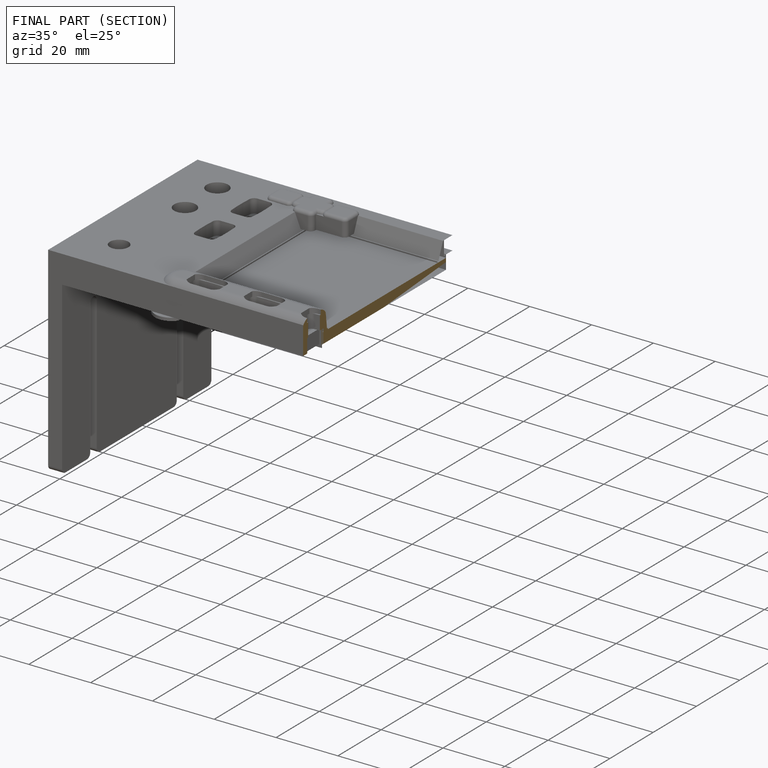
[diagram: finished part — half-section view (interior)]
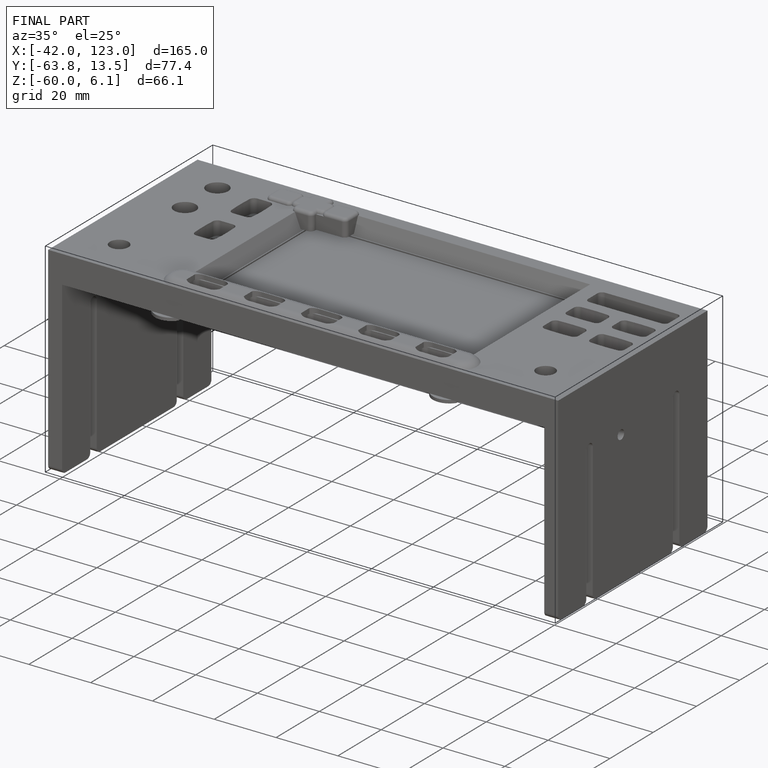
[diagram: finished part — iso view with bounding-box wireframe]
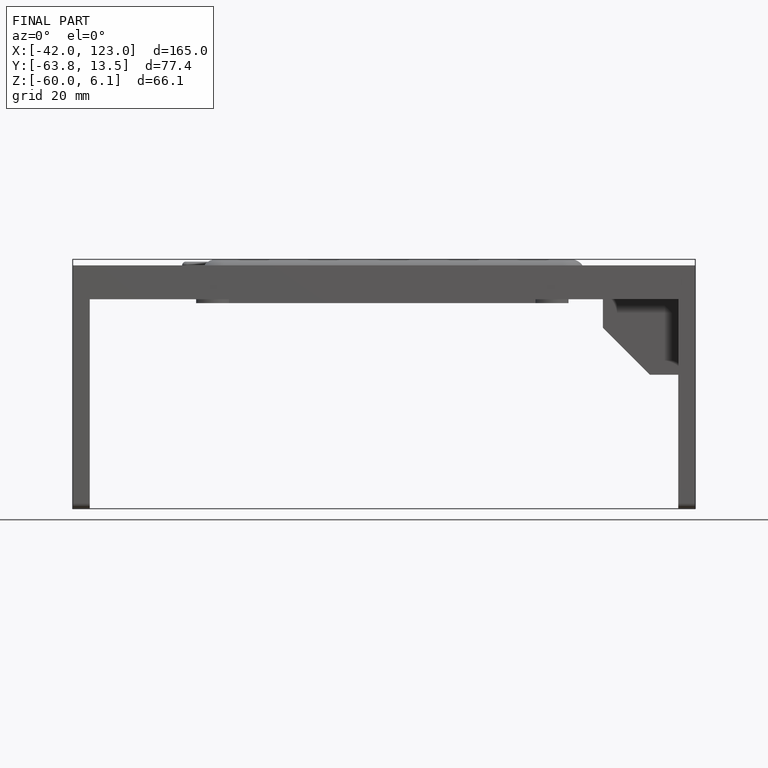
[diagram: finished part — front view with bounding-box wireframe]
